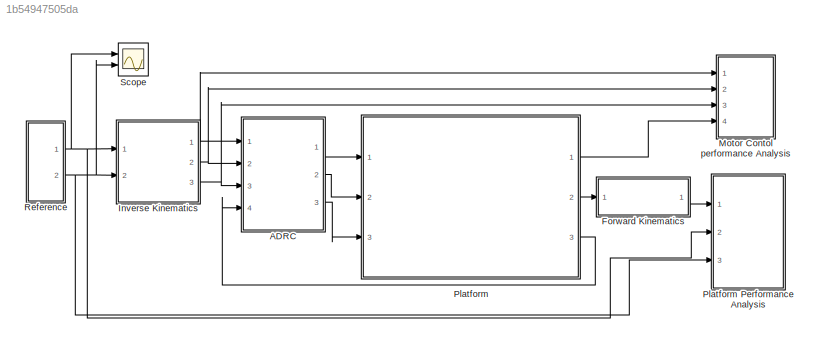
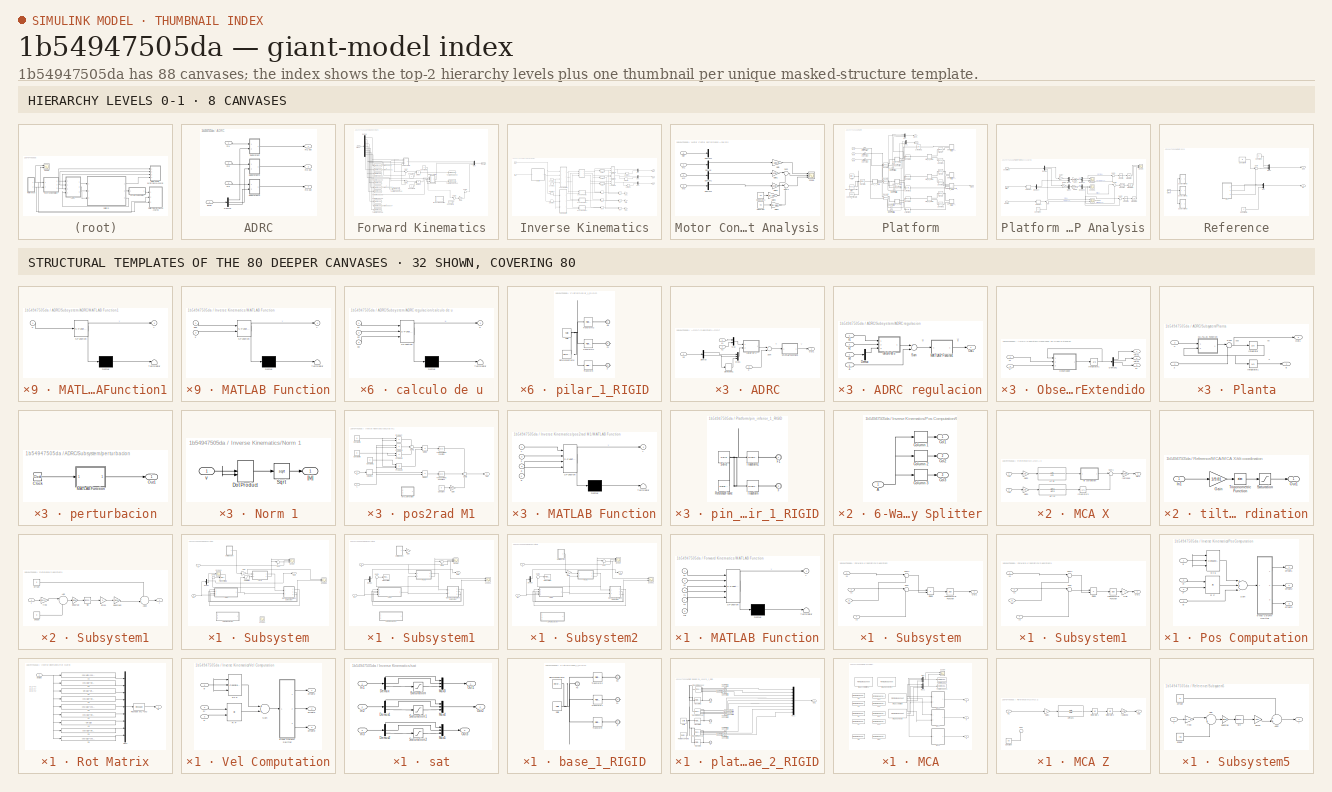
[diagram: thumbnail index - top-2 hierarchy levels (8 canvases) + 32 structural-template representatives of the remaining 80 canvases]
MODEL slx_1b54947505da
KIND model
CONFIG AbsTol = auto
CONFIG EnableMultiTasking = off
CONFIG FixedStep = 0.001
CONFIG MaxStep = auto
CONFIG MinStep = auto
CONFIG RelTol = 1e-4
CONFIG SampleTimeConstraint = Unconstrained
CONFIG Solver = FixedStepAuto
CONFIG SolverName = FixedStepAuto
CONFIG StartTime = 0.0
CONFIG StopTime = 30
WORKSPACE source: external: MATLAB File  (data not in archive)
BLOCK [SubSystem] ADRC
  Ports = [4, 3]
  RequestExecContextInheritance = off
BLOCK [Demux] ADRC/Demux
  DisplayOption = bar
  Outputs = 3
  Ports = [1, 3]
BLOCK [SubSystem] ADRC/Subsystem
  Ports = [2, 1]
  RequestExecContextInheritance = off
BLOCK [SubSystem] ADRC/Subsystem/ADRC
  Ports = [4, 1]
  RequestExecContextInheritance = off
BLOCK [SubSystem] ADRC/Subsystem/ADRC regulacion
  Commented = on
  Ports = [4, 1]
  RequestExecContextInheritance = off
BLOCK [Demux] ADRC/Subsystem/ADRC regulacion/Demux
  DisplayOption = bar
  Outputs = 2
  Ports = [1, 2]
BLOCK [SubSystem] ADRC/Subsystem/ADRC regulacion/MATLAB Function1
  ErrorFcn = Stateflow.Translate.translate
  PermitHierarchicalResolution = ExplicitOnly
  Ports = [1, 1]
  RequestExecContextInheritance = off
  SFBlockType = MATLAB Function
  TreatAsAtomicUnit = on
BLOCK [Demux] ADRC/Subsystem/ADRC regulacion/MATLAB Function1/ Demux 
  Outputs = 1
  Ports = [1, 1]
BLOCK [S-Function] ADRC/Subsystem/ADRC regulacion/MATLAB Function1/ SFunction 
  EnableBusSupport = on
  FunctionName = sf_sfun
  PortCounts = [1 2]
  Ports = [1, 2]
  SFcnIsStateOwnerBlock = off
  SFunctionDeploymentMode = off
  Tag = Stateflow S-Function platafomra_esfera 19
BLOCK [Terminator] ADRC/Subsystem/ADRC regulacion/MATLAB Function1/ Terminator 
BLOCK [Inport] ADRC/Subsystem/ADRC regulacion/MATLAB Function1/u
  IconDisplay = Port number
BLOCK [Outport] ADRC/Subsystem/ADRC regulacion/MATLAB Function1/y
  IconDisplay = Port number
BLOCK [Outport] ADRC/Subsystem/ADRC regulacion/Out1
  IconDisplay = Port number
BLOCK [Sum] ADRC/Subsystem/ADRC regulacion/Sum
  InputSameDT = off
  Inputs = +-
  OutDataTypeStr = Inherit: Inherit via internal rule
  Ports = [2, 1]
  SaturateOnIntegerOverflow = off
BLOCK [Inport] ADRC/Subsystem/ADRC regulacion/Z
  IconDisplay = Port number
  Port = 3
BLOCK [SubSystem] ADRC/Subsystem/ADRC regulacion/calculo de u
  ErrorFcn = Stateflow.Translate.translate
  PermitHierarchicalResolution = ExplicitOnly
  Ports = [3, 1]
  RequestExecContextInheritance = off
  SFBlockType = MATLAB Function
  TreatAsAtomicUnit = on
BLOCK [Demux] ADRC/Subsystem/ADRC regulacion/calculo de u/ Demux 
  Outputs = 1
  Ports = [1, 1]
BLOCK [S-Function] ADRC/Subsystem/ADRC regulacion/calculo de u/ SFunction 
  EnableBusSupport = on
  FunctionName = sf_sfun
  PortCounts = [3 2]
  Ports = [3, 2]
  SFcnIsStateOwnerBlock = off
  SFunctionDeploymentMode = off
  Tag = Stateflow S-Function platafomra_esfera 20
BLOCK [Terminator] ADRC/Subsystem/ADRC regulacion/calculo de u/ Terminator 
BLOCK [Outport] ADRC/Subsystem/ADRC regulacion/calculo de u/u
  IconDisplay = Port number
BLOCK [Inport] ADRC/Subsystem/ADRC regulacion/calculo de u/x1
  IconDisplay = Port number
BLOCK [Inport] ADRC/Subsystem/ADRC regulacion/calculo de u/x2
  IconDisplay = Port number
  Port = 2
BLOCK [Inport] ADRC/Subsystem/ADRC regulacion/calculo de u/xd
  IconDisplay = Port number
  Port = 3
BLOCK [Inport] ADRC/Subsystem/ADRC regulacion/x1
  IconDisplay = Port number
BLOCK [Inport] ADRC/Subsystem/ADRC regulacion/x2
  IconDisplay = Port number
  Port = 2
BLOCK [Inport] ADRC/Subsystem/ADRC regulacion/xd
  IconDisplay = Port number
  Port = 4
BLOCK [Demux] ADRC/Subsystem/ADRC/Demux
  DisplayOption = bar
  Outputs = 2
  Ports = [1, 2]
BLOCK [Derivative] ADRC/Subsystem/ADRC/Derivative1
BLOCK [SubSystem] ADRC/Subsystem/ADRC/MATLAB Function1
  ErrorFcn = Stateflow.Translate.translate
  PermitHierarchicalResolution = ExplicitOnly
  Ports = [1, 1]
  RequestExecContextInheritance = off
  SFBlockType = MATLAB Function
  TreatAsAtomicUnit = on
BLOCK [Demux] ADRC/Subsystem/ADRC/MATLAB Function1/ Demux 
  Outputs = 1
  Ports = [1, 1]
BLOCK [S-Function] ADRC/Subsystem/ADRC/MATLAB Function1/ SFunction 
  EnableBusSupport = on
  FunctionName = sf_sfun
  PortCounts = [1 2]
  Ports = [1, 2]
  SFcnIsStateOwnerBlock = off
  SFunctionDeploymentMode = off
  Tag = Stateflow S-Function platafomra_esfera 5
BLOCK [Terminator] ADRC/Subsystem/ADRC/MATLAB Function1/ Terminator 
BLOCK [Inport] ADRC/Subsystem/ADRC/MATLAB Function1/u
  IconDisplay = Port number
BLOCK [Outport] ADRC/Subsystem/ADRC/MATLAB Function1/y
  IconDisplay = Port number
BLOCK [Mux] ADRC/Subsystem/ADRC/Mux
  DisplayOption = bar
  Inputs = 2
  Ports = [2, 1]
BLOCK [Mux] ADRC/Subsystem/ADRC/Mux1
  DisplayOption = bar
  Inputs = 3
  Ports = [3, 1]
BLOCK [Outport] ADRC/Subsystem/ADRC/Out1
  IconDisplay = Port number
BLOCK [Sum] ADRC/Subsystem/ADRC/Sum
  InputSameDT = off
  Inputs = +-
  OutDataTypeStr = Inherit: Inherit via internal rule
  Ports = [2, 1]
  SaturateOnIntegerOverflow = off
BLOCK [Inport] ADRC/Subsystem/ADRC/Z
  IconDisplay = Port number
  Port = 3
BLOCK [SubSystem] ADRC/Subsystem/ADRC/calculo de u
  ErrorFcn = Stateflow.Translate.translate
  PermitHierarchicalResolution = ExplicitOnly
  Ports = [2, 1]
  RequestExecContextInheritance = off
  SFBlockType = MATLAB Function
  TreatAsAtomicUnit = on
BLOCK [Demux] ADRC/Subsystem/ADRC/calculo de u/ Demux 
  Outputs = 1
  Ports = [1, 1]
BLOCK [S-Function] ADRC/Subsystem/ADRC/calculo de u/ SFunction 
  EnableBusSupport = on
  FunctionName = sf_sfun
  PortCounts = [2 2]
  Ports = [2, 2]
  SFcnIsStateOwnerBlock = off
  SFunctionDeploymentMode = off
  Tag = Stateflow S-Function platafomra_esfera 4
BLOCK [Terminator] ADRC/Subsystem/ADRC/calculo de u/ Terminator 
BLOCK [Outport] ADRC/Subsystem/ADRC/calculo de u/u
  IconDisplay = Port number
BLOCK [Inport] ADRC/Subsystem/ADRC/calculo de u/x
  IconDisplay = Port number
BLOCK [Inport] ADRC/Subsystem/ADRC/calculo de u/xd
  IconDisplay = Port number
  Port = 2
BLOCK [Inport] ADRC/Subsystem/ADRC/x1
  IconDisplay = Port number
BLOCK [Inport] ADRC/Subsystem/ADRC/x2
  IconDisplay = Port number
  Port = 2
BLOCK [Inport] ADRC/Subsystem/ADRC/xd
  IconDisplay = Port number
  Port = 4
BLOCK [Demux] ADRC/Subsystem/Demux
  DisplayOption = bar
  Outputs = 2
  Ports = [1, 2]
BLOCK [Gain] ADRC/Subsystem/Gain
  Gain = 0
  OutDataTypeStr = Inherit: Inherit via internal rule
  ParamDataTypeStr = Inherit: Inherit via internal rule
  SaturateOnIntegerOverflow = off
BLOCK [Inport] ADRC/Subsystem/In1
  IconDisplay = Port number
BLOCK [SubSystem] ADRC/Subsystem/Observador de Orden Extendido
  Ports = [2, 3]
  RequestExecContextInheritance = off
BLOCK [Demux] ADRC/Subsystem/Observador de Orden Extendido/Demux1
  DisplayOption = bar
  Ports = [1, 4]
BLOCK [Integrator] ADRC/Subsystem/Observador de Orden Extendido/Integrator1
  InitialCondition = [1.661;0;0;0]
  Ports = [1, 1]
BLOCK [SubSystem] ADRC/Subsystem/Observador de Orden Extendido/Observador
  ErrorFcn = Stateflow.Translate.translate
  PermitHierarchicalResolution = ExplicitOnly
  Ports = [3, 1]
  RequestExecContextInheritance = off
  SFBlockType = MATLAB Function
  TreatAsAtomicUnit = on
BLOCK [Demux] ADRC/Subsystem/Observador de Orden Extendido/Observador/ Demux 
  Outputs = 1
  Ports = [1, 1]
BLOCK [S-Function] ADRC/Subsystem/Observador de Orden Extendido/Observador/ SFunction 
  EnableBusSupport = on
  FunctionName = sf_sfun
  PortCounts = [3 2]
  Ports = [3, 2]
  SFcnIsStateOwnerBlock = off
  SFunctionDeploymentMode = off
  Tag = Stateflow S-Function platafomra_esfera 6
BLOCK [Terminator] ADRC/Subsystem/Observador de Orden Extendido/Observador/ Terminator 
BLOCK [Outport] ADRC/Subsystem/Observador de Orden Extendido/Observador/dothatX
  IconDisplay = Port number
BLOCK [Inport] ADRC/Subsystem/Observador de Orden Extendido/Observador/hatX
  IconDisplay = Port number
BLOCK [Inport] ADRC/Subsystem/Observador de Orden Extendido/Observador/u
  IconDisplay = Port number
  Port = 3
BLOCK [Inport] ADRC/Subsystem/Observador de Orden Extendido/Observador/x
  IconDisplay = Port number
  Port = 2
BLOCK [Outport] ADRC/Subsystem/Observador de Orden Extendido/hatX1
  IconDisplay = Port number
BLOCK [Outport] ADRC/Subsystem/Observador de Orden Extendido/hatX2
  IconDisplay = Port number
  Port = 2
BLOCK [Inport] ADRC/Subsystem/Observador de Orden Extendido/v
  IconDisplay = Port number
  Port = 2
BLOCK [Inport] ADRC/Subsystem/Observador de Orden Extendido/x1
  IconDisplay = Port number
BLOCK [Outport] ADRC/Subsystem/Observador de Orden Extendido/z1
  IconDisplay = Port number
  Port = 3
BLOCK [Outport] ADRC/Subsystem/Out1
  IconDisplay = Port number
BLOCK [Reference] ADRC/Subsystem/PID Controller1  REF=simulink/Continuous/PID Controller
  Commented = on
  Ports = [1, 1]
  SourceBlock = simulink/Continuous/PID Controller
  SourceProductBaseCode = SL
  SourceProductName = Simulink
  SourceType = PID 1dof
BLOCK [SubSystem] ADRC/Subsystem/Planta
  Ports = [2, 2]
  RequestExecContextInheritance = off
BLOCK [Integrator] ADRC/Subsystem/Planta/Integrator
  Ports = [1, 1]
BLOCK [Integrator] ADRC/Subsystem/Planta/Integrator1
  InitialCondition = 1.661
  Ports = [1, 1]
BLOCK [SubSystem] ADRC/Subsystem/Planta/MATLAB Function
  ErrorFcn = Stateflow.Translate.translate
  PermitHierarchicalResolution = ExplicitOnly
  Ports = [2, 1]
  RequestExecContextInheritance = off
  SFBlockType = MATLAB Function
  TreatAsAtomicUnit = on
BLOCK [Demux] ADRC/Subsystem/Planta/MATLAB Function/ Demux 
  Outputs = 1
  Ports = [1, 1]
BLOCK [S-Function] ADRC/Subsystem/Planta/MATLAB Function/ SFunction 
  EnableBusSupport = on
  FunctionName = sf_sfun
  PortCounts = [2 2]
  Ports = [2, 2]
  SFcnIsStateOwnerBlock = off
  SFunctionDeploymentMode = off
  Tag = Stateflow S-Function platafomra_esfera 7
BLOCK [Terminator] ADRC/Subsystem/Planta/MATLAB Function/ Terminator 
BLOCK [Outport] ADRC/Subsystem/Planta/MATLAB Function/ddq
  IconDisplay = Port number
BLOCK [Inport] ADRC/Subsystem/Planta/MATLAB Function/dq
  IconDisplay = Port number
  Port = 2
BLOCK [Inport] ADRC/Subsystem/Planta/MATLAB Function/v
  IconDisplay = Port number
BLOCK [Outport] ADRC/Subsystem/Planta/Out1
  IconDisplay = Port number
  Port = 2
BLOCK [Sum] ADRC/Subsystem/Planta/Sum
  IconShape = round
  InputSameDT = off
  Inputs = |+-
  OutDataTypeStr = Inherit: Inherit via internal rule
  Ports = [2, 1]
  SaturateOnIntegerOverflow = off
BLOCK [Inport] ADRC/Subsystem/Planta/V
  IconDisplay = Port number
  Port = 2
BLOCK [Outport] ADRC/Subsystem/Planta/q
  IconDisplay = Port number
BLOCK [Inport] ADRC/Subsystem/Planta/z
  IconDisplay = Port number
BLOCK [Saturate] ADRC/Subsystem/Saturation
  Commented = through
  InputPortMap = u0
  LowerLimit = -24
  Ports = [1, 1]
  UpperLimit = 24
BLOCK [Scope] ADRC/Subsystem/Scope
  Floating = off
  NumInputPorts = 3
  Ports = [3]
  ScopeSpecificationString = Simulink.scopes.TimeScopeBlockCfg('CurrentConfiguration', extmgr.ConfigurationSet(extmgr.Configuration('Core','General UI',true),extmgr.Configuration('Core','Source UI',true),extmgr.Configuration('Sources','WiredSimulink',true,'DataLoggingVariableName','ScopeData5'),extmgr.Configuration('Visuals','Time Domain',true,'SerializedDisplays',{struct('MinYLimReal','-9988.55654','MaxYLimReal','10414.52475...<+2805ch>
BLOCK [Scope] ADRC/Subsystem/Scope1
  Floating = off
  NumInputPorts = 2
  Ports = [2]
  ScopeSpecificationString = Simulink.scopes.TimeScopeBlockCfg('CurrentConfiguration', extmgr.ConfigurationSet(extmgr.Configuration('Core','General UI',true),extmgr.Configuration('Core','Source UI',true),extmgr.Configuration('Sources','WiredSimulink',true,'DataLoggingVariableName','ScopeData1'),extmgr.Configuration('Visuals','Time Domain',true,'SerializedDisplays',{struct('MinYLimReal','-444.75651','MaxYLimReal','558.49938','...<+1483ch>
BLOCK [Scope] ADRC/Subsystem/Scope2
  Floating = off
  NumInputPorts = 1
  Ports = [1]
  ScopeSpecificationString = Simulink.scopes.TimeScopeBlockCfg('CurrentConfiguration', extmgr.ConfigurationSet(extmgr.Configuration('Core','General UI',true),extmgr.Configuration('Core','Source UI',true),extmgr.Configuration('Sources','WiredSimulink',true,'DataLoggingVariableName','ScopeData1'),extmgr.Configuration('Visuals','Time Domain',true,'SerializedDisplays',{struct('MinYLimReal','-1.00000','MaxYLimReal','1.00000','YLab...<+1398ch>
BLOCK [Scope] ADRC/Subsystem/Scope3
  Floating = off
  NumInputPorts = 1
  Ports = [1]
  ScopeSpecificationString = Simulink.scopes.TimeScopeBlockCfg('CurrentConfiguration', extmgr.ConfigurationSet(extmgr.Configuration('Core','General UI',true),extmgr.Configuration('Core','Source UI',true),extmgr.Configuration('Sources','WiredSimulink',true,'DataLoggingVariableName','ScopeData1'),extmgr.Configuration('Visuals','Time Domain',true,'SerializedDisplays',{struct('MinYLimReal','-0.36347','MaxYLimReal','0.28539','YLab...<+1366ch>
BLOCK [Sum] ADRC/Subsystem/Sum
  IconShape = round
  InputSameDT = off
  Inputs = |+-
  OutDataTypeStr = Inherit: Inherit via internal rule
  Ports = [2, 1]
  SaturateOnIntegerOverflow = off
BLOCK [Sum] ADRC/Subsystem/Sum1
  Commented = on
  IconShape = round
  InputSameDT = off
  Inputs = |+-
  OutDataTypeStr = Inherit: Inherit via internal rule
  Ports = [2, 1]
  SaturateOnIntegerOverflow = off
BLOCK [Inport] ADRC/Subsystem/Z
  IconDisplay = Port number
  Port = 2
BLOCK [SubSystem] ADRC/Subsystem/perturbacion
  Ports = [0, 1]
  RequestExecContextInheritance = off
BLOCK [Clock] ADRC/Subsystem/perturbacion/Clock
BLOCK [SubSystem] ADRC/Subsystem/perturbacion/MATLAB Function
  ErrorFcn = Stateflow.Translate.translate
  PermitHierarchicalResolution = ExplicitOnly
  Ports = [1, 1]
  RequestExecContextInheritance = off
  SFBlockType = MATLAB Function
  TreatAsAtomicUnit = on
BLOCK [Demux] ADRC/Subsystem/perturbacion/MATLAB Function/ Demux 
  Outputs = 1
  Ports = [1, 1]
BLOCK [S-Function] ADRC/Subsystem/perturbacion/MATLAB Function/ SFunction 
  EnableBusSupport = on
  FunctionName = sf_sfun
  PortCounts = [1 2]
  Ports = [1, 2]
  SFcnIsStateOwnerBlock = off
  SFunctionDeploymentMode = off
  Tag = Stateflow S-Function platafomra_esfera 23
BLOCK [Terminator] ADRC/Subsystem/perturbacion/MATLAB Function/ Terminator 
BLOCK [Inport] ADRC/Subsystem/perturbacion/MATLAB Function/t
  IconDisplay = Port number
BLOCK [Outport] ADRC/Subsystem/perturbacion/MATLAB Function/y
  IconDisplay = Port number
BLOCK [Outport] ADRC/Subsystem/perturbacion/Out1
  IconDisplay = Port number
BLOCK [SubSystem] ADRC/Subsystem1
  Ports = [2, 1]
  RequestExecContextInheritance = off
BLOCK [SubSystem] ADRC/Subsystem1/ADRC
  Ports = [4, 1]
  RequestExecContextInheritance = off
BLOCK [SubSystem] ADRC/Subsystem1/ADRC regulacion
  Commented = on
  Ports = [4, 1]
  RequestExecContextInheritance = off
BLOCK [Demux] ADRC/Subsystem1/ADRC regulacion/Demux
  DisplayOption = bar
  Outputs = 2
  Ports = [1, 2]
BLOCK [SubSystem] ADRC/Subsystem1/ADRC regulacion/MATLAB Function1
  ErrorFcn = Stateflow.Translate.translate
  PermitHierarchicalResolution = ExplicitOnly
  Ports = [1, 1]
  RequestExecContextInheritance = off
  SFBlockType = MATLAB Function
  TreatAsAtomicUnit = on
BLOCK [Demux] ADRC/Subsystem1/ADRC regulacion/MATLAB Function1/ Demux 
  Outputs = 1
  Ports = [1, 1]
BLOCK [S-Function] ADRC/Subsystem1/ADRC regulacion/MATLAB Function1/ SFunction 
  EnableBusSupport = on
  FunctionName = sf_sfun
  PortCounts = [1 2]
  Ports = [1, 2]
  SFcnIsStateOwnerBlock = off
  SFunctionDeploymentMode = off
  Tag = Stateflow S-Function platafomra_esfera 10
BLOCK [Terminator] ADRC/Subsystem1/ADRC regulacion/MATLAB Function1/ Terminator 
BLOCK [Inport] ADRC/Subsystem1/ADRC regulacion/MATLAB Function1/u
  IconDisplay = Port number
BLOCK [Outport] ADRC/Subsystem1/ADRC regulacion/MATLAB Function1/y
  IconDisplay = Port number
BLOCK [Outport] ADRC/Subsystem1/ADRC regulacion/Out1
  IconDisplay = Port number
BLOCK [Sum] ADRC/Subsystem1/ADRC regulacion/Sum
  InputSameDT = off
  Inputs = +-
  OutDataTypeStr = Inherit: Inherit via internal rule
  Ports = [2, 1]
  SaturateOnIntegerOverflow = off
BLOCK [Inport] ADRC/Subsystem1/ADRC regulacion/Z
  IconDisplay = Port number
  Port = 3
BLOCK [SubSystem] ADRC/Subsystem1/ADRC regulacion/calculo de u
  ErrorFcn = Stateflow.Translate.translate
  PermitHierarchicalResolution = ExplicitOnly
  Ports = [3, 1]
  RequestExecContextInheritance = off
  SFBlockType = MATLAB Function
  TreatAsAtomicUnit = on
BLOCK [Demux] ADRC/Subsystem1/ADRC regulacion/calculo de u/ Demux 
  Outputs = 1
  Ports = [1, 1]
BLOCK [S-Function] ADRC/Subsystem1/ADRC regulacion/calculo de u/ SFunction 
  EnableBusSupport = on
  FunctionName = sf_sfun
  PortCounts = [3 2]
  Ports = [3, 2]
  SFcnIsStateOwnerBlock = off
  SFunctionDeploymentMode = off
  Tag = Stateflow S-Function platafomra_esfera 11
BLOCK [Terminator] ADRC/Subsystem1/ADRC regulacion/calculo de u/ Terminator 
BLOCK [Outport] ADRC/Subsystem1/ADRC regulacion/calculo de u/u
  IconDisplay = Port number
BLOCK [Inport] ADRC/Subsystem1/ADRC regulacion/calculo de u/x1
  IconDisplay = Port number
BLOCK [Inport] ADRC/Subsystem1/ADRC regulacion/calculo de u/x2
  IconDisplay = Port number
  Port = 2
BLOCK [Inport] ADRC/Subsystem1/ADRC regulacion/calculo de u/xd
  IconDisplay = Port number
  Port = 3
BLOCK [Inport] ADRC/Subsystem1/ADRC regulacion/x1
  IconDisplay = Port number
BLOCK [Inport] ADRC/Subsystem1/ADRC regulacion/x2
  IconDisplay = Port number
  Port = 2
BLOCK [Inport] ADRC/Subsystem1/ADRC regulacion/xd
  IconDisplay = Port number
  Port = 4
BLOCK [Demux] ADRC/Subsystem1/ADRC/Demux
  DisplayOption = bar
  Outputs = 2
  Ports = [1, 2]
BLOCK [Derivative] ADRC/Subsystem1/ADRC/Derivative1
BLOCK [SubSystem] ADRC/Subsystem1/ADRC/MATLAB Function1
  ErrorFcn = Stateflow.Translate.translate
  PermitHierarchicalResolution = ExplicitOnly
  Ports = [1, 1]
  RequestExecContextInheritance = off
  SFBlockType = MATLAB Function
  TreatAsAtomicUnit = on
BLOCK [Demux] ADRC/Subsystem1/ADRC/MATLAB Function1/ Demux 
  Outputs = 1
  Ports = [1, 1]
BLOCK [S-Function] ADRC/Subsystem1/ADRC/MATLAB Function1/ SFunction 
  EnableBusSupport = on
  FunctionName = sf_sfun
  PortCounts = [1 2]
  Ports = [1, 2]
  SFcnIsStateOwnerBlock = off
  SFunctionDeploymentMode = off
  Tag = Stateflow S-Function platafomra_esfera 8
BLOCK [Terminator] ADRC/Subsystem1/ADRC/MATLAB Function1/ Terminator 
BLOCK [Inport] ADRC/Subsystem1/ADRC/MATLAB Function1/u
  IconDisplay = Port number
BLOCK [Outport] ADRC/Subsystem1/ADRC/MATLAB Function1/y
  IconDisplay = Port number
BLOCK [Mux] ADRC/Subsystem1/ADRC/Mux
  DisplayOption = bar
  Inputs = 2
  Ports = [2, 1]
BLOCK [Mux] ADRC/Subsystem1/ADRC/Mux1
  DisplayOption = bar
  Inputs = 3
  Ports = [3, 1]
BLOCK [Outport] ADRC/Subsystem1/ADRC/Out1
  IconDisplay = Port number
BLOCK [Sum] ADRC/Subsystem1/ADRC/Sum
  InputSameDT = off
  Inputs = +-
  OutDataTypeStr = Inherit: Inherit via internal rule
  Ports = [2, 1]
  SaturateOnIntegerOverflow = off
BLOCK [Inport] ADRC/Subsystem1/ADRC/Z
  IconDisplay = Port number
  Port = 3
BLOCK [SubSystem] ADRC/Subsystem1/ADRC/calculo de u
  ErrorFcn = Stateflow.Translate.translate
  PermitHierarchicalResolution = ExplicitOnly
  Ports = [2, 1]
  RequestExecContextInheritance = off
  SFBlockType = MATLAB Function
  TreatAsAtomicUnit = on
BLOCK [Demux] ADRC/Subsystem1/ADRC/calculo de u/ Demux 
  Outputs = 1
  Ports = [1, 1]
BLOCK [S-Function] ADRC/Subsystem1/ADRC/calculo de u/ SFunction 
  EnableBusSupport = on
  FunctionName = sf_sfun
  PortCounts = [2 2]
  Ports = [2, 2]
  SFcnIsStateOwnerBlock = off
  SFunctionDeploymentMode = off
  Tag = Stateflow S-Function platafomra_esfera 9
BLOCK [Terminator] ADRC/Subsystem1/ADRC/calculo de u/ Terminator 
BLOCK [Outport] ADRC/Subsystem1/ADRC/calculo de u/u
  IconDisplay = Port number
BLOCK [Inport] ADRC/Subsystem1/ADRC/calculo de u/x
  IconDisplay = Port number
BLOCK [Inport] ADRC/Subsystem1/ADRC/calculo de u/xd
  IconDisplay = Port number
  Port = 2
BLOCK [Inport] ADRC/Subsystem1/ADRC/x1
  IconDisplay = Port number
BLOCK [Inport] ADRC/Subsystem1/ADRC/x2
  IconDisplay = Port number
  Port = 2
BLOCK [Inport] ADRC/Subsystem1/ADRC/xd
  IconDisplay = Port number
  Port = 4
BLOCK [Demux] ADRC/Subsystem1/Demux
  DisplayOption = bar
  Outputs = 2
  Ports = [1, 2]
BLOCK [Gain] ADRC/Subsystem1/Gain
  Gain = 0
  OutDataTypeStr = Inherit: Inherit via internal rule
  ParamDataTypeStr = Inherit: Inherit via internal rule
  SaturateOnIntegerOverflow = off
BLOCK [Inport] ADRC/Subsystem1/In1
  IconDisplay = Port number
BLOCK [SubSystem] ADRC/Subsystem1/Observador de Orden Extendido
  Ports = [2, 3]
  RequestExecContextInheritance = off
BLOCK [Demux] ADRC/Subsystem1/Observador de Orden Extendido/Demux1
  DisplayOption = bar
  Ports = [1, 4]
BLOCK [Integrator] ADRC/Subsystem1/Observador de Orden Extendido/Integrator1
  InitialCondition = [-3.22;0;0;0]
  Ports = [1, 1]
BLOCK [SubSystem] ADRC/Subsystem1/Observador de Orden Extendido/Observador
  ErrorFcn = Stateflow.Translate.translate
  PermitHierarchicalResolution = ExplicitOnly
  Ports = [3, 1]
  RequestExecContextInheritance = off
  SFBlockType = MATLAB Function
  TreatAsAtomicUnit = on
BLOCK [Demux] ADRC/Subsystem1/Observador de Orden Extendido/Observador/ Demux 
  Outputs = 1
  Ports = [1, 1]
BLOCK [S-Function] ADRC/Subsystem1/Observador de Orden Extendido/Observador/ SFunction 
  EnableBusSupport = on
  FunctionName = sf_sfun
  PortCounts = [3 2]
  Ports = [3, 2]
  SFcnIsStateOwnerBlock = off
  SFunctionDeploymentMode = off
  Tag = Stateflow S-Function platafomra_esfera 12
BLOCK [Terminator] ADRC/Subsystem1/Observador de Orden Extendido/Observador/ Terminator 
BLOCK [Outport] ADRC/Subsystem1/Observador de Orden Extendido/Observador/dothatX
  IconDisplay = Port number
BLOCK [Inport] ADRC/Subsystem1/Observador de Orden Extendido/Observador/hatX
  IconDisplay = Port number
BLOCK [Inport] ADRC/Subsystem1/Observador de Orden Extendido/Observador/u
  IconDisplay = Port number
  Port = 3
BLOCK [Inport] ADRC/Subsystem1/Observador de Orden Extendido/Observador/x
  IconDisplay = Port number
  Port = 2
BLOCK [Outport] ADRC/Subsystem1/Observador de Orden Extendido/hatX1
  IconDisplay = Port number
BLOCK [Outport] ADRC/Subsystem1/Observador de Orden Extendido/hatX2
  IconDisplay = Port number
  Port = 2
BLOCK [Inport] ADRC/Subsystem1/Observador de Orden Extendido/v
  IconDisplay = Port number
  Port = 2
BLOCK [Inport] ADRC/Subsystem1/Observador de Orden Extendido/x1
  IconDisplay = Port number
BLOCK [Outport] ADRC/Subsystem1/Observador de Orden Extendido/z1
  IconDisplay = Port number
  Port = 3
BLOCK [Outport] ADRC/Subsystem1/Out1
  IconDisplay = Port number
BLOCK [Reference] ADRC/Subsystem1/PID Controller  REF=simulink/Continuous/PID Controller
  Commented = on
  Ports = [1, 1]
  SourceBlock = simulink/Continuous/PID Controller
  SourceProductBaseCode = SL
  SourceProductName = Simulink
  SourceType = PID 1dof
BLOCK [SubSystem] ADRC/Subsystem1/Planta
  Ports = [2, 2]
  RequestExecContextInheritance = off
BLOCK [Integrator] ADRC/Subsystem1/Planta/Integrator
  Ports = [1, 1]
BLOCK [Integrator] ADRC/Subsystem1/Planta/Integrator1
  InitialCondition = -3.22
  Ports = [1, 1]
BLOCK [SubSystem] ADRC/Subsystem1/Planta/MATLAB Function
  ErrorFcn = Stateflow.Translate.translate
  PermitHierarchicalResolution = ExplicitOnly
  Ports = [2, 1]
  RequestExecContextInheritance = off
  SFBlockType = MATLAB Function
  TreatAsAtomicUnit = on
BLOCK [Demux] ADRC/Subsystem1/Planta/MATLAB Function/ Demux 
  Outputs = 1
  Ports = [1, 1]
BLOCK [S-Function] ADRC/Subsystem1/Planta/MATLAB Function/ SFunction 
  EnableBusSupport = on
  FunctionName = sf_sfun
  PortCounts = [2 2]
  Ports = [2, 2]
  SFcnIsStateOwnerBlock = off
  SFunctionDeploymentMode = off
  Tag = Stateflow S-Function platafomra_esfera 13
BLOCK [Terminator] ADRC/Subsystem1/Planta/MATLAB Function/ Terminator 
BLOCK [Outport] ADRC/Subsystem1/Planta/MATLAB Function/ddq
  IconDisplay = Port number
BLOCK [Inport] ADRC/Subsystem1/Planta/MATLAB Function/dq
  IconDisplay = Port number
  Port = 2
BLOCK [Inport] ADRC/Subsystem1/Planta/MATLAB Function/v
  IconDisplay = Port number
BLOCK [Outport] ADRC/Subsystem1/Planta/Out1
  IconDisplay = Port number
  Port = 2
BLOCK [Sum] ADRC/Subsystem1/Planta/Sum
  IconShape = round
  InputSameDT = off
  Inputs = |+-
  OutDataTypeStr = Inherit: Inherit via internal rule
  Ports = [2, 1]
  SaturateOnIntegerOverflow = off
BLOCK [Inport] ADRC/Subsystem1/Planta/V
  IconDisplay = Port number
  Port = 2
BLOCK [Outport] ADRC/Subsystem1/Planta/q
  IconDisplay = Port number
BLOCK [Inport] ADRC/Subsystem1/Planta/z
  IconDisplay = Port number
BLOCK [Scope] ADRC/Subsystem1/Scope
  Floating = off
  NumInputPorts = 3
  Ports = [3]
  ScopeSpecificationString = Simulink.scopes.TimeScopeBlockCfg('CurrentConfiguration', extmgr.ConfigurationSet(extmgr.Configuration('Core','General UI',true),extmgr.Configuration('Core','Source UI',true),extmgr.Configuration('Sources','WiredSimulink',true,'DataLoggingVariableName','ScopeData5'),extmgr.Configuration('Visuals','Time Domain',true,'SerializedDisplays',{struct('MinYLimReal','-27.0751','MaxYLimReal','35.54397','YLa...<+2787ch>
BLOCK [Scope] ADRC/Subsystem1/Scope1
  Commented = on
  Floating = off
  NumInputPorts = 2
  Ports = [2]
  ScopeSpecificationString = Simulink.scopes.TimeScopeBlockCfg('CurrentConfiguration', extmgr.ConfigurationSet(extmgr.Configuration('Core','General UI',true),extmgr.Configuration('Core','Source UI',true),extmgr.Configuration('Sources','WiredSimulink',true,'DataLoggingVariableName','ScopeData1'),extmgr.Configuration('Visuals','Time Domain',true,'SerializedDisplays',{struct('MinYLimReal','-225.83875','MaxYLimReal','178.90199','...<+1482ch>
BLOCK [Sum] ADRC/Subsystem1/Sum
  IconShape = round
  InputSameDT = off
  Inputs = |+-
  OutDataTypeStr = Inherit: Inherit via internal rule
  Ports = [2, 1]
  SaturateOnIntegerOverflow = off
BLOCK [Sum] ADRC/Subsystem1/Sum1
  Commented = on
  IconShape = round
  InputSameDT = off
  Inputs = |+-
  OutDataTypeStr = Inherit: Inherit via internal rule
  Ports = [2, 1]
  SaturateOnIntegerOverflow = off
BLOCK [Inport] ADRC/Subsystem1/Z
  IconDisplay = Port number
  Port = 2
BLOCK [SubSystem] ADRC/Subsystem1/perturbacion
  Ports = [0, 1]
  RequestExecContextInheritance = off
BLOCK [Clock] ADRC/Subsystem1/perturbacion/Clock
BLOCK [SubSystem] ADRC/Subsystem1/perturbacion/MATLAB Function
  ErrorFcn = Stateflow.Translate.translate
  PermitHierarchicalResolution = ExplicitOnly
  Ports = [1, 1]
  RequestExecContextInheritance = off
  SFBlockType = MATLAB Function
  TreatAsAtomicUnit = on
BLOCK [Demux] ADRC/Subsystem1/perturbacion/MATLAB Function/ Demux 
  Outputs = 1
  Ports = [1, 1]
BLOCK [S-Function] ADRC/Subsystem1/perturbacion/MATLAB Function/ SFunction 
  EnableBusSupport = on
  FunctionName = sf_sfun
  PortCounts = [1 2]
  Ports = [1, 2]
  SFcnIsStateOwnerBlock = off
  SFunctionDeploymentMode = off
  Tag = Stateflow S-Function platafomra_esfera 22
BLOCK [Terminator] ADRC/Subsystem1/perturbacion/MATLAB Function/ Terminator 
BLOCK [Inport] ADRC/Subsystem1/perturbacion/MATLAB Function/t
  IconDisplay = Port number
BLOCK [Outport] ADRC/Subsystem1/perturbacion/MATLAB Function/y
  IconDisplay = Port number
BLOCK [Outport] ADRC/Subsystem1/perturbacion/Out1
  IconDisplay = Port number
BLOCK [SubSystem] ADRC/Subsystem2
  Ports = [2, 1]
  RequestExecContextInheritance = off
BLOCK [SubSystem] ADRC/Subsystem2/ADRC
  Ports = [4, 1]
  RequestExecContextInheritance = off
BLOCK [SubSystem] ADRC/Subsystem2/ADRC regulacion
  Commented = on
  Ports = [4, 1]
  RequestExecContextInheritance = off
BLOCK [Demux] ADRC/Subsystem2/ADRC regulacion/Demux
  DisplayOption = bar
  Outputs = 2
  Ports = [1, 2]
BLOCK [SubSystem] ADRC/Subsystem2/ADRC regulacion/MATLAB Function1
  ErrorFcn = Stateflow.Translate.translate
  PermitHierarchicalResolution = ExplicitOnly
  Ports = [1, 1]
  RequestExecContextInheritance = off
  SFBlockType = MATLAB Function
  TreatAsAtomicUnit = on
BLOCK [Demux] ADRC/Subsystem2/ADRC regulacion/MATLAB Function1/ Demux 
  Outputs = 1
  Ports = [1, 1]
BLOCK [S-Function] ADRC/Subsystem2/ADRC regulacion/MATLAB Function1/ SFunction 
  EnableBusSupport = on
  FunctionName = sf_sfun
  PortCounts = [1 2]
  Ports = [1, 2]
  SFcnIsStateOwnerBlock = off
  SFunctionDeploymentMode = off
  Tag = Stateflow S-Function platafomra_esfera 16
BLOCK [Terminator] ADRC/Subsystem2/ADRC regulacion/MATLAB Function1/ Terminator 
BLOCK [Inport] ADRC/Subsystem2/ADRC regulacion/MATLAB Function1/u
  IconDisplay = Port number
BLOCK [Outport] ADRC/Subsystem2/ADRC regulacion/MATLAB Function1/y
  IconDisplay = Port number
BLOCK [Outport] ADRC/Subsystem2/ADRC regulacion/Out1
  IconDisplay = Port number
BLOCK [Sum] ADRC/Subsystem2/ADRC regulacion/Sum
  InputSameDT = off
  Inputs = +-
  OutDataTypeStr = Inherit: Inherit via internal rule
  Ports = [2, 1]
  SaturateOnIntegerOverflow = off
BLOCK [Inport] ADRC/Subsystem2/ADRC regulacion/Z
  IconDisplay = Port number
  Port = 3
BLOCK [SubSystem] ADRC/Subsystem2/ADRC regulacion/calculo de u
  ErrorFcn = Stateflow.Translate.translate
  PermitHierarchicalResolution = ExplicitOnly
  Ports = [3, 1]
  RequestExecContextInheritance = off
  SFBlockType = MATLAB Function
  TreatAsAtomicUnit = on
BLOCK [Demux] ADRC/Subsystem2/ADRC regulacion/calculo de u/ Demux 
  Outputs = 1
  Ports = [1, 1]
BLOCK [S-Function] ADRC/Subsystem2/ADRC regulacion/calculo de u/ SFunction 
  EnableBusSupport = on
  FunctionName = sf_sfun
  PortCounts = [3 2]
  Ports = [3, 2]
  SFcnIsStateOwnerBlock = off
  SFunctionDeploymentMode = off
  Tag = Stateflow S-Function platafomra_esfera 17
BLOCK [Terminator] ADRC/Subsystem2/ADRC regulacion/calculo de u/ Terminator 
BLOCK [Outport] ADRC/Subsystem2/ADRC regulacion/calculo de u/u
  IconDisplay = Port number
BLOCK [Inport] ADRC/Subsystem2/ADRC regulacion/calculo de u/x1
  IconDisplay = Port number
BLOCK [Inport] ADRC/Subsystem2/ADRC regulacion/calculo de u/x2
  IconDisplay = Port number
  Port = 2
BLOCK [Inport] ADRC/Subsystem2/ADRC regulacion/calculo de u/xd
  IconDisplay = Port number
  Port = 3
BLOCK [Inport] ADRC/Subsystem2/ADRC regulacion/x1
  IconDisplay = Port number
BLOCK [Inport] ADRC/Subsystem2/ADRC regulacion/x2
  IconDisplay = Port number
  Port = 2
BLOCK [Inport] ADRC/Subsystem2/ADRC regulacion/xd
  IconDisplay = Port number
  Port = 4
BLOCK [Demux] ADRC/Subsystem2/ADRC/Demux
  DisplayOption = bar
  Outputs = 2
  Ports = [1, 2]
BLOCK [Derivative] ADRC/Subsystem2/ADRC/Derivative1
BLOCK [SubSystem] ADRC/Subsystem2/ADRC/MATLAB Function1
  ErrorFcn = Stateflow.Translate.translate
  PermitHierarchicalResolution = ExplicitOnly
  Ports = [1, 1]
  RequestExecContextInheritance = off
  SFBlockType = MATLAB Function
  TreatAsAtomicUnit = on
BLOCK [Demux] ADRC/Subsystem2/ADRC/MATLAB Function1/ Demux 
  Outputs = 1
  Ports = [1, 1]
BLOCK [S-Function] ADRC/Subsystem2/ADRC/MATLAB Function1/ SFunction 
  EnableBusSupport = on
  FunctionName = sf_sfun
  PortCounts = [1 2]
  Ports = [1, 2]
  SFcnIsStateOwnerBlock = off
  SFunctionDeploymentMode = off
  Tag = Stateflow S-Function platafomra_esfera 14
BLOCK [Terminator] ADRC/Subsystem2/ADRC/MATLAB Function1/ Terminator 
BLOCK [Inport] ADRC/Subsystem2/ADRC/MATLAB Function1/u
  IconDisplay = Port number
BLOCK [Outport] ADRC/Subsystem2/ADRC/MATLAB Function1/y
  IconDisplay = Port number
BLOCK [Mux] ADRC/Subsystem2/ADRC/Mux
  DisplayOption = bar
  Inputs = 2
  Ports = [2, 1]
BLOCK [Mux] ADRC/Subsystem2/ADRC/Mux1
  DisplayOption = bar
  Inputs = 3
  Ports = [3, 1]
BLOCK [Outport] ADRC/Subsystem2/ADRC/Out1
  IconDisplay = Port number
BLOCK [Sum] ADRC/Subsystem2/ADRC/Sum
  InputSameDT = off
  Inputs = +-
  OutDataTypeStr = Inherit: Inherit via internal rule
  Ports = [2, 1]
  SaturateOnIntegerOverflow = off
BLOCK [Inport] ADRC/Subsystem2/ADRC/Z
  IconDisplay = Port number
  Port = 3
BLOCK [SubSystem] ADRC/Subsystem2/ADRC/calculo de u
  ErrorFcn = Stateflow.Translate.translate
  PermitHierarchicalResolution = ExplicitOnly
  Ports = [2, 1]
  RequestExecContextInheritance = off
  SFBlockType = MATLAB Function
  TreatAsAtomicUnit = on
BLOCK [Demux] ADRC/Subsystem2/ADRC/calculo de u/ Demux 
  Outputs = 1
  Ports = [1, 1]
BLOCK [S-Function] ADRC/Subsystem2/ADRC/calculo de u/ SFunction 
  EnableBusSupport = on
  FunctionName = sf_sfun
  PortCounts = [2 2]
  Ports = [2, 2]
  SFcnIsStateOwnerBlock = off
  SFunctionDeploymentMode = off
  Tag = Stateflow S-Function platafomra_esfera 15
BLOCK [Terminator] ADRC/Subsystem2/ADRC/calculo de u/ Terminator 
BLOCK [Outport] ADRC/Subsystem2/ADRC/calculo de u/u
  IconDisplay = Port number
BLOCK [Inport] ADRC/Subsystem2/ADRC/calculo de u/x
  IconDisplay = Port number
BLOCK [Inport] ADRC/Subsystem2/ADRC/calculo de u/xd
  IconDisplay = Port number
  Port = 2
BLOCK [Inport] ADRC/Subsystem2/ADRC/x1
  IconDisplay = Port number
BLOCK [Inport] ADRC/Subsystem2/ADRC/x2
  IconDisplay = Port number
  Port = 2
BLOCK [Inport] ADRC/Subsystem2/ADRC/xd
  IconDisplay = Port number
  Port = 4
BLOCK [Demux] ADRC/Subsystem2/Demux
  DisplayOption = bar
  Outputs = 2
  Ports = [1, 2]
BLOCK [Gain] ADRC/Subsystem2/Gain
  Gain = 0
  OutDataTypeStr = Inherit: Inherit via internal rule
  ParamDataTypeStr = Inherit: Inherit via internal rule
  SaturateOnIntegerOverflow = off
BLOCK [Inport] ADRC/Subsystem2/In1
  IconDisplay = Port number
BLOCK [SubSystem] ADRC/Subsystem2/Observador de Orden Extendido
  Ports = [2, 3]
  RequestExecContextInheritance = off
BLOCK [Demux] ADRC/Subsystem2/Observador de Orden Extendido/Demux1
  DisplayOption = bar
  Ports = [1, 4]
BLOCK [Integrator] ADRC/Subsystem2/Observador de Orden Extendido/Integrator1
  InitialCondition = [0.05;0;0;0]
  Ports = [1, 1]
BLOCK [SubSystem] ADRC/Subsystem2/Observador de Orden Extendido/Observador
  ErrorFcn = Stateflow.Translate.translate
  PermitHierarchicalResolution = ExplicitOnly
  Ports = [3, 1]
  RequestExecContextInheritance = off
  SFBlockType = MATLAB Function
  TreatAsAtomicUnit = on
BLOCK [Demux] ADRC/Subsystem2/Observador de Orden Extendido/Observador/ Demux 
  Outputs = 1
  Ports = [1, 1]
BLOCK [S-Function] ADRC/Subsystem2/Observador de Orden Extendido/Observador/ SFunction 
  EnableBusSupport = on
  FunctionName = sf_sfun
  PortCounts = [3 2]
  Ports = [3, 2]
  SFcnIsStateOwnerBlock = off
  SFunctionDeploymentMode = off
  Tag = Stateflow S-Function platafomra_esfera 18
BLOCK [Terminator] ADRC/Subsystem2/Observador de Orden Extendido/Observador/ Terminator 
BLOCK [Outport] ADRC/Subsystem2/Observador de Orden Extendido/Observador/dothatX
  IconDisplay = Port number
BLOCK [Inport] ADRC/Subsystem2/Observador de Orden Extendido/Observador/hatX
  IconDisplay = Port number
BLOCK [Inport] ADRC/Subsystem2/Observador de Orden Extendido/Observador/u
  IconDisplay = Port number
  Port = 3
BLOCK [Inport] ADRC/Subsystem2/Observador de Orden Extendido/Observador/x
  IconDisplay = Port number
  Port = 2
BLOCK [Outport] ADRC/Subsystem2/Observador de Orden Extendido/hatX1
  IconDisplay = Port number
BLOCK [Outport] ADRC/Subsystem2/Observador de Orden Extendido/hatX2
  IconDisplay = Port number
  Port = 2
BLOCK [Inport] ADRC/Subsystem2/Observador de Orden Extendido/v
  IconDisplay = Port number
  Port = 2
BLOCK [Inport] ADRC/Subsystem2/Observador de Orden Extendido/x1
  IconDisplay = Port number
BLOCK [Outport] ADRC/Subsystem2/Observador de Orden Extendido/z1
  IconDisplay = Port number
  Port = 3
BLOCK [Outport] ADRC/Subsystem2/Out1
  IconDisplay = Port number
BLOCK [Reference] ADRC/Subsystem2/PID Controller  REF=simulink/Continuous/PID Controller
  Commented = on
  Ports = [1, 1]
  SourceBlock = simulink/Continuous/PID Controller
  SourceProductBaseCode = SL
  SourceProductName = Simulink
  SourceType = PID 1dof
BLOCK [SubSystem] ADRC/Subsystem2/Planta
  Ports = [2, 2]
  RequestExecContextInheritance = off
BLOCK [Integrator] ADRC/Subsystem2/Planta/Integrator
  Ports = [1, 1]
BLOCK [Integrator] ADRC/Subsystem2/Planta/Integrator1
  InitialCondition = 0.05
  Ports = [1, 1]
BLOCK [SubSystem] ADRC/Subsystem2/Planta/MATLAB Function
  ErrorFcn = Stateflow.Translate.translate
  PermitHierarchicalResolution = ExplicitOnly
  Ports = [2, 1]
  RequestExecContextInheritance = off
  SFBlockType = MATLAB Function
  TreatAsAtomicUnit = on
BLOCK [Demux] ADRC/Subsystem2/Planta/MATLAB Function/ Demux 
  Outputs = 1
  Ports = [1, 1]
BLOCK [S-Function] ADRC/Subsystem2/Planta/MATLAB Function/ SFunction 
  EnableBusSupport = on
  FunctionName = sf_sfun
  PortCounts = [2 2]
  Ports = [2, 2]
  SFcnIsStateOwnerBlock = off
  SFunctionDeploymentMode = off
  Tag = Stateflow S-Function platafomra_esfera 21
BLOCK [Terminator] ADRC/Subsystem2/Planta/MATLAB Function/ Terminator 
BLOCK [Outport] ADRC/Subsystem2/Planta/MATLAB Function/ddq
  IconDisplay = Port number
BLOCK [Inport] ADRC/Subsystem2/Planta/MATLAB Function/dq
  IconDisplay = Port number
  Port = 2
BLOCK [Inport] ADRC/Subsystem2/Planta/MATLAB Function/v
  IconDisplay = Port number
BLOCK [Outport] ADRC/Subsystem2/Planta/Out1
  IconDisplay = Port number
  Port = 2
BLOCK [Sum] ADRC/Subsystem2/Planta/Sum
  IconShape = round
  InputSameDT = off
  Inputs = |+-
  OutDataTypeStr = Inherit: Inherit via internal rule
  Ports = [2, 1]
  SaturateOnIntegerOverflow = off
BLOCK [Inport] ADRC/Subsystem2/Planta/V
  IconDisplay = Port number
  Port = 2
BLOCK [Outport] ADRC/Subsystem2/Planta/q
  IconDisplay = Port number
BLOCK [Inport] ADRC/Subsystem2/Planta/z
  IconDisplay = Port number
BLOCK [Scope] ADRC/Subsystem2/Scope
  Floating = off
  NumInputPorts = 3
  Ports = [3]
  ScopeSpecificationString = Simulink.scopes.TimeScopeBlockCfg('CurrentConfiguration', extmgr.ConfigurationSet(extmgr.Configuration('Core','General UI',true),extmgr.Configuration('Core','Source UI',true),extmgr.Configuration('Sources','WiredSimulink',true,'DataLoggingVariableName','ScopeData5'),extmgr.Configuration('Visuals','Time Domain',true,'SerializedDisplays',{struct('MinYLimReal','-9988.55654','MaxYLimReal','10414.52475...<+2809ch>
BLOCK [Scope] ADRC/Subsystem2/Scope1
  Commented = on
  Floating = off
  NumInputPorts = 2
  Ports = [2]
  ScopeSpecificationString = Simulink.scopes.TimeScopeBlockCfg('CurrentConfiguration', extmgr.ConfigurationSet(extmgr.Configuration('Core','General UI',true),extmgr.Configuration('Core','Source UI',true),extmgr.Configuration('Sources','WiredSimulink',true,'DataLoggingVariableName','ScopeData1'),extmgr.Configuration('Visuals','Time Domain',true,'SerializedDisplays',{struct('MinYLimReal','-225.83875','MaxYLimReal','178.90199','...<+1482ch>
BLOCK [Sum] ADRC/Subsystem2/Sum
  IconShape = round
  InputSameDT = off
  Inputs = |+-
  OutDataTypeStr = Inherit: Inherit via internal rule
  Ports = [2, 1]
  SaturateOnIntegerOverflow = off
BLOCK [Sum] ADRC/Subsystem2/Sum1
  Commented = on
  IconShape = round
  InputSameDT = off
  Inputs = |+-
  OutDataTypeStr = Inherit: Inherit via internal rule
  Ports = [2, 1]
  SaturateOnIntegerOverflow = off
BLOCK [Inport] ADRC/Subsystem2/Z
  IconDisplay = Port number
  Port = 2
BLOCK [SubSystem] ADRC/Subsystem2/perturbacion
  Ports = [0, 1]
  RequestExecContextInheritance = off
BLOCK [Clock] ADRC/Subsystem2/perturbacion/Clock
BLOCK [SubSystem] ADRC/Subsystem2/perturbacion/MATLAB Function
  ErrorFcn = Stateflow.Translate.translate
  PermitHierarchicalResolution = ExplicitOnly
  Ports = [1, 1]
  RequestExecContextInheritance = off
  SFBlockType = MATLAB Function
  TreatAsAtomicUnit = on
BLOCK [Demux] ADRC/Subsystem2/perturbacion/MATLAB Function/ Demux 
  Outputs = 1
  Ports = [1, 1]
BLOCK [S-Function] ADRC/Subsystem2/perturbacion/MATLAB Function/ SFunction 
  EnableBusSupport = on
  FunctionName = sf_sfun
  PortCounts = [1 2]
  Ports = [1, 2]
  SFcnIsStateOwnerBlock = off
  SFunctionDeploymentMode = off
  Tag = Stateflow S-Function platafomra_esfera 24
BLOCK [Terminator] ADRC/Subsystem2/perturbacion/MATLAB Function/ Terminator 
BLOCK [Inport] ADRC/Subsystem2/perturbacion/MATLAB Function/t
  IconDisplay = Port number
BLOCK [Outport] ADRC/Subsystem2/perturbacion/MATLAB Function/y
  IconDisplay = Port number
BLOCK [Outport] ADRC/Subsystem2/perturbacion/Out1
  IconDisplay = Port number
BLOCK [Inport] ADRC/accel
  IconDisplay = Port number
  Port = 4
BLOCK [Inport] ADRC/m1
  IconDisplay = Port number
BLOCK [Outport] ADRC/m1 out
  IconDisplay = Port number
BLOCK [Inport] ADRC/m2
  IconDisplay = Port number
  Port = 2
BLOCK [Outport] ADRC/m2 out
  IconDisplay = Port number
  Port = 2
BLOCK [Inport] ADRC/m3
  IconDisplay = Port number
  Port = 3
BLOCK [Outport] ADRC/m3 out
  IconDisplay = Port number
  Port = 3
BLOCK [SubSystem] Forward Kinematics
  Ports = [1, 1]
  RequestExecContextInheritance = off
BLOCK [Constant] Forward Kinematics/Constant
  Value = 2
BLOCK [Constant] Forward Kinematics/Constant1
  Value = 2
BLOCK [Constant] Forward Kinematics/Constant2
  Value = 0.0705
BLOCK [Constant] Forward Kinematics/Constant3
  Value = 0
BLOCK [Demux] Forward Kinematics/Demux
  DisplayOption = bar
  Outputs = 9
  Ports = [1, 9]
BLOCK [Product] Forward Kinematics/Divide
  InputSameDT = off
  Inputs = */
  OutDataTypeStr = Inherit: Inherit via internal rule
  Ports = [2, 1]
  RndMeth = Floor
  SaturateOnIntegerOverflow = off
BLOCK [Product] Forward Kinematics/Divide1
  InputSameDT = off
  Inputs = */
  OutDataTypeStr = Inherit: Inherit via internal rule
  Ports = [2, 1]
  RndMeth = Floor
  SaturateOnIntegerOverflow = off
BLOCK [Gain] Forward Kinematics/Gain
  Gain = 100
  OutDataTypeStr = Inherit: Inherit via internal rule
  ParamDataTypeStr = Inherit: Inherit via internal rule
  SaturateOnIntegerOverflow = off
BLOCK [SubSystem] Forward Kinematics/MATLAB Function
  Commented = on
  ErrorFcn = Stateflow.Translate.translate
  PermitHierarchicalResolution = ExplicitOnly
  Ports = [5, 1]
  RequestExecContextInheritance = off
  SFBlockType = MATLAB Function
  TreatAsAtomicUnit = on
BLOCK [Demux] Forward Kinematics/MATLAB Function/ Demux 
  Outputs = 1
  Ports = [1, 1]
BLOCK [S-Function] Forward Kinematics/MATLAB Function/ SFunction 
  EnableBusSupport = on
  FunctionName = sf_sfun
  PortCounts = [5 2]
  Ports = [5, 2]
  SFcnIsStateOwnerBlock = off
  SFunctionDeploymentMode = off
  Tag = Stateflow S-Function platafomra_esfera 31
BLOCK [Terminator] Forward Kinematics/MATLAB Function/ Terminator 
BLOCK [Inport] Forward Kinematics/MATLAB Function/ref
  IconDisplay = Port number
  Port = 5
BLOCK [Inport] Forward Kinematics/MATLAB Function/x1
  IconDisplay = Port number
BLOCK [Inport] Forward Kinematics/MATLAB Function/x2
  IconDisplay = Port number
  Port = 2
BLOCK [Outport] Forward Kinematics/MATLAB Function/y
  IconDisplay = Port number
BLOCK [Inport] Forward Kinematics/MATLAB Function/y1
  IconDisplay = Port number
  Port = 3
BLOCK [Inport] Forward Kinematics/MATLAB Function/y2
  IconDisplay = Port number
  Port = 4
BLOCK [Mux] Forward Kinematics/Mux
  DisplayOption = bar
  Inputs = 3
  Ports = [3, 1]
BLOCK [Inport] Forward Kinematics/Pi pos
  IconDisplay = Port number
BLOCK [SubSystem] Forward Kinematics/Subsystem
  Ports = [4, 1]
  RequestExecContextInheritance = off
BLOCK [Product] Forward Kinematics/Subsystem/Divide
  InputSameDT = off
  Inputs = */
  OutDataTypeStr = Inherit: Inherit via internal rule
  Ports = [2, 1]
  RndMeth = Floor
  SaturateOnIntegerOverflow = off
BLOCK [Outport] Forward Kinematics/Subsystem/Out1
  IconDisplay = Port number
BLOCK [Sum] Forward Kinematics/Subsystem/Sum
  IconShape = round
  InputSameDT = off
  Inputs = |+-
  OutDataTypeStr = Inherit: Inherit via internal rule
  Ports = [2, 1]
  SaturateOnIntegerOverflow = off
BLOCK [Sum] Forward Kinematics/Subsystem/Sum1
  IconShape = round
  InputSameDT = off
  Inputs = |+-
  OutDataTypeStr = Inherit: Inherit via internal rule
  Ports = [2, 1]
  SaturateOnIntegerOverflow = off
BLOCK [Trigonometry] Forward Kinematics/Subsystem/Trigonometric Function
  Operator = atan
  Ports = [1, 1]
BLOCK [Inport] Forward Kinematics/Subsystem/x1
  IconDisplay = Port number
BLOCK [Inport] Forward Kinematics/Subsystem/x2
  IconDisplay = Port number
  Port = 3
BLOCK [Inport] Forward Kinematics/Subsystem/y1
  IconDisplay = Port number
  Port = 2
BLOCK [Inport] Forward Kinematics/Subsystem/y2
  IconDisplay = Port number
  Port = 4
BLOCK [SubSystem] Forward Kinematics/Subsystem1
  Ports = [4, 1]
  RequestExecContextInheritance = off
BLOCK [Product] Forward Kinematics/Subsystem1/Divide
  InputSameDT = off
  Inputs = */
  OutDataTypeStr = Inherit: Inherit via internal rule
  Ports = [2, 1]
  RndMeth = Floor
  SaturateOnIntegerOverflow = off
BLOCK [Gain] Forward Kinematics/Subsystem1/Gain
  Gain = -1
  OutDataTypeStr = Inherit: Inherit via internal rule
  ParamDataTypeStr = Inherit: Inherit via internal rule
  SaturateOnIntegerOverflow = off
BLOCK [Outport] Forward Kinematics/Subsystem1/Out1
  IconDisplay = Port number
BLOCK [Sum] Forward Kinematics/Subsystem1/Sum
  IconShape = round
  InputSameDT = off
  Inputs = |+-
  OutDataTypeStr = Inherit: Inherit via internal rule
  Ports = [2, 1]
  SaturateOnIntegerOverflow = off
BLOCK [Sum] Forward Kinematics/Subsystem1/Sum1
  IconShape = round
  InputSameDT = off
  Inputs = |+-
  OutDataTypeStr = Inherit: Inherit via internal rule
  Ports = [2, 1]
  SaturateOnIntegerOverflow = off
BLOCK [Trigonometry] Forward Kinematics/Subsystem1/Trigonometric Function
  Operator = atan
  Ports = [1, 1]
BLOCK [Inport] Forward Kinematics/Subsystem1/x1
  IconDisplay = Port number
BLOCK [Inport] Forward Kinematics/Subsystem1/x2
  IconDisplay = Port number
  Port = 3
BLOCK [Inport] Forward Kinematics/Subsystem1/y1
  IconDisplay = Port number
  Port = 2
BLOCK [Inport] Forward Kinematics/Subsystem1/y2
  IconDisplay = Port number
  Port = 4
BLOCK [Sum] Forward Kinematics/Sum
  IconShape = round
  InputSameDT = off
  Inputs = |++
  OutDataTypeStr = Inherit: Inherit via internal rule
  Ports = [2, 1]
  SaturateOnIntegerOverflow = off
BLOCK [Sum] Forward Kinematics/Sum1
  IconShape = round
  InputSameDT = off
  Inputs = |++
  OutDataTypeStr = Inherit: Inherit via internal rule
  Ports = [2, 1]
  SaturateOnIntegerOverflow = off
BLOCK [Sum] Forward Kinematics/Sum2
  IconShape = round
  InputSameDT = off
  Inputs = |++
  OutDataTypeStr = Inherit: Inherit via internal rule
  Ports = [2, 1]
  SaturateOnIntegerOverflow = off
BLOCK [Sum] Forward Kinematics/Sum3
  IconShape = round
  InputSameDT = off
  Inputs = |-+
  OutDataTypeStr = Inherit: Inherit via internal rule
  Ports = [2, 1]
  SaturateOnIntegerOverflow = off
BLOCK [ToWorkspace] Forward Kinematics/To Workspace
  FixptAsFi = on
  MaxDataPoints = inf
  Ports = [1]
  SampleTime = -1
  Save2DSignal = 3-D array (concatenate along third dimension)
  VariableName = P1x
BLOCK [ToWorkspace] Forward Kinematics/To Workspace1
  FixptAsFi = on
  MaxDataPoints = inf
  Ports = [1]
  SampleTime = -1
  Save2DSignal = 3-D array (concatenate along third dimension)
  VariableName = P1y
BLOCK [ToWorkspace] Forward Kinematics/To Workspace10
  FixptAsFi = on
  MaxDataPoints = inf
  Ports = [1]
  SampleTime = -1
  Save2DSignal = 3-D array (concatenate along third dimension)
  VariableName = P3y1
BLOCK [ToWorkspace] Forward Kinematics/To Workspace11
  FixptAsFi = on
  MaxDataPoints = inf
  Ports = [1]
  SampleTime = -1
  Save2DSignal = 3-D array (concatenate along third dimension)
  VariableName = P3z1
BLOCK [ToWorkspace] Forward Kinematics/To Workspace2
  FixptAsFi = on
  MaxDataPoints = inf
  Ports = [1]
  SampleTime = -1
  Save2DSignal = 3-D array (concatenate along third dimension)
  VariableName = P1z
BLOCK [ToWorkspace] Forward Kinematics/To Workspace3
  FixptAsFi = on
  MaxDataPoints = inf
  Ports = [1]
  SampleTime = -1
  Save2DSignal = 3-D array (concatenate along third dimension)
  VariableName = P2x
BLOCK [ToWorkspace] Forward Kinematics/To Workspace4
  FixptAsFi = on
  MaxDataPoints = inf
  Ports = [1]
  SampleTime = -1
  Save2DSignal = 3-D array (concatenate along third dimension)
  VariableName = P2y
BLOCK [ToWorkspace] Forward Kinematics/To Workspace5
  FixptAsFi = on
  MaxDataPoints = inf
  Ports = [1]
  SampleTime = -1
  Save2DSignal = 3-D array (concatenate along third dimension)
  VariableName = P2z
BLOCK [ToWorkspace] Forward Kinematics/To Workspace6
  FixptAsFi = on
  MaxDataPoints = inf
  Ports = [1]
  SampleTime = -1
  Save2DSignal = 3-D array (concatenate along third dimension)
  VariableName = P3x
BLOCK [ToWorkspace] Forward Kinematics/To Workspace7
  FixptAsFi = on
  MaxDataPoints = inf
  Ports = [1]
  SampleTime = -1
  Save2DSignal = 3-D array (concatenate along third dimension)
  VariableName = P3y
BLOCK [ToWorkspace] Forward Kinematics/To Workspace8
  FixptAsFi = on
  MaxDataPoints = inf
  Ports = [1]
  SampleTime = -1
  Save2DSignal = 3-D array (concatenate along third dimension)
  VariableName = P3z
BLOCK [ToWorkspace] Forward Kinematics/To Workspace9
  FixptAsFi = on
  MaxDataPoints = inf
  Ports = [1]
  SampleTime = -1
  Save2DSignal = 3-D array (concatenate along third dimension)
  VariableName = P3x1
BLOCK [Outport] Forward Kinematics/pos//rot
  IconDisplay = Port number
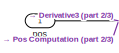
[diagram: Inverse Kinematics - part 1/3, top left region]
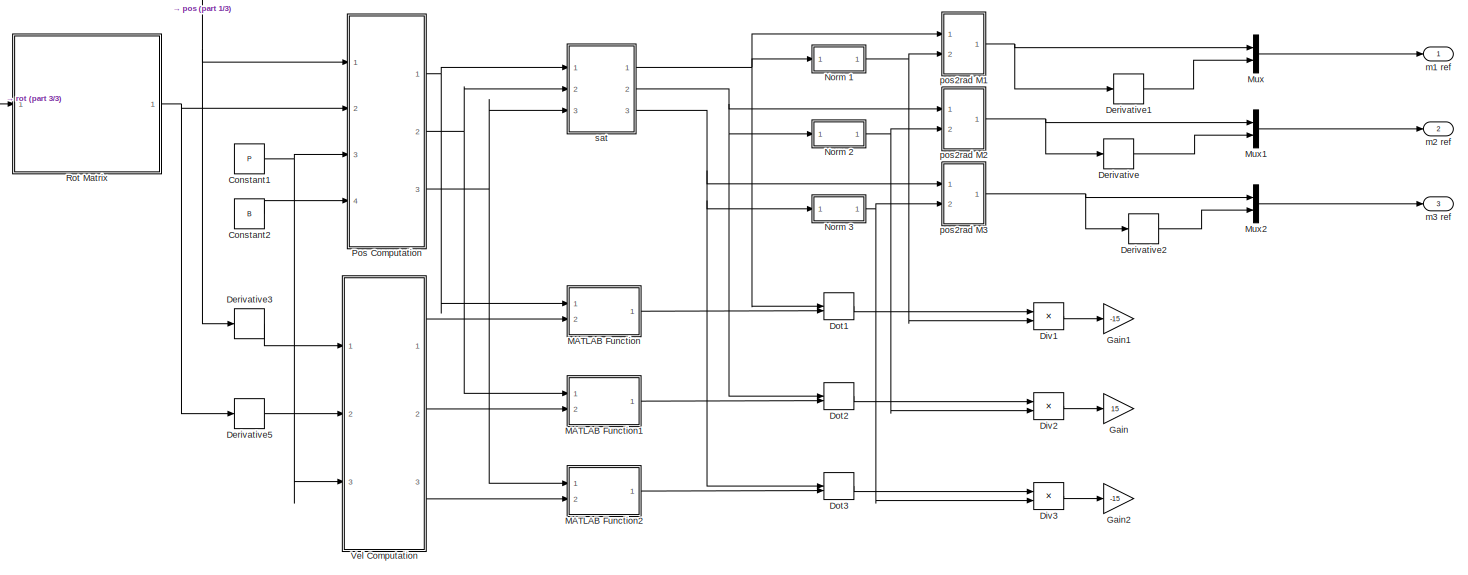
[diagram: Inverse Kinematics - part 2/3, most of the canvas]
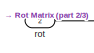
[diagram: Inverse Kinematics - part 3/3, top left region]
BLOCK [SubSystem] Inverse Kinematics
  Ports = [2, 3]
  RequestExecContextInheritance = off
BLOCK [Constant] Inverse Kinematics/Constant1
  Value = P
BLOCK [Constant] Inverse Kinematics/Constant2
  Value = B
BLOCK [Derivative] Inverse Kinematics/Derivative
BLOCK [Derivative] Inverse Kinematics/Derivative1
BLOCK [Derivative] Inverse Kinematics/Derivative2
BLOCK [Derivative] Inverse Kinematics/Derivative3
  Commented = on
BLOCK [Derivative] Inverse Kinematics/Derivative5
  Commented = on
BLOCK [Product] Inverse Kinematics/Div1
  Commented = on
  InputSameDT = off
  Inputs = */
  OutDataTypeStr = Inherit: Inherit via internal rule
  Ports = [2, 1]
  RndMeth = Floor
  SaturateOnIntegerOverflow = off
BLOCK [Product] Inverse Kinematics/Div2
  Commented = on
  InputSameDT = off
  Inputs = */
  OutDataTypeStr = Inherit: Inherit via internal rule
  Ports = [2, 1]
  RndMeth = Floor
  SaturateOnIntegerOverflow = off
BLOCK [Product] Inverse Kinematics/Div3
  Commented = on
  InputSameDT = off
  Inputs = */
  OutDataTypeStr = Inherit: Inherit via internal rule
  Ports = [2, 1]
  RndMeth = Floor
  SaturateOnIntegerOverflow = off
BLOCK [DotProduct] Inverse Kinematics/Dot1
  Commented = on
  InputSameDT = off
  OutDataTypeStr = Inherit: Inherit via internal rule
BLOCK [DotProduct] Inverse Kinematics/Dot2
  Commented = on
  InputSameDT = off
  OutDataTypeStr = Inherit: Inherit via internal rule
BLOCK [DotProduct] Inverse Kinematics/Dot3
  Commented = on
  InputSameDT = off
  OutDataTypeStr = Inherit: Inherit via internal rule
BLOCK [Gain] Inverse Kinematics/Gain
  Commented = on
  Gain = 15
  OutDataTypeStr = Inherit: Inherit via internal rule
  ParamDataTypeStr = Inherit: Inherit via internal rule
  SaturateOnIntegerOverflow = off
BLOCK [Gain] Inverse Kinematics/Gain1
  Commented = on
  Gain = -15
  OutDataTypeStr = Inherit: Inherit via internal rule
  ParamDataTypeStr = Inherit: Inherit via internal rule
  SaturateOnIntegerOverflow = off
BLOCK [Gain] Inverse Kinematics/Gain2
  Commented = on
  Gain = -15
  OutDataTypeStr = Inherit: Inherit via internal rule
  ParamDataTypeStr = Inherit: Inherit via internal rule
  SaturateOnIntegerOverflow = off
BLOCK [SubSystem] Inverse Kinematics/MATLAB Function
  Commented = on
  ErrorFcn = Stateflow.Translate.translate
  PermitHierarchicalResolution = ExplicitOnly
  Ports = [2, 1]
  RequestExecContextInheritance = off
  SFBlockType = MATLAB Function
  TreatAsAtomicUnit = on
BLOCK [Demux] Inverse Kinematics/MATLAB Function/ Demux 
  Outputs = 1
  Ports = [1, 1]
BLOCK [S-Function] Inverse Kinematics/MATLAB Function/ SFunction 
  EnableBusSupport = on
  FunctionName = sf_sfun
  PortCounts = [2 2]
  Ports = [2, 2]
  SFcnIsStateOwnerBlock = off
  SFunctionDeploymentMode = off
  Tag = Stateflow S-Function platafomra_esfera 25
BLOCK [Terminator] Inverse Kinematics/MATLAB Function/ Terminator 
BLOCK [Inport] Inverse Kinematics/MATLAB Function/pos
  IconDisplay = Port number
BLOCK [Inport] Inverse Kinematics/MATLAB Function/x
  IconDisplay = Port number
  Port = 2
BLOCK [Outport] Inverse Kinematics/MATLAB Function/y
  IconDisplay = Port number
BLOCK [SubSystem] Inverse Kinematics/MATLAB Function1
  Commented = on
  ErrorFcn = Stateflow.Translate.translate
  PermitHierarchicalResolution = ExplicitOnly
  Ports = [2, 1]
  RequestExecContextInheritance = off
  SFBlockType = MATLAB Function
  TreatAsAtomicUnit = on
BLOCK [Demux] Inverse Kinematics/MATLAB Function1/ Demux 
  Outputs = 1
  Ports = [1, 1]
BLOCK [S-Function] Inverse Kinematics/MATLAB Function1/ SFunction 
  EnableBusSupport = on
  FunctionName = sf_sfun
  PortCounts = [2 2]
  Ports = [2, 2]
  SFcnIsStateOwnerBlock = off
  SFunctionDeploymentMode = off
  Tag = Stateflow S-Function platafomra_esfera 26
BLOCK [Terminator] Inverse Kinematics/MATLAB Function1/ Terminator 
BLOCK [Inport] Inverse Kinematics/MATLAB Function1/pos
  IconDisplay = Port number
BLOCK [Inport] Inverse Kinematics/MATLAB Function1/x
  IconDisplay = Port number
  Port = 2
BLOCK [Outport] Inverse Kinematics/MATLAB Function1/y
  IconDisplay = Port number
BLOCK [SubSystem] Inverse Kinematics/MATLAB Function2
  Commented = on
  ErrorFcn = Stateflow.Translate.translate
  PermitHierarchicalResolution = ExplicitOnly
  Ports = [2, 1]
  RequestExecContextInheritance = off
  SFBlockType = MATLAB Function
  TreatAsAtomicUnit = on
BLOCK [Demux] Inverse Kinematics/MATLAB Function2/ Demux 
  Outputs = 1
  Ports = [1, 1]
BLOCK [S-Function] Inverse Kinematics/MATLAB Function2/ SFunction 
  EnableBusSupport = on
  FunctionName = sf_sfun
  PortCounts = [2 2]
  Ports = [2, 2]
  SFcnIsStateOwnerBlock = off
  SFunctionDeploymentMode = off
  Tag = Stateflow S-Function platafomra_esfera 27
BLOCK [Terminator] Inverse Kinematics/MATLAB Function2/ Terminator 
BLOCK [Inport] Inverse Kinematics/MATLAB Function2/pos
  IconDisplay = Port number
BLOCK [Inport] Inverse Kinematics/MATLAB Function2/x
  IconDisplay = Port number
  Port = 2
BLOCK [Outport] Inverse Kinematics/MATLAB Function2/y
  IconDisplay = Port number
BLOCK [Mux] Inverse Kinematics/Mux
  DisplayOption = bar
  Inputs = 2
  Ports = [2, 1]
BLOCK [Mux] Inverse Kinematics/Mux1
  DisplayOption = bar
  Inputs = 2
  Ports = [2, 1]
BLOCK [Mux] Inverse Kinematics/Mux2
  DisplayOption = bar
  Inputs = 2
  Ports = [2, 1]
BLOCK [SubSystem] Inverse Kinematics/Norm 1
  Ports = [1, 1]
  RequestExecContextInheritance = off
BLOCK [DotProduct] Inverse Kinematics/Norm 1/Dot Product
  InputSameDT = off
  OutDataTypeStr = Inherit: Inherit via internal rule
BLOCK [Sqrt] Inverse Kinematics/Norm 1/Sqrt
BLOCK [Inport] Inverse Kinematics/Norm 1/v
  IconDisplay = Port number
BLOCK [Outport] Inverse Kinematics/Norm 1/||v||
  IconDisplay = Port number
BLOCK [SubSystem] Inverse Kinematics/Norm 2
  Ports = [1, 1]
  RequestExecContextInheritance = off
BLOCK [DotProduct] Inverse Kinematics/Norm 2/Dot Product
  InputSameDT = off
  OutDataTypeStr = Inherit: Inherit via internal rule
BLOCK [Sqrt] Inverse Kinematics/Norm 2/Sqrt
BLOCK [Inport] Inverse Kinematics/Norm 2/v
  IconDisplay = Port number
BLOCK [Outport] Inverse Kinematics/Norm 2/||v||
  IconDisplay = Port number
BLOCK [SubSystem] Inverse Kinematics/Norm 3
  Ports = [1, 1]
  RequestExecContextInheritance = off
BLOCK [DotProduct] Inverse Kinematics/Norm 3/Dot Product
  InputSameDT = off
  OutDataTypeStr = Inherit: Inherit via internal rule
BLOCK [Sqrt] Inverse Kinematics/Norm 3/Sqrt
BLOCK [Inport] Inverse Kinematics/Norm 3/v
  IconDisplay = Port number
BLOCK [Outport] Inverse Kinematics/Norm 3/||v||
  IconDisplay = Port number
BLOCK [SubSystem] Inverse Kinematics/Pos Computation
  Ports = [4, 3]
  RequestExecContextInheritance = off
BLOCK [SubSystem] Inverse Kinematics/Pos Computation/6-Way Column Splitter
  Ports = [1, 3]
  RequestExecContextInheritance = off
BLOCK [Inport] Inverse Kinematics/Pos Computation/6-Way Column Splitter/A
  IconDisplay = Port number
BLOCK [Outport] Inverse Kinematics/Pos Computation/6-Way Column Splitter/Col1
  IconDisplay = Port number
BLOCK [Outport] Inverse Kinematics/Pos Computation/6-Way Column Splitter/Col2
  IconDisplay = Port number
  Port = 2
BLOCK [Outport] Inverse Kinematics/Pos Computation/6-Way Column Splitter/Col3
  IconDisplay = Port number
  Port = 3
BLOCK [Selector] Inverse Kinematics/Pos Computation/6-Way Column Splitter/Column 1
  IndexOptions = Select all,Index vector (dialog)
  Indices = -1,1
  InputPortWidth = 3
  NumberOfDimensions = 2
  OutputSizes = 1
  Ports = [1, 1]
BLOCK [Selector] Inverse Kinematics/Pos Computation/6-Way Column Splitter/Column 2
  IndexOptions = Select all,Index vector (dialog)
  Indices = -1,2
  InputPortWidth = 3
  NumberOfDimensions = 2
  OutputSizes = 1
  Ports = [1, 1]
BLOCK [Selector] Inverse Kinematics/Pos Computation/6-Way Column Splitter/Column 3
  IndexOptions = Select all,Index vector (dialog)
  Indices = -1,3
  InputPortWidth = 3
  NumberOfDimensions = 2
  OutputSizes = 1
  Ports = [1, 1]
BLOCK [Inport] Inverse Kinematics/Pos Computation/B
  IconDisplay = Port number
  Port = 4
BLOCK [Inport] Inverse Kinematics/Pos Computation/P
  IconDisplay = Port number
  Port = 3
BLOCK [Inport] Inverse Kinematics/Pos Computation/R
  IconDisplay = Port number
  Port = 2
BLOCK [Product] Inverse Kinematics/Pos Computation/R P
  InputSameDT = off
  Multiplication = Matrix(*)
  OutDataTypeStr = Inherit: Inherit via internal rule
  Ports = [2, 1]
  SaturateOnIntegerOverflow = off
BLOCK [Sum] Inverse Kinematics/Pos Computation/Sum
  InputSameDT = off
  Inputs = ++-
  OutDataTypeStr = Inherit: Inherit via internal rule
  Ports = [3, 1]
  SaturateOnIntegerOverflow = off
BLOCK [Inport] Inverse Kinematics/Pos Computation/d
  IconDisplay = Port number
BLOCK [Concatenate] Inverse Kinematics/Pos Computation/d x 6
  ConcatenateDimension = 2
  Mode = Multidimensional array
  NumInputs = 3
  Ports = [3, 1]
BLOCK [Outport] Inverse Kinematics/Pos Computation/offset1
  IconDisplay = Port number
BLOCK [Outport] Inverse Kinematics/Pos Computation/offset2
  IconDisplay = Port number
  Port = 2
BLOCK [Outport] Inverse Kinematics/Pos Computation/offset3
  IconDisplay = Port number
  Port = 3
BLOCK [SubSystem] Inverse Kinematics/Rot Matrix
  Ports = [1, 1]
  RequestExecContextInheritance = off
BLOCK [Fcn] Inverse Kinematics/Rot Matrix/11
  Expr = cos(u[2])*cos(u[3])
BLOCK [Fcn] Inverse Kinematics/Rot Matrix/12
  Expr = cos(u[2])*sin(u[3])
BLOCK [Fcn] Inverse Kinematics/Rot Matrix/13
  Expr = -sin(u[2])
BLOCK [Fcn] Inverse Kinematics/Rot Matrix/21
  Expr = cos(u[3])*sin(u[1])*sin(u[2])-cos(u[1])*sin(u[3])
BLOCK [Fcn] Inverse Kinematics/Rot Matrix/22
  Expr = cos(u[1])*cos(u[3]) + sin(u[1])*sin(u[2])*sin(u[3])
BLOCK [Fcn] Inverse Kinematics/Rot Matrix/23
  Expr = cos(u[2])*sin(u[1])
BLOCK [Fcn] Inverse Kinematics/Rot Matrix/31
  Expr = sin(u[1])*sin(u[3]) + cos(u[1])*cos(u[3])*sin(u[2])
BLOCK [Fcn] Inverse Kinematics/Rot Matrix/32
  Expr = cos(u[1])*sin(u[2])*sin(u[3])-cos(u[3])*sin(u[1])
BLOCK [Fcn] Inverse Kinematics/Rot Matrix/33
  Expr = cos(u[1])*cos(u[2])
BLOCK [Mux] Inverse Kinematics/Rot Matrix/Mux2
  DisplayOption = bar
  Inputs = 9
  Ports = [9, 1]
BLOCK [Outport] Inverse Kinematics/Rot Matrix/R
  IconDisplay = Port number
BLOCK [Reshape] Inverse Kinematics/Rot Matrix/Reshape 9x1->3x3
  OutputDimensionality = Customize
  OutputDimensions = [3,3]
  Ports = [1, 1]
BLOCK [Inport] Inverse Kinematics/Rot Matrix/angles
  IconDisplay = Port number
BLOCK [SubSystem] Inverse Kinematics/Vel Computation
  Commented = on
  Ports = [3, 3]
  RequestExecContextInheritance = off
BLOCK [SubSystem] Inverse Kinematics/Vel Computation/6-Way Column Splitter
  Ports = [1, 3]
  RequestExecContextInheritance = off
BLOCK [Inport] Inverse Kinematics/Vel Computation/6-Way Column Splitter/A
  IconDisplay = Port number
BLOCK [Outport] Inverse Kinematics/Vel Computation/6-Way Column Splitter/Col1
  IconDisplay = Port number
BLOCK [Outport] Inverse Kinematics/Vel Computation/6-Way Column Splitter/Col2
  IconDisplay = Port number
  Port = 2
BLOCK [Outport] Inverse Kinematics/Vel Computation/6-Way Column Splitter/Col3
  IconDisplay = Port number
  Port = 3
BLOCK [Selector] Inverse Kinematics/Vel Computation/6-Way Column Splitter/Column 1
  IndexOptions = Select all,Index vector (dialog)
  Indices = -1,1
  InputPortWidth = 3
  NumberOfDimensions = 2
  OutputSizes = 1
  Ports = [1, 1]
BLOCK [Selector] Inverse Kinematics/Vel Computation/6-Way Column Splitter/Column 2
  IndexOptions = Select all,Index vector (dialog)
  Indices = -1,2
  InputPortWidth = 3
  NumberOfDimensions = 2
  OutputSizes = 1
  Ports = [1, 1]
BLOCK [Selector] Inverse Kinematics/Vel Computation/6-Way Column Splitter/Column 3
  IndexOptions = Select all,Index vector (dialog)
  Indices = -1,3
  InputPortWidth = 3
  NumberOfDimensions = 2
  OutputSizes = 1
  Ports = [1, 1]
BLOCK [Inport] Inverse Kinematics/Vel Computation/P
  IconDisplay = Port number
  Port = 3
BLOCK [Product] Inverse Kinematics/Vel Computation/R P
  InputSameDT = off
  Multiplication = Matrix(*)
  OutDataTypeStr = Inherit: Inherit via internal rule
  Ports = [2, 1]
  SaturateOnIntegerOverflow = off
BLOCK [Inport] Inverse Kinematics/Vel Computation/R'
  IconDisplay = Port number
  Port = 2
BLOCK [Sum] Inverse Kinematics/Vel Computation/Sum
  InputSameDT = off
  OutDataTypeStr = Inherit: Inherit via internal rule
  Ports = [2, 1]
  SaturateOnIntegerOverflow = off
BLOCK [Inport] Inverse Kinematics/Vel Computation/d'
  IconDisplay = Port number
BLOCK [Concatenate] Inverse Kinematics/Vel Computation/d' x 6
  ConcatenateDimension = 2
  Mode = Multidimensional array
  NumInputs = 3
  Ports = [3, 1]
BLOCK [Outport] Inverse Kinematics/Vel Computation/offset1'
  IconDisplay = Port number
BLOCK [Outport] Inverse Kinematics/Vel Computation/offset2'
  IconDisplay = Port number
  Port = 2
BLOCK [Outport] Inverse Kinematics/Vel Computation/offset3'
  IconDisplay = Port number
  Port = 3
BLOCK [Outport] Inverse Kinematics/m1 ref
  IconDisplay = Port number
BLOCK [Outport] Inverse Kinematics/m2 ref
  IconDisplay = Port number
  Port = 2
BLOCK [Outport] Inverse Kinematics/m3 ref
  IconDisplay = Port number
  Port = 3
BLOCK [Inport] Inverse Kinematics/pos
  IconDisplay = Port number
BLOCK [SubSystem] Inverse Kinematics/pos2rad M1
  Ports = [2, 1]
  RequestExecContextInheritance = off
BLOCK [Selector] Inverse Kinematics/pos2rad M1/Column 1
  IndexOptions = Index vector (dialog)
  Indices = 3
  InputPortWidth = 3
  OutputSizes = 1
  Ports = [1, 1]
BLOCK [Constant] Inverse Kinematics/pos2rad M1/Constant
  Value = 0
BLOCK [Constant] Inverse Kinematics/pos2rad M1/Constant1
  Value = 2
BLOCK [Constant] Inverse Kinematics/pos2rad M1/Constant5
  Value = a
BLOCK [Constant] Inverse Kinematics/pos2rad M1/Constant6
  Value = b
BLOCK [Product] Inverse Kinematics/pos2rad M1/Divide
  InputSameDT = off
  Inputs = */
  OutDataTypeStr = Inherit: Inherit via internal rule
  Ports = [2, 1]
  RndMeth = Floor
  SaturateOnIntegerOverflow = off
BLOCK [Product] Inverse Kinematics/pos2rad M1/Divide1
  InputSameDT = off
  Inputs = */
  OutDataTypeStr = Inherit: Inherit via internal rule
  Ports = [2, 1]
  RndMeth = Floor
  SaturateOnIntegerOverflow = off
BLOCK [Gain] Inverse Kinematics/pos2rad M1/Gain
  Gain = pi/180
  OutDataTypeStr = Inherit: Inherit via internal rule
  ParamDataTypeStr = Inherit: Inherit via internal rule
  SaturateOnIntegerOverflow = off
BLOCK [Inport] Inverse Kinematics/pos2rad M1/L
  IconDisplay = Port number
  Port = 2
BLOCK [SubSystem] Inverse Kinematics/pos2rad M1/MATLAB Function
  Commented = on
  ErrorFcn = Stateflow.Translate.translate
  PermitHierarchicalResolution = ExplicitOnly
  Ports = [4, 1]
  RequestExecContextInheritance = off
  SFBlockType = MATLAB Function
  TreatAsAtomicUnit = on
BLOCK [Demux] Inverse Kinematics/pos2rad M1/MATLAB Function/ Demux 
  Outputs = 1
  Ports = [1, 1]
BLOCK [S-Function] Inverse Kinematics/pos2rad M1/MATLAB Function/ SFunction 
  EnableBusSupport = on
  FunctionName = sf_sfun
  PortCounts = [4 2]
  Ports = [4, 2]
  SFcnIsStateOwnerBlock = off
  SFunctionDeploymentMode = off
  Tag = Stateflow S-Function platafomra_esfera 2
BLOCK [Terminator] Inverse Kinematics/pos2rad M1/MATLAB Function/ Terminator 
BLOCK [Inport] Inverse Kinematics/pos2rad M1/MATLAB Function/L
  IconDisplay = Port number
BLOCK [Inport] Inverse Kinematics/pos2rad M1/MATLAB Function/a
  IconDisplay = Port number
  Port = 3
BLOCK [Inport] Inverse Kinematics/pos2rad M1/MATLAB Function/b
  IconDisplay = Port number
  Port = 4
BLOCK [Outport] Inverse Kinematics/pos2rad M1/MATLAB Function/y
  IconDisplay = Port number
BLOCK [Inport] Inverse Kinematics/pos2rad M1/MATLAB Function/z
  IconDisplay = Port number
  Port = 2
BLOCK [Outport] Inverse Kinematics/pos2rad M1/Out1
  IconDisplay = Port number
BLOCK [Product] Inverse Kinematics/pos2rad M1/Product
  InputSameDT = off
  OutDataTypeStr = Inherit: Inherit via internal rule
  Ports = [2, 1]
  RndMeth = Floor
  SaturateOnIntegerOverflow = off
BLOCK [Product] Inverse Kinematics/pos2rad M1/Product1
  InputSameDT = off
  OutDataTypeStr = Inherit: Inherit via internal rule
  Ports = [2, 1]
  RndMeth = Floor
  SaturateOnIntegerOverflow = off
BLOCK [Product] Inverse Kinematics/pos2rad M1/Product2
  InputSameDT = off
  OutDataTypeStr = Inherit: Inherit via internal rule
  Ports = [2, 1]
  RndMeth = Floor
  SaturateOnIntegerOverflow = off
BLOCK [Product] Inverse Kinematics/pos2rad M1/Product3
  InputSameDT = off
  Inputs = 3
  OutDataTypeStr = Inherit: Inherit via internal rule
  Ports = [3, 1]
  RndMeth = Floor
  SaturateOnIntegerOverflow = off
BLOCK [Sum] Inverse Kinematics/pos2rad M1/Sum1
  IconShape = round
  InputSameDT = off
  Inputs = ++-
  OutDataTypeStr = Inherit: Inherit via internal rule
  Ports = [3, 1]
  SaturateOnIntegerOverflow = off
BLOCK [Sum] Inverse Kinematics/pos2rad M1/Sum2
  IconShape = round
  InputSameDT = off
  Inputs = +++
  OutDataTypeStr = Inherit: Inherit via internal rule
  Ports = [3, 1]
  SaturateOnIntegerOverflow = off
BLOCK [Trigonometry] Inverse Kinematics/pos2rad M1/Trigonometric Function
  Operator = acos
  Ports = [1, 1]
BLOCK [Trigonometry] Inverse Kinematics/pos2rad M1/Trigonometric Function1
  Operator = acos
  Ports = [1, 1]
BLOCK [Inport] Inverse Kinematics/pos2rad M1/z
  IconDisplay = Port number
BLOCK [SubSystem] Inverse Kinematics/pos2rad M2
  Ports = [2, 1]
  RequestExecContextInheritance = off
BLOCK [Selector] Inverse Kinematics/pos2rad M2/Column 1
  IndexOptions = Index vector (dialog)
  Indices = 3
  InputPortWidth = 3
  OutputSizes = 1
  Ports = [1, 1]
BLOCK [Constant] Inverse Kinematics/pos2rad M2/Constant
  Value = 90
BLOCK [Constant] Inverse Kinematics/pos2rad M2/Constant1
  Value = 2
BLOCK [Constant] Inverse Kinematics/pos2rad M2/Constant5
  Value = a
BLOCK [Constant] Inverse Kinematics/pos2rad M2/Constant6
  Value = b
BLOCK [Product] Inverse Kinematics/pos2rad M2/Divide
  InputSameDT = off
  Inputs = */
  OutDataTypeStr = Inherit: Inherit via internal rule
  Ports = [2, 1]
  RndMeth = Floor
  SaturateOnIntegerOverflow = off
BLOCK [Product] Inverse Kinematics/pos2rad M2/Divide1
  InputSameDT = off
  Inputs = */
  OutDataTypeStr = Inherit: Inherit via internal rule
  Ports = [2, 1]
  RndMeth = Floor
  SaturateOnIntegerOverflow = off
BLOCK [Gain] Inverse Kinematics/pos2rad M2/Gain3
  Gain = pi/180
  OutDataTypeStr = Inherit: Inherit via internal rule
  ParamDataTypeStr = Inherit: Inherit via internal rule
  SaturateOnIntegerOverflow = off
BLOCK [Inport] Inverse Kinematics/pos2rad M2/L
  IconDisplay = Port number
  Port = 2
BLOCK [SubSystem] Inverse Kinematics/pos2rad M2/MATLAB Function
  Commented = on
  ErrorFcn = Stateflow.Translate.translate
  PermitHierarchicalResolution = ExplicitOnly
  Ports = [4, 1]
  RequestExecContextInheritance = off
  SFBlockType = MATLAB Function
  TreatAsAtomicUnit = on
BLOCK [Demux] Inverse Kinematics/pos2rad M2/MATLAB Function/ Demux 
  Outputs = 1
  Ports = [1, 1]
BLOCK [S-Function] Inverse Kinematics/pos2rad M2/MATLAB Function/ SFunction 
  EnableBusSupport = on
  FunctionName = sf_sfun
  PortCounts = [4 2]
  Ports = [4, 2]
  SFcnIsStateOwnerBlock = off
  SFunctionDeploymentMode = off
  Tag = Stateflow S-Function platafomra_esfera 1
BLOCK [Terminator] Inverse Kinematics/pos2rad M2/MATLAB Function/ Terminator 
BLOCK [Inport] Inverse Kinematics/pos2rad M2/MATLAB Function/L
  IconDisplay = Port number
BLOCK [Inport] Inverse Kinematics/pos2rad M2/MATLAB Function/a
  IconDisplay = Port number
  Port = 3
BLOCK [Inport] Inverse Kinematics/pos2rad M2/MATLAB Function/b
  IconDisplay = Port number
  Port = 4
BLOCK [Outport] Inverse Kinematics/pos2rad M2/MATLAB Function/y
  IconDisplay = Port number
BLOCK [Inport] Inverse Kinematics/pos2rad M2/MATLAB Function/z
  IconDisplay = Port number
  Port = 2
BLOCK [Outport] Inverse Kinematics/pos2rad M2/Out1
  IconDisplay = Port number
BLOCK [Product] Inverse Kinematics/pos2rad M2/Product
  InputSameDT = off
  OutDataTypeStr = Inherit: Inherit via internal rule
  Ports = [2, 1]
  RndMeth = Floor
  SaturateOnIntegerOverflow = off
BLOCK [Product] Inverse Kinematics/pos2rad M2/Product1
  InputSameDT = off
  OutDataTypeStr = Inherit: Inherit via internal rule
  Ports = [2, 1]
  RndMeth = Floor
  SaturateOnIntegerOverflow = off
BLOCK [Product] Inverse Kinematics/pos2rad M2/Product2
  InputSameDT = off
  OutDataTypeStr = Inherit: Inherit via internal rule
  Ports = [2, 1]
  RndMeth = Floor
  SaturateOnIntegerOverflow = off
BLOCK [Product] Inverse Kinematics/pos2rad M2/Product3
  InputSameDT = off
  Inputs = 3
  OutDataTypeStr = Inherit: Inherit via internal rule
  Ports = [3, 1]
  RndMeth = Floor
  SaturateOnIntegerOverflow = off
BLOCK [Sum] Inverse Kinematics/pos2rad M2/Sum1
  IconShape = round
  InputSameDT = off
  Inputs = ++-
  OutDataTypeStr = Inherit: Inherit via internal rule
  Ports = [3, 1]
  SaturateOnIntegerOverflow = off
BLOCK [Sum] Inverse Kinematics/pos2rad M2/Sum2
  IconShape = round
  InputSameDT = off
  Inputs = ---
  OutDataTypeStr = Inherit: Inherit via internal rule
  Ports = [3, 1]
  SaturateOnIntegerOverflow = off
BLOCK [Trigonometry] Inverse Kinematics/pos2rad M2/Trigonometric Function
  Operator = acos
  Ports = [1, 1]
BLOCK [Trigonometry] Inverse Kinematics/pos2rad M2/Trigonometric Function1
  Operator = acos
  Ports = [1, 1]
BLOCK [Inport] Inverse Kinematics/pos2rad M2/z
  IconDisplay = Port number
BLOCK [SubSystem] Inverse Kinematics/pos2rad M3
  Ports = [2, 1]
  RequestExecContextInheritance = off
BLOCK [Selector] Inverse Kinematics/pos2rad M3/Column 1
  IndexOptions = Index vector (dialog)
  Indices = 3
  InputPortWidth = 3
  OutputSizes = 1
  Ports = [1, 1]
BLOCK [Constant] Inverse Kinematics/pos2rad M3/Constant
  Value = 90
BLOCK [Constant] Inverse Kinematics/pos2rad M3/Constant1
  Value = 2
BLOCK [Constant] Inverse Kinematics/pos2rad M3/Constant5
  Value = a
BLOCK [Constant] Inverse Kinematics/pos2rad M3/Constant6
  Value = b
BLOCK [Product] Inverse Kinematics/pos2rad M3/Divide
  InputSameDT = off
  Inputs = */
  OutDataTypeStr = Inherit: Inherit via internal rule
  Ports = [2, 1]
  RndMeth = Floor
  SaturateOnIntegerOverflow = off
BLOCK [Product] Inverse Kinematics/pos2rad M3/Divide1
  InputSameDT = off
  Inputs = */
  OutDataTypeStr = Inherit: Inherit via internal rule
  Ports = [2, 1]
  RndMeth = Floor
  SaturateOnIntegerOverflow = off
BLOCK [Gain] Inverse Kinematics/pos2rad M3/Gain3
  Gain = pi/180
  OutDataTypeStr = Inherit: Inherit via internal rule
  ParamDataTypeStr = Inherit: Inherit via internal rule
  SaturateOnIntegerOverflow = off
BLOCK [Inport] Inverse Kinematics/pos2rad M3/L
  IconDisplay = Port number
  Port = 2
BLOCK [SubSystem] Inverse Kinematics/pos2rad M3/MATLAB Function
  Commented = on
  ErrorFcn = Stateflow.Translate.translate
  PermitHierarchicalResolution = ExplicitOnly
  Ports = [4, 1]
  RequestExecContextInheritance = off
  SFBlockType = MATLAB Function
  TreatAsAtomicUnit = on
BLOCK [Demux] Inverse Kinematics/pos2rad M3/MATLAB Function/ Demux 
  Outputs = 1
  Ports = [1, 1]
BLOCK [S-Function] Inverse Kinematics/pos2rad M3/MATLAB Function/ SFunction 
  EnableBusSupport = on
  FunctionName = sf_sfun
  PortCounts = [4 2]
  Ports = [4, 2]
  SFcnIsStateOwnerBlock = off
  SFunctionDeploymentMode = off
  Tag = Stateflow S-Function platafomra_esfera 3
BLOCK [Terminator] Inverse Kinematics/pos2rad M3/MATLAB Function/ Terminator 
BLOCK [Inport] Inverse Kinematics/pos2rad M3/MATLAB Function/L
  IconDisplay = Port number
BLOCK [Inport] Inverse Kinematics/pos2rad M3/MATLAB Function/a
  IconDisplay = Port number
  Port = 3
BLOCK [Inport] Inverse Kinematics/pos2rad M3/MATLAB Function/b
  IconDisplay = Port number
  Port = 4
BLOCK [Outport] Inverse Kinematics/pos2rad M3/MATLAB Function/y
  IconDisplay = Port number
BLOCK [Inport] Inverse Kinematics/pos2rad M3/MATLAB Function/z
  IconDisplay = Port number
  Port = 2
BLOCK [Outport] Inverse Kinematics/pos2rad M3/Out1
  IconDisplay = Port number
BLOCK [Product] Inverse Kinematics/pos2rad M3/Product
  InputSameDT = off
  OutDataTypeStr = Inherit: Inherit via internal rule
  Ports = [2, 1]
  RndMeth = Floor
  SaturateOnIntegerOverflow = off
BLOCK [Product] Inverse Kinematics/pos2rad M3/Product1
  InputSameDT = off
  OutDataTypeStr = Inherit: Inherit via internal rule
  Ports = [2, 1]
  RndMeth = Floor
  SaturateOnIntegerOverflow = off
BLOCK [Product] Inverse Kinematics/pos2rad M3/Product2
  InputSameDT = off
  OutDataTypeStr = Inherit: Inherit via internal rule
  Ports = [2, 1]
  RndMeth = Floor
  SaturateOnIntegerOverflow = off
BLOCK [Product] Inverse Kinematics/pos2rad M3/Product3
  InputSameDT = off
  Inputs = 3
  OutDataTypeStr = Inherit: Inherit via internal rule
  Ports = [3, 1]
  RndMeth = Floor
  SaturateOnIntegerOverflow = off
BLOCK [Sum] Inverse Kinematics/pos2rad M3/Sum1
  IconShape = round
  InputSameDT = off
  Inputs = ++-
  OutDataTypeStr = Inherit: Inherit via internal rule
  Ports = [3, 1]
  SaturateOnIntegerOverflow = off
BLOCK [Sum] Inverse Kinematics/pos2rad M3/Sum2
  IconShape = round
  InputSameDT = off
  Inputs = ++-
  OutDataTypeStr = Inherit: Inherit via internal rule
  Ports = [3, 1]
  SaturateOnIntegerOverflow = off
BLOCK [Trigonometry] Inverse Kinematics/pos2rad M3/Trigonometric Function
  Operator = acos
  Ports = [1, 1]
BLOCK [Trigonometry] Inverse Kinematics/pos2rad M3/Trigonometric Function1
  Operator = acos
  Ports = [1, 1]
BLOCK [Inport] Inverse Kinematics/pos2rad M3/z
  IconDisplay = Port number
BLOCK [Inport] Inverse Kinematics/rot
  IconDisplay = Port number
  Port = 2
BLOCK [SubSystem] Inverse Kinematics/sat
  Commented = through
  Ports = [3, 3]
  RequestExecContextInheritance = off
BLOCK [Demux] Inverse Kinematics/sat/Demux
  DisplayOption = bar
  Outputs = 3
  Ports = [1, 3]
BLOCK [Demux] Inverse Kinematics/sat/Demux1
  DisplayOption = bar
  Outputs = 3
  Ports = [1, 3]
BLOCK [Demux] Inverse Kinematics/sat/Demux2
  DisplayOption = bar
  Outputs = 3
  Ports = [1, 3]
BLOCK [Inport] Inverse Kinematics/sat/In1
  IconDisplay = Port number
BLOCK [Inport] Inverse Kinematics/sat/In2
  IconDisplay = Port number
  Port = 2
BLOCK [Inport] Inverse Kinematics/sat/In3
  IconDisplay = Port number
  Port = 3
BLOCK [Mux] Inverse Kinematics/sat/Mux3
  DisplayOption = bar
  Inputs = 3
  Ports = [3, 1]
BLOCK [Mux] Inverse Kinematics/sat/Mux4
  DisplayOption = bar
  Inputs = 3
  Ports = [3, 1]
BLOCK [Mux] Inverse Kinematics/sat/Mux5
  DisplayOption = bar
  Inputs = 3
  Ports = [3, 1]
BLOCK [Outport] Inverse Kinematics/sat/Out1
  IconDisplay = Port number
BLOCK [Outport] Inverse Kinematics/sat/Out2
  IconDisplay = Port number
  Port = 2
BLOCK [Outport] Inverse Kinematics/sat/Out3
  IconDisplay = Port number
  Port = 3
BLOCK [Saturate] Inverse Kinematics/sat/Saturation
  InputPortMap = u0
  LowerLimit = 0.271
  Ports = [1, 1]
  UpperLimit = 0.415
BLOCK [Saturate] Inverse Kinematics/sat/Saturation1
  InputPortMap = u0
  LowerLimit = 0.264
  Ports = [1, 1]
  UpperLimit = 0.410
BLOCK [Saturate] Inverse Kinematics/sat/Saturation2
  InputPortMap = u0
  LowerLimit = 0.264
  Ports = [1, 1]
  UpperLimit = 0.410
BLOCK [SubSystem] Motor Contol performance Analysis
  Ports = [4]
  RequestExecContextInheritance = off
BLOCK [Constant] Motor Contol performance Analysis/Constant
  Value = 90
BLOCK [Constant] Motor Contol performance Analysis/Constant1
  Value = 90
BLOCK [Demux] Motor Contol performance Analysis/Demux
  DisplayOption = bar
  Outputs = 2
  Ports = [1, 2]
BLOCK [Demux] Motor Contol performance Analysis/Demux1
  DisplayOption = bar
  Outputs = 2
  Ports = [1, 2]
BLOCK [Demux] Motor Contol performance Analysis/Demux2
  DisplayOption = bar
  Outputs = 2
  Ports = [1, 2]
BLOCK [Demux] Motor Contol performance Analysis/Demux4
  DisplayOption = bar
  Outputs = 3
  Ports = [1, 3]
BLOCK [Gain] Motor Contol performance Analysis/Gain
  Commented = through
  Gain = 180/pi
  OutDataTypeStr = Inherit: Inherit via internal rule
  ParamDataTypeStr = Inherit: Inherit via internal rule
  SaturateOnIntegerOverflow = off
BLOCK [Gain] Motor Contol performance Analysis/Gain1
  Commented = through
  Gain = 180/pi
  OutDataTypeStr = Inherit: Inherit via internal rule
  ParamDataTypeStr = Inherit: Inherit via internal rule
  SaturateOnIntegerOverflow = off
BLOCK [Gain] Motor Contol performance Analysis/Gain2
  Commented = through
  Gain = 180/pi
  OutDataTypeStr = Inherit: Inherit via internal rule
  ParamDataTypeStr = Inherit: Inherit via internal rule
  SaturateOnIntegerOverflow = off
BLOCK [Gain] Motor Contol performance Analysis/Gain3
  Gain = pi/180
  OutDataTypeStr = Inherit: Inherit via internal rule
  ParamDataTypeStr = Inherit: Inherit via internal rule
  SaturateOnIntegerOverflow = off
BLOCK [Gain] Motor Contol performance Analysis/Gain4
  Gain = pi/180
  OutDataTypeStr = Inherit: Inherit via internal rule
  ParamDataTypeStr = Inherit: Inherit via internal rule
  SaturateOnIntegerOverflow = off
BLOCK [Inport] Motor Contol performance Analysis/M1
  IconDisplay = Port number
BLOCK [Inport] Motor Contol performance Analysis/M2
  IconDisplay = Port number
  Port = 2
BLOCK [Inport] Motor Contol performance Analysis/M3
  IconDisplay = Port number
  Port = 3
BLOCK [Inport] Motor Contol performance Analysis/Ref
  IconDisplay = Port number
  Port = 4
BLOCK [Scope] Motor Contol performance Analysis/Scope
  Floating = off
  NumInputPorts = 3
  Ports = [3]
  ScopeSpecificationString = Simulink.scopes.TimeScopeBlockCfg('CurrentConfiguration', extmgr.ConfigurationSet(extmgr.Configuration('Core','General UI',true),extmgr.Configuration('Core','Source UI',true),extmgr.Configuration('Sources','WiredSimulink',true,'DataLoggingVariableName','ScopeData2'),extmgr.Configuration('Visuals','Time Domain',true,'SerializedDisplays',{struct('MinYLimReal','1.39447','MaxYLimReal','1.75218','YLabe...<+2931ch>
BLOCK [Sum] Motor Contol performance Analysis/Sum
  IconShape = round
  InputSameDT = off
  Inputs = |--
  OutDataTypeStr = Inherit: Inherit via internal rule
  Ports = [2, 1]
  SaturateOnIntegerOverflow = off
BLOCK [Sum] Motor Contol performance Analysis/Sum1
  IconShape = round
  InputSameDT = off
  Inputs = |++
  OutDataTypeStr = Inherit: Inherit via internal rule
  Ports = [2, 1]
  SaturateOnIntegerOverflow = off
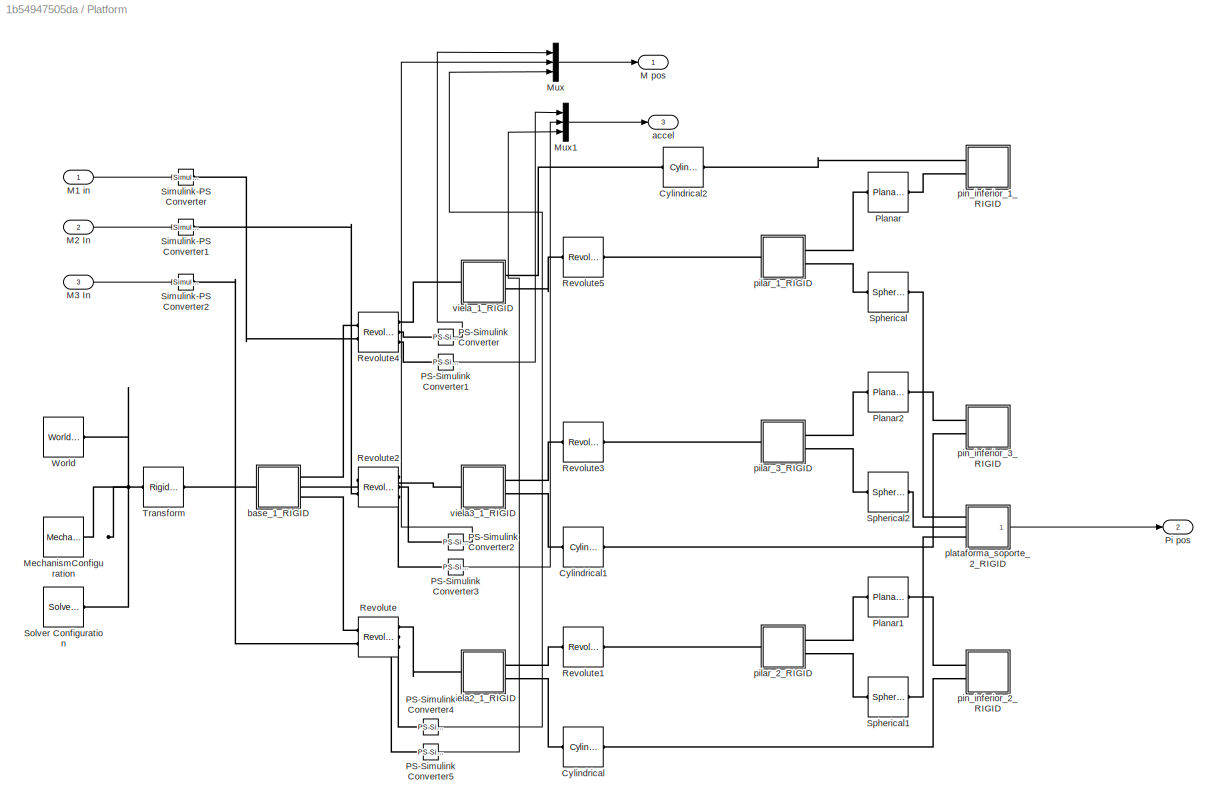
BLOCK [SubSystem] Platform
  Ports = [3, 3]
  RequestExecContextInheritance = off
BLOCK [SubSystem] Platform Performance Analysis
  Ports = [3]
  RequestExecContextInheritance = off
BLOCK [Selector] Platform Performance Analysis/Column 1
  IndexOptions = Index vector (dialog)
  Indices = 3
  InputPortWidth = 3
  OutputSizes = 1
  Ports = [1, 1]
BLOCK [Selector] Platform Performance Analysis/Column 2
  IndexOptions = Index vector (dialog)
  Indices = [1,2]
  InputPortWidth = 3
  OutputSizes = 1
  Ports = [1, 1]
BLOCK [Constant] Platform Performance Analysis/Constant
  Value = z
BLOCK [Demux] Platform Performance Analysis/Demux
  DisplayOption = bar
  Outputs = 3
  Ports = [1, 3]
BLOCK [Demux] Platform Performance Analysis/Demux2
  DisplayOption = bar
  Outputs = 2
  Ports = [1, 2]
BLOCK [Demux] Platform Performance Analysis/Demux3
  DisplayOption = bar
  Outputs = 2
  Ports = [1, 2]
BLOCK [Demux] Platform Performance Analysis/Demux4
  DisplayOption = bar
  Outputs = 2
  Ports = [1, 2]
BLOCK [Gain] Platform Performance Analysis/Gain3
  Gain = 180/pi
  OutDataTypeStr = Inherit: Inherit via internal rule
  ParamDataTypeStr = Inherit: Inherit via internal rule
  SaturateOnIntegerOverflow = off
BLOCK [Gain] Platform Performance Analysis/Gain7
  Gain = 0.7
  OutDataTypeStr = Inherit: Inherit via internal rule
  ParamDataTypeStr = Inherit: Inherit via internal rule
  SaturateOnIntegerOverflow = off
BLOCK [Gain] Platform Performance Analysis/Gain8
  Gain = 180/pi
  OutDataTypeStr = Inherit: Inherit via internal rule
  ParamDataTypeStr = Inherit: Inherit via internal rule
  SaturateOnIntegerOverflow = off
BLOCK [Gain] Platform Performance Analysis/Gain9
  Gain = 0.7
  OutDataTypeStr = Inherit: Inherit via internal rule
  ParamDataTypeStr = Inherit: Inherit via internal rule
  SaturateOnIntegerOverflow = off
BLOCK [Integrator] Platform Performance Analysis/Integrator
  Ports = [1, 1]
BLOCK [Integrator] Platform Performance Analysis/Integrator1
  Ports = [1, 1]
BLOCK [Integrator] Platform Performance Analysis/Integrator2
  Ports = [1, 1]
BLOCK [Mux] Platform Performance Analysis/Mux3
  DisplayOption = bar
  Inputs = 2
  Ports = [2, 1]
BLOCK [Mux] Platform Performance Analysis/Mux4
  DisplayOption = bar
  Inputs = 2
  Ports = [2, 1]
BLOCK [Scope] Platform Performance Analysis/Scope
  Floating = off
  NumInputPorts = 3
  Ports = [3]
  ScopeSpecificationString = Simulink.scopes.TimeScopeBlockCfg('CurrentConfiguration', extmgr.ConfigurationSet(extmgr.Configuration('Core','General UI',true),extmgr.Configuration('Core','Source UI',true),extmgr.Configuration('Sources','WiredSimulink',true,'DataLoggingVariableName','ScopeData1'),extmgr.Configuration('Visuals','Time Domain',true,'SerializedDisplays',{struct('MinYLimReal','-0.0000000000000000000001','MaxYLimReal...<+2801ch>
BLOCK [Scope] Platform Performance Analysis/Scope1
  Floating = off
  NumInputPorts = 2
  Ports = [2]
  ScopeSpecificationString = Simulink.scopes.TimeScopeBlockCfg('CurrentConfiguration', extmgr.ConfigurationSet(extmgr.Configuration('Core','General UI',true),extmgr.Configuration('Core','Source UI',true),extmgr.Configuration('Sources','WiredSimulink',true,'DataLoggingVariableName','ScopeData2'),extmgr.Configuration('Visuals','Time Domain',true,'SerializedDisplays',{struct('MinYLimReal','-0.0000000011','MaxYLimReal','0.0000000...<+1450ch>
BLOCK [Scope] Platform Performance Analysis/Scope5
  Floating = off
  NumInputPorts = 2
  Ports = [2]
  ScopeSpecificationString = Simulink.scopes.TimeScopeBlockCfg('CurrentConfiguration', extmgr.ConfigurationSet(extmgr.Configuration('Core','General UI',true),extmgr.Configuration('Core','Source UI',true),extmgr.Configuration('Sources','WiredSimulink',true,'DataLoggingVariableName','ScopeData3'),extmgr.Configuration('Visuals','Time Domain',true,'SerializedDisplays',{struct('MinYLimReal','-2.61541','MaxYLimReal','2.73525','YLab...<+1455ch>
BLOCK [Scope] Platform Performance Analysis/Scope6
  Floating = off
  NumInputPorts = 2
  Ports = [2]
  ScopeSpecificationString = Simulink.scopes.TimeScopeBlockCfg('CurrentConfiguration', extmgr.ConfigurationSet(extmgr.Configuration('Core','General UI',true),extmgr.Configuration('Core','Source UI',true),extmgr.Configuration('Sources','WiredSimulink',true,'DataLoggingVariableName','ScopeData4'),extmgr.Configuration('Visuals','Time Domain',true,'SerializedDisplays',{struct('MinYLimReal','-1.25813','MaxYLimReal','1.24831','YLab...<+1429ch>
BLOCK [Math] Platform Performance Analysis/Square
  Operator = square
  Ports = [1, 1]
BLOCK [Math] Platform Performance Analysis/Square1
  Operator = square
  Ports = [1, 1]
BLOCK [Math] Platform Performance Analysis/Square2
  Operator = square
  Ports = [1, 1]
BLOCK [Sum] Platform Performance Analysis/Sum
  IconShape = round
  InputSameDT = off
  Inputs = |+-
  OutDataTypeStr = Inherit: Inherit via internal rule
  Ports = [2, 1]
  SaturateOnIntegerOverflow = off
BLOCK [Sum] Platform Performance Analysis/Sum1
  IconShape = round
  InputSameDT = off
  Inputs = |+-
  OutDataTypeStr = Inherit: Inherit via internal rule
  Ports = [2, 1]
  SaturateOnIntegerOverflow = off
BLOCK [Sum] Platform Performance Analysis/Sum2
  IconShape = round
  InputSameDT = off
  Inputs = |+-
  OutDataTypeStr = Inherit: Inherit via internal rule
  Ports = [2, 1]
  SaturateOnIntegerOverflow = off
BLOCK [Sum] Platform Performance Analysis/Sum3
  IconShape = round
  InputSameDT = off
  Inputs = |+-
  OutDataTypeStr = Inherit: Inherit via internal rule
  Ports = [2, 1]
  SaturateOnIntegerOverflow = off
BLOCK [Inport] Platform Performance Analysis/pos ref
  IconDisplay = Port number
  Port = 2
BLOCK [Inport] Platform Performance Analysis/pos//rot real
  IconDisplay = Port number
BLOCK [Inport] Platform Performance Analysis/rot ref
  IconDisplay = Port number
  Port = 3
BLOCK [Reference] Platform/Cylindrical  REF=sm_lib/Joints/Cylindrical
Joint
  Ports = [0, 0, 0, 0, 0, 1, 1]
  SourceBlock = sm_lib/Joints/Cylindrical\nJoint
  SourceProductBaseCode = MS
  SourceProductName = Simscape Multibody
  SourceType = Cylindrical\nJoint
BLOCK [Reference] Platform/Cylindrical1  REF=sm_lib/Joints/Cylindrical
Joint
  Ports = [0, 0, 0, 0, 0, 1, 1]
  SourceBlock = sm_lib/Joints/Cylindrical\nJoint
  SourceProductBaseCode = MS
  SourceProductName = Simscape Multibody
  SourceType = Cylindrical\nJoint
BLOCK [Reference] Platform/Cylindrical2  REF=sm_lib/Joints/Cylindrical
Joint
  Ports = [0, 0, 0, 0, 0, 1, 1]
  SourceBlock = sm_lib/Joints/Cylindrical\nJoint
  SourceProductBaseCode = MS
  SourceProductName = Simscape Multibody
  SourceType = Cylindrical\nJoint
BLOCK [Outport] Platform/M pos
  IconDisplay = Port number
BLOCK [Inport] Platform/M1 in
  IconDisplay = Port number
BLOCK [Inport] Platform/M2 In
  IconDisplay = Port number
  Port = 2
BLOCK [Inport] Platform/M3 In
  IconDisplay = Port number
  Port = 3
BLOCK [Reference] Platform/MechanismConfiguration  REF=sm_lib/Utilities/Mechanism
Configuration
  Ports = [0, 0, 0, 0, 0, 0, 1]
  SourceBlock = sm_lib/Utilities/Mechanism\nConfiguration
  SourceProductBaseCode = MS
  SourceProductName = Simscape Multibody
  SourceType = Mechanism\nConfiguration
BLOCK [Mux] Platform/Mux
  DisplayOption = bar
  Inputs = 3
  Ports = [3, 1]
BLOCK [Mux] Platform/Mux1
  DisplayOption = bar
  Inputs = 3
  Ports = [3, 1]
BLOCK [Reference] Platform/PS-Simulink Converter  REF=nesl_utility/PS-Simulink
Converter
  Ports = [0, 1, 0, 0, 0, 1]
  SourceBlock = nesl_utility/PS-Simulink\nConverter
  SourceProductBaseCode = SS
  SourceProductName = Simscape
  SourceType = PS-Simulink\nConverter
BLOCK [Reference] Platform/PS-Simulink Converter1  REF=nesl_utility/PS-Simulink
Converter
  Ports = [0, 1, 0, 0, 0, 1]
  SourceBlock = nesl_utility/PS-Simulink\nConverter
  SourceProductBaseCode = SS
  SourceProductName = Simscape
  SourceType = PS-Simulink\nConverter
BLOCK [Reference] Platform/PS-Simulink Converter2  REF=nesl_utility/PS-Simulink
Converter
  Ports = [0, 1, 0, 0, 0, 1]
  SourceBlock = nesl_utility/PS-Simulink\nConverter
  SourceProductBaseCode = SS
  SourceProductName = Simscape
  SourceType = PS-Simulink\nConverter
BLOCK [Reference] Platform/PS-Simulink Converter3  REF=nesl_utility/PS-Simulink
Converter
  Ports = [0, 1, 0, 0, 0, 1]
  SourceBlock = nesl_utility/PS-Simulink\nConverter
  SourceProductBaseCode = SS
  SourceProductName = Simscape
  SourceType = PS-Simulink\nConverter
BLOCK [Reference] Platform/PS-Simulink Converter4  REF=nesl_utility/PS-Simulink
Converter
  Ports = [0, 1, 0, 0, 0, 1]
  SourceBlock = nesl_utility/PS-Simulink\nConverter
  SourceProductBaseCode = SS
  SourceProductName = Simscape
  SourceType = PS-Simulink\nConverter
BLOCK [Reference] Platform/PS-Simulink Converter5  REF=nesl_utility/PS-Simulink
Converter
  Ports = [0, 1, 0, 0, 0, 1]
  SourceBlock = nesl_utility/PS-Simulink\nConverter
  SourceProductBaseCode = SS
  SourceProductName = Simscape
  SourceType = PS-Simulink\nConverter
BLOCK [Outport] Platform/Pi pos
  IconDisplay = Port number
  Port = 2
BLOCK [Reference] Platform/Planar  REF=sm_lib/Joints/Planar Joint
  Ports = [0, 0, 0, 0, 0, 1, 1]
  SourceBlock = sm_lib/Joints/Planar Joint
  SourceProductBaseCode = MS
  SourceProductName = Simscape Multibody
  SourceType = Planar Joint
BLOCK [Reference] Platform/Planar1  REF=sm_lib/Joints/Planar Joint
  Ports = [0, 0, 0, 0, 0, 1, 1]
  SourceBlock = sm_lib/Joints/Planar Joint
  SourceProductBaseCode = MS
  SourceProductName = Simscape Multibody
  SourceType = Planar Joint
BLOCK [Reference] Platform/Planar2  REF=sm_lib/Joints/Planar Joint
  Ports = [0, 0, 0, 0, 0, 1, 1]
  SourceBlock = sm_lib/Joints/Planar Joint
  SourceProductBaseCode = MS
  SourceProductName = Simscape Multibody
  SourceType = Planar Joint
BLOCK [Reference] Platform/Revolute  REF=sm_lib/Joints/Revolute Joint
  Ports = [0, 0, 0, 0, 0, 2, 3]
  SourceBlock = sm_lib/Joints/Revolute Joint
  SourceProductBaseCode = MS
  SourceProductName = Simscape Multibody
  SourceType = Revolute Joint
BLOCK [Reference] Platform/Revolute1  REF=sm_lib/Joints/Revolute Joint
  Ports = [0, 0, 0, 0, 0, 1, 1]
  SourceBlock = sm_lib/Joints/Revolute Joint
  SourceProductBaseCode = MS
  SourceProductName = Simscape Multibody
  SourceType = Revolute Joint
BLOCK [Reference] Platform/Revolute2  REF=sm_lib/Joints/Revolute Joint
  Ports = [0, 0, 0, 0, 0, 2, 3]
  SourceBlock = sm_lib/Joints/Revolute Joint
  SourceProductBaseCode = MS
  SourceProductName = Simscape Multibody
  SourceType = Revolute Joint
BLOCK [Reference] Platform/Revolute3  REF=sm_lib/Joints/Revolute Joint
  Ports = [0, 0, 0, 0, 0, 1, 1]
  SourceBlock = sm_lib/Joints/Revolute Joint
  SourceProductBaseCode = MS
  SourceProductName = Simscape Multibody
  SourceType = Revolute Joint
BLOCK [Reference] Platform/Revolute4  REF=sm_lib/Joints/Revolute Joint
  Ports = [0, 0, 0, 0, 0, 2, 3]
  SourceBlock = sm_lib/Joints/Revolute Joint
  SourceProductBaseCode = MS
  SourceProductName = Simscape Multibody
  SourceType = Revolute Joint
BLOCK [Reference] Platform/Revolute5  REF=sm_lib/Joints/Revolute Joint
  Ports = [0, 0, 0, 0, 0, 1, 1]
  SourceBlock = sm_lib/Joints/Revolute Joint
  SourceProductBaseCode = MS
  SourceProductName = Simscape Multibody
  SourceType = Revolute Joint
BLOCK [Reference] Platform/Simulink-PS Converter  REF=nesl_utility/Simulink-PS
Converter
  Ports = [1, 0, 0, 0, 0, 0, 1]
  SourceBlock = nesl_utility/Simulink-PS\nConverter
  SourceProductBaseCode = SS
  SourceProductName = Simscape
  SourceType = Simulink-PS\nConverter
BLOCK [Reference] Platform/Simulink-PS Converter1  REF=nesl_utility/Simulink-PS
Converter
  Ports = [1, 0, 0, 0, 0, 0, 1]
  SourceBlock = nesl_utility/Simulink-PS\nConverter
  SourceProductBaseCode = SS
  SourceProductName = Simscape
  SourceType = Simulink-PS\nConverter
BLOCK [Reference] Platform/Simulink-PS Converter2  REF=nesl_utility/Simulink-PS
Converter
  Ports = [1, 0, 0, 0, 0, 0, 1]
  SourceBlock = nesl_utility/Simulink-PS\nConverter
  SourceProductBaseCode = SS
  SourceProductName = Simscape
  SourceType = Simulink-PS\nConverter
BLOCK [Reference] Platform/Solver Configuration  REF=nesl_utility/Solver
Configuration
  Ports = [0, 0, 0, 0, 0, 0, 1]
  SourceBlock = nesl_utility/Solver\nConfiguration
  SourceProductBaseCode = SS
  SourceProductName = Simscape
  SourceType = Solver\nConfiguration
BLOCK [Reference] Platform/Spherical  REF=sm_lib/Joints/Spherical
Joint
  Ports = [0, 0, 0, 0, 0, 1, 1]
  SourceBlock = sm_lib/Joints/Spherical\nJoint
  SourceProductBaseCode = MS
  SourceProductName = Simscape Multibody
  SourceType = Spherical\nJoint
BLOCK [Reference] Platform/Spherical1  REF=sm_lib/Joints/Spherical
Joint
  Ports = [0, 0, 0, 0, 0, 1, 1]
  SourceBlock = sm_lib/Joints/Spherical\nJoint
  SourceProductBaseCode = MS
  SourceProductName = Simscape Multibody
  SourceType = Spherical\nJoint
BLOCK [Reference] Platform/Spherical2  REF=sm_lib/Joints/Spherical
Joint
  Ports = [0, 0, 0, 0, 0, 1, 1]
  SourceBlock = sm_lib/Joints/Spherical\nJoint
  SourceProductBaseCode = MS
  SourceProductName = Simscape Multibody
  SourceType = Spherical\nJoint
BLOCK [Reference] Platform/Transform  REF=sm_lib/Frames and
Transforms/Rigid
Transform
  Ports = [0, 0, 0, 0, 0, 1, 1]
  SourceBlock = sm_lib/Frames and\nTransforms/Rigid\nTransform
  SourceProductBaseCode = MS
  SourceProductName = Simscape Multibody
  SourceType = Rigid\nTransform
BLOCK [Reference] Platform/World  REF=sm_lib/Frames and
Transforms/World Frame
  Ports = [0, 0, 0, 0, 0, 0, 1]
  SourceBlock = sm_lib/Frames and\nTransforms/World Frame
  SourceProductBaseCode = MS
  SourceProductName = Simscape Multibody
  SourceType = World Frame
BLOCK [Outport] Platform/accel
  IconDisplay = Port number
  Port = 3
BLOCK [SubSystem] Platform/base_1_RIGID
  Ports = [0, 0, 0, 0, 0, 1, 3]
  RequestExecContextInheritance = off
BLOCK [PMIOPort] Platform/base_1_RIGID/F
  Port = 4
  Side = Right
BLOCK [PMIOPort] Platform/base_1_RIGID/F1
  Port = 3
  Side = Right
BLOCK [PMIOPort] Platform/base_1_RIGID/F2
  Port = 2
  Side = Right
BLOCK [PMIOPort] Platform/base_1_RIGID/F3
  Side = Left
BLOCK [Reference] Platform/base_1_RIGID/ReferenceFrame  REF=sm_lib/Frames and
Transforms/Reference
Frame
  Ports = [0, 0, 0, 0, 0, 0, 1]
  SourceBlock = sm_lib/Frames and\nTransforms/Reference\nFrame
  SourceProductBaseCode = MS
  SourceProductName = Simscape Multibody
  SourceType = Reference\nFrame
BLOCK [Reference] Platform/base_1_RIGID/Solid  REF=sm_lib/Body Elements/Solid
  Ports = [0, 0, 0, 0, 0, 0, 1]
  SourceBlock = sm_lib/Body Elements/Solid
  SourceProductBaseCode = MS
  SourceProductName = Simscape Multibody
  SourceType = Solid
BLOCK [Reference] Platform/base_1_RIGID/Transform  REF=sm_lib/Frames and
Transforms/Rigid
Transform
  Ports = [0, 0, 0, 0, 0, 1, 1]
  SourceBlock = sm_lib/Frames and\nTransforms/Rigid\nTransform
  SourceProductBaseCode = MS
  SourceProductName = Simscape Multibody
  SourceType = Rigid\nTransform
BLOCK [Reference] Platform/base_1_RIGID/Transform1  REF=sm_lib/Frames and
Transforms/Rigid
Transform
  Ports = [0, 0, 0, 0, 0, 1, 1]
  SourceBlock = sm_lib/Frames and\nTransforms/Rigid\nTransform
  SourceProductBaseCode = MS
  SourceProductName = Simscape Multibody
  SourceType = Rigid\nTransform
BLOCK [Reference] Platform/base_1_RIGID/Transform2  REF=sm_lib/Frames and
Transforms/Rigid
Transform
  Ports = [0, 0, 0, 0, 0, 1, 1]
  SourceBlock = sm_lib/Frames and\nTransforms/Rigid\nTransform
  SourceProductBaseCode = MS
  SourceProductName = Simscape Multibody
  SourceType = Rigid\nTransform
BLOCK [SubSystem] Platform/pilar_1_RIGID
  Ports = [0, 0, 0, 0, 0, 1, 2]
  RequestExecContextInheritance = off
BLOCK [PMIOPort] Platform/pilar_1_RIGID/F
  Port = 3
  Side = Right
BLOCK [PMIOPort] Platform/pilar_1_RIGID/F1
  Port = 2
  Side = Right
BLOCK [PMIOPort] Platform/pilar_1_RIGID/F2
  Side = Left
BLOCK [Reference] Platform/pilar_1_RIGID/ReferenceFrame  REF=sm_lib/Frames and
Transforms/Reference
Frame
  Ports = [0, 0, 0, 0, 0, 0, 1]
  SourceBlock = sm_lib/Frames and\nTransforms/Reference\nFrame
  SourceProductBaseCode = MS
  SourceProductName = Simscape Multibody
  SourceType = Reference\nFrame
BLOCK [Reference] Platform/pilar_1_RIGID/Solid  REF=sm_lib/Body Elements/Solid
  Ports = [0, 0, 0, 0, 0, 0, 1]
  SourceBlock = sm_lib/Body Elements/Solid
  SourceProductBaseCode = MS
  SourceProductName = Simscape Multibody
  SourceType = Solid
BLOCK [Reference] Platform/pilar_1_RIGID/Transform  REF=sm_lib/Frames and
Transforms/Rigid
Transform
  Ports = [0, 0, 0, 0, 0, 1, 1]
  SourceBlock = sm_lib/Frames and\nTransforms/Rigid\nTransform
  SourceProductBaseCode = MS
  SourceProductName = Simscape Multibody
  SourceType = Rigid\nTransform
BLOCK [Reference] Platform/pilar_1_RIGID/Transform1  REF=sm_lib/Frames and
Transforms/Rigid
Transform
  Ports = [0, 0, 0, 0, 0, 1, 1]
  SourceBlock = sm_lib/Frames and\nTransforms/Rigid\nTransform
  SourceProductBaseCode = MS
  SourceProductName = Simscape Multibody
  SourceType = Rigid\nTransform
BLOCK [Reference] Platform/pilar_1_RIGID/Transform2  REF=sm_lib/Frames and
Transforms/Rigid
Transform
  Ports = [0, 0, 0, 0, 0, 1, 1]
  SourceBlock = sm_lib/Frames and\nTransforms/Rigid\nTransform
  SourceProductBaseCode = MS
  SourceProductName = Simscape Multibody
  SourceType = Rigid\nTransform
BLOCK [SubSystem] Platform/pilar_2_RIGID
  Ports = [0, 0, 0, 0, 0, 1, 2]
  RequestExecContextInheritance = off
BLOCK [PMIOPort] Platform/pilar_2_RIGID/F
  Side = Left
BLOCK [PMIOPort] Platform/pilar_2_RIGID/F1
  Port = 3
  Side = Right
BLOCK [PMIOPort] Platform/pilar_2_RIGID/F2
  Port = 2
  Side = Right
BLOCK [Reference] Platform/pilar_2_RIGID/ReferenceFrame  REF=sm_lib/Frames and
Transforms/Reference
Frame
  Ports = [0, 0, 0, 0, 0, 0, 1]
  SourceBlock = sm_lib/Frames and\nTransforms/Reference\nFrame
  SourceProductBaseCode = MS
  SourceProductName = Simscape Multibody
  SourceType = Reference\nFrame
BLOCK [Reference] Platform/pilar_2_RIGID/Solid  REF=sm_lib/Body Elements/Solid
  Ports = [0, 0, 0, 0, 0, 0, 1]
  SourceBlock = sm_lib/Body Elements/Solid
  SourceProductBaseCode = MS
  SourceProductName = Simscape Multibody
  SourceType = Solid
BLOCK [Reference] Platform/pilar_2_RIGID/Transform  REF=sm_lib/Frames and
Transforms/Rigid
Transform
  Ports = [0, 0, 0, 0, 0, 1, 1]
  SourceBlock = sm_lib/Frames and\nTransforms/Rigid\nTransform
  SourceProductBaseCode = MS
  SourceProductName = Simscape Multibody
  SourceType = Rigid\nTransform
BLOCK [Reference] Platform/pilar_2_RIGID/Transform1  REF=sm_lib/Frames and
Transforms/Rigid
Transform
  Ports = [0, 0, 0, 0, 0, 1, 1]
  SourceBlock = sm_lib/Frames and\nTransforms/Rigid\nTransform
  SourceProductBaseCode = MS
  SourceProductName = Simscape Multibody
  SourceType = Rigid\nTransform
BLOCK [Reference] Platform/pilar_2_RIGID/Transform2  REF=sm_lib/Frames and
Transforms/Rigid
Transform
  Ports = [0, 0, 0, 0, 0, 1, 1]
  SourceBlock = sm_lib/Frames and\nTransforms/Rigid\nTransform
  SourceProductBaseCode = MS
  SourceProductName = Simscape Multibody
  SourceType = Rigid\nTransform
BLOCK [SubSystem] Platform/pilar_3_RIGID
  Ports = [0, 0, 0, 0, 0, 1, 2]
  RequestExecContextInheritance = off
BLOCK [PMIOPort] Platform/pilar_3_RIGID/F
  Side = Left
BLOCK [PMIOPort] Platform/pilar_3_RIGID/F1
  Port = 3
  Side = Right
BLOCK [PMIOPort] Platform/pilar_3_RIGID/F2
  Port = 2
  Side = Right
BLOCK [Reference] Platform/pilar_3_RIGID/ReferenceFrame  REF=sm_lib/Frames and
Transforms/Reference
Frame
  Ports = [0, 0, 0, 0, 0, 0, 1]
  SourceBlock = sm_lib/Frames and\nTransforms/Reference\nFrame
  SourceProductBaseCode = MS
  SourceProductName = Simscape Multibody
  SourceType = Reference\nFrame
BLOCK [Reference] Platform/pilar_3_RIGID/Solid  REF=sm_lib/Body Elements/Solid
  Ports = [0, 0, 0, 0, 0, 0, 1]
  SourceBlock = sm_lib/Body Elements/Solid
  SourceProductBaseCode = MS
  SourceProductName = Simscape Multibody
  SourceType = Solid
BLOCK [Reference] Platform/pilar_3_RIGID/Transform  REF=sm_lib/Frames and
Transforms/Rigid
Transform
  Ports = [0, 0, 0, 0, 0, 1, 1]
  SourceBlock = sm_lib/Frames and\nTransforms/Rigid\nTransform
  SourceProductBaseCode = MS
  SourceProductName = Simscape Multibody
  SourceType = Rigid\nTransform
BLOCK [Reference] Platform/pilar_3_RIGID/Transform1  REF=sm_lib/Frames and
Transforms/Rigid
Transform
  Ports = [0, 0, 0, 0, 0, 1, 1]
  SourceBlock = sm_lib/Frames and\nTransforms/Rigid\nTransform
  SourceProductBaseCode = MS
  SourceProductName = Simscape Multibody
  SourceType = Rigid\nTransform
BLOCK [Reference] Platform/pilar_3_RIGID/Transform2  REF=sm_lib/Frames and
Transforms/Rigid
Transform
  Ports = [0, 0, 0, 0, 0, 1, 1]
  SourceBlock = sm_lib/Frames and\nTransforms/Rigid\nTransform
  SourceProductBaseCode = MS
  SourceProductName = Simscape Multibody
  SourceType = Rigid\nTransform
BLOCK [SubSystem] Platform/pin_inferior_1_RIGID
  Ports = [0, 0, 0, 0, 0, 2]
  RequestExecContextInheritance = off
BLOCK [PMIOPort] Platform/pin_inferior_1_RIGID/F
  Port = 2
  Side = Left
BLOCK [PMIOPort] Platform/pin_inferior_1_RIGID/F1
  Side = Left
BLOCK [Reference] Platform/pin_inferior_1_RIGID/ReferenceFrame  REF=sm_lib/Frames and
Transforms/Reference
Frame
  Ports = [0, 0, 0, 0, 0, 0, 1]
  SourceBlock = sm_lib/Frames and\nTransforms/Reference\nFrame
  SourceProductBaseCode = MS
  SourceProductName = Simscape Multibody
  SourceType = Reference\nFrame
BLOCK [Reference] Platform/pin_inferior_1_RIGID/Solid  REF=sm_lib/Body Elements/Solid
  Ports = [0, 0, 0, 0, 0, 0, 1]
  SourceBlock = sm_lib/Body Elements/Solid
  SourceProductBaseCode = MS
  SourceProductName = Simscape Multibody
  SourceType = Solid
BLOCK [Reference] Platform/pin_inferior_1_RIGID/Transform  REF=sm_lib/Frames and
Transforms/Rigid
Transform
  Ports = [0, 0, 0, 0, 0, 1, 1]
  SourceBlock = sm_lib/Frames and\nTransforms/Rigid\nTransform
  SourceProductBaseCode = MS
  SourceProductName = Simscape Multibody
  SourceType = Rigid\nTransform
BLOCK [Reference] Platform/pin_inferior_1_RIGID/Transform1  REF=sm_lib/Frames and
Transforms/Rigid
Transform
  Ports = [0, 0, 0, 0, 0, 1, 1]
  SourceBlock = sm_lib/Frames and\nTransforms/Rigid\nTransform
  SourceProductBaseCode = MS
  SourceProductName = Simscape Multibody
  SourceType = Rigid\nTransform
BLOCK [SubSystem] Platform/pin_inferior_2_RIGID
  Ports = [0, 0, 0, 0, 0, 2]
  RequestExecContextInheritance = off
BLOCK [PMIOPort] Platform/pin_inferior_2_RIGID/F
  Port = 2
  Side = Left
BLOCK [PMIOPort] Platform/pin_inferior_2_RIGID/F1
  Side = Left
BLOCK [Reference] Platform/pin_inferior_2_RIGID/ReferenceFrame  REF=sm_lib/Frames and
Transforms/Reference
Frame
  Ports = [0, 0, 0, 0, 0, 0, 1]
  SourceBlock = sm_lib/Frames and\nTransforms/Reference\nFrame
  SourceProductBaseCode = MS
  SourceProductName = Simscape Multibody
  SourceType = Reference\nFrame
BLOCK [Reference] Platform/pin_inferior_2_RIGID/Solid  REF=sm_lib/Body Elements/Solid
  Ports = [0, 0, 0, 0, 0, 0, 1]
  SourceBlock = sm_lib/Body Elements/Solid
  SourceProductBaseCode = MS
  SourceProductName = Simscape Multibody
  SourceType = Solid
BLOCK [Reference] Platform/pin_inferior_2_RIGID/Transform  REF=sm_lib/Frames and
Transforms/Rigid
Transform
  Ports = [0, 0, 0, 0, 0, 1, 1]
  SourceBlock = sm_lib/Frames and\nTransforms/Rigid\nTransform
  SourceProductBaseCode = MS
  SourceProductName = Simscape Multibody
  SourceType = Rigid\nTransform
BLOCK [Reference] Platform/pin_inferior_2_RIGID/Transform1  REF=sm_lib/Frames and
Transforms/Rigid
Transform
  Ports = [0, 0, 0, 0, 0, 1, 1]
  SourceBlock = sm_lib/Frames and\nTransforms/Rigid\nTransform
  SourceProductBaseCode = MS
  SourceProductName = Simscape Multibody
  SourceType = Rigid\nTransform
BLOCK [SubSystem] Platform/pin_inferior_3_RIGID
  Ports = [0, 0, 0, 0, 0, 2]
  RequestExecContextInheritance = off
BLOCK [PMIOPort] Platform/pin_inferior_3_RIGID/F
  Port = 2
  Side = Left
BLOCK [PMIOPort] Platform/pin_inferior_3_RIGID/F1
  Side = Left
BLOCK [Reference] Platform/pin_inferior_3_RIGID/ReferenceFrame  REF=sm_lib/Frames and
Transforms/Reference
Frame
  Ports = [0, 0, 0, 0, 0, 0, 1]
  SourceBlock = sm_lib/Frames and\nTransforms/Reference\nFrame
  SourceProductBaseCode = MS
  SourceProductName = Simscape Multibody
  SourceType = Reference\nFrame
BLOCK [Reference] Platform/pin_inferior_3_RIGID/Solid  REF=sm_lib/Body Elements/Solid
  Ports = [0, 0, 0, 0, 0, 0, 1]
  SourceBlock = sm_lib/Body Elements/Solid
  SourceProductBaseCode = MS
  SourceProductName = Simscape Multibody
  SourceType = Solid
BLOCK [Reference] Platform/pin_inferior_3_RIGID/Transform  REF=sm_lib/Frames and
Transforms/Rigid
Transform
  Ports = [0, 0, 0, 0, 0, 1, 1]
  SourceBlock = sm_lib/Frames and\nTransforms/Rigid\nTransform
  SourceProductBaseCode = MS
  SourceProductName = Simscape Multibody
  SourceType = Rigid\nTransform
BLOCK [Reference] Platform/pin_inferior_3_RIGID/Transform1  REF=sm_lib/Frames and
Transforms/Rigid
Transform
  Ports = [0, 0, 0, 0, 0, 1, 1]
  SourceBlock = sm_lib/Frames and\nTransforms/Rigid\nTransform
  SourceProductBaseCode = MS
  SourceProductName = Simscape Multibody
  SourceType = Rigid\nTransform
BLOCK [SubSystem] Platform/plataforma_soporte_2_RIGID
  Ports = [0, 1, 0, 0, 0, 3]
  RequestExecContextInheritance = off
BLOCK [PMIOPort] Platform/plataforma_soporte_2_RIGID/F
  Side = Left
BLOCK [PMIOPort] Platform/plataforma_soporte_2_RIGID/F1
  Port = 3
  Side = Left
BLOCK [PMIOPort] Platform/plataforma_soporte_2_RIGID/F2
  Port = 2
  Side = Left
BLOCK [Mux] Platform/plataforma_soporte_2_RIGID/Mux1
  DisplayOption = bar
  Inputs = 9
  Ports = [9, 1]
BLOCK [Outport] Platform/plataforma_soporte_2_RIGID/Out1
  IconDisplay = Port number
BLOCK [Reference] Platform/plataforma_soporte_2_RIGID/PS-Simulink Converter1  REF=nesl_utility/PS-Simulink
Converter
  Ports = [0, 1, 0, 0, 0, 1]
  SourceBlock = nesl_utility/PS-Simulink\nConverter
  SourceProductBaseCode = SS
  SourceProductName = Simscape
  SourceType = PS-Simulink\nConverter
BLOCK [Reference] Platform/plataforma_soporte_2_RIGID/PS-Simulink Converter2  REF=nesl_utility/PS-Simulink
Converter
  Ports = [0, 1, 0, 0, 0, 1]
  SourceBlock = nesl_utility/PS-Simulink\nConverter
  SourceProductBaseCode = SS
  SourceProductName = Simscape
  SourceType = PS-Simulink\nConverter
BLOCK [Reference] Platform/plataforma_soporte_2_RIGID/PS-Simulink Converter3  REF=nesl_utility/PS-Simulink
Converter
  Ports = [0, 1, 0, 0, 0, 1]
  SourceBlock = nesl_utility/PS-Simulink\nConverter
  SourceProductBaseCode = SS
  SourceProductName = Simscape
  SourceType = PS-Simulink\nConverter
BLOCK [Reference] Platform/plataforma_soporte_2_RIGID/PS-Simulink Converter4  REF=nesl_utility/PS-Simulink
Converter
  Ports = [0, 1, 0, 0, 0, 1]
  SourceBlock = nesl_utility/PS-Simulink\nConverter
  SourceProductBaseCode = SS
  SourceProductName = Simscape
  SourceType = PS-Simulink\nConverter
BLOCK [Reference] Platform/plataforma_soporte_2_RIGID/PS-Simulink Converter5  REF=nesl_utility/PS-Simulink
Converter
  Ports = [0, 1, 0, 0, 0, 1]
  SourceBlock = nesl_utility/PS-Simulink\nConverter
  SourceProductBaseCode = SS
  SourceProductName = Simscape
  SourceType = PS-Simulink\nConverter
BLOCK [Reference] Platform/plataforma_soporte_2_RIGID/PS-Simulink Converter6  REF=nesl_utility/PS-Simulink
Converter
  Ports = [0, 1, 0, 0, 0, 1]
  SourceBlock = nesl_utility/PS-Simulink\nConverter
  SourceProductBaseCode = SS
  SourceProductName = Simscape
  SourceType = PS-Simulink\nConverter
BLOCK [Reference] Platform/plataforma_soporte_2_RIGID/PS-Simulink Converter7  REF=nesl_utility/PS-Simulink
Converter
  Ports = [0, 1, 0, 0, 0, 1]
  SourceBlock = nesl_utility/PS-Simulink\nConverter
  SourceProductBaseCode = SS
  SourceProductName = Simscape
  SourceType = PS-Simulink\nConverter
BLOCK [Reference] Platform/plataforma_soporte_2_RIGID/PS-Simulink Converter8  REF=nesl_utility/PS-Simulink
Converter
  Ports = [0, 1, 0, 0, 0, 1]
  SourceBlock = nesl_utility/PS-Simulink\nConverter
  SourceProductBaseCode = SS
  SourceProductName = Simscape
  SourceType = PS-Simulink\nConverter
BLOCK [Reference] Platform/plataforma_soporte_2_RIGID/PS-Simulink Converter9  REF=nesl_utility/PS-Simulink
Converter
  Ports = [0, 1, 0, 0, 0, 1]
  SourceBlock = nesl_utility/PS-Simulink\nConverter
  SourceProductBaseCode = SS
  SourceProductName = Simscape
  SourceType = PS-Simulink\nConverter
BLOCK [Reference] Platform/plataforma_soporte_2_RIGID/ReferenceFrame  REF=sm_lib/Frames and
Transforms/Reference
Frame
  Ports = [0, 0, 0, 0, 0, 0, 1]
  SourceBlock = sm_lib/Frames and\nTransforms/Reference\nFrame
  SourceProductBaseCode = MS
  SourceProductName = Simscape Multibody
  SourceType = Reference\nFrame
BLOCK [Reference] Platform/plataforma_soporte_2_RIGID/Solid  REF=sm_lib/Body Elements/Solid
  Ports = [0, 0, 0, 0, 0, 0, 1]
  SourceBlock = sm_lib/Body Elements/Solid
  SourceProductBaseCode = MS
  SourceProductName = Simscape Multibody
  SourceType = Solid
BLOCK [Reference] Platform/plataforma_soporte_2_RIGID/Transform  REF=sm_lib/Frames and
Transforms/Rigid
Transform
  Ports = [0, 0, 0, 0, 0, 1, 1]
  SourceBlock = sm_lib/Frames and\nTransforms/Rigid\nTransform
  SourceProductBaseCode = MS
  SourceProductName = Simscape Multibody
  SourceType = Rigid\nTransform
BLOCK [Reference] Platform/plataforma_soporte_2_RIGID/Transform Sensor  REF=sm_lib/Frames and
Transforms/Transform
Sensor
  Ports = [0, 0, 0, 0, 0, 1, 4]
  SourceBlock = sm_lib/Frames and\nTransforms/Transform\nSensor
  SourceProductBaseCode = MS
  SourceProductName = Simscape Multibody
  SourceType = Transform\nSensor
BLOCK [Reference] Platform/plataforma_soporte_2_RIGID/Transform Sensor1  REF=sm_lib/Frames and
Transforms/Transform
Sensor
  Ports = [0, 0, 0, 0, 0, 1, 4]
  SourceBlock = sm_lib/Frames and\nTransforms/Transform\nSensor
  SourceProductBaseCode = MS
  SourceProductName = Simscape Multibody
  SourceType = Transform\nSensor
BLOCK [Reference] Platform/plataforma_soporte_2_RIGID/Transform Sensor2  REF=sm_lib/Frames and
Transforms/Transform
Sensor
  Ports = [0, 0, 0, 0, 0, 1, 4]
  SourceBlock = sm_lib/Frames and\nTransforms/Transform\nSensor
  SourceProductBaseCode = MS
  SourceProductName = Simscape Multibody
  SourceType = Transform\nSensor
BLOCK [Reference] Platform/plataforma_soporte_2_RIGID/Transform1  REF=sm_lib/Frames and
Transforms/Rigid
Transform
  Ports = [0, 0, 0, 0, 0, 1, 1]
  SourceBlock = sm_lib/Frames and\nTransforms/Rigid\nTransform
  SourceProductBaseCode = MS
  SourceProductName = Simscape Multibody
  SourceType = Rigid\nTransform
BLOCK [Reference] Platform/plataforma_soporte_2_RIGID/Transform2  REF=sm_lib/Frames and
Transforms/Rigid
Transform
  Ports = [0, 0, 0, 0, 0, 1, 1]
  SourceBlock = sm_lib/Frames and\nTransforms/Rigid\nTransform
  SourceProductBaseCode = MS
  SourceProductName = Simscape Multibody
  SourceType = Rigid\nTransform
BLOCK [SubSystem] Platform/viela2_1_RIGID
  Ports = [0, 0, 0, 0, 0, 1, 2]
  RequestExecContextInheritance = off
BLOCK [PMIOPort] Platform/viela2_1_RIGID/F
  Port = 3
  Side = Right
BLOCK [PMIOPort] Platform/viela2_1_RIGID/F1
  Side = Left
BLOCK [PMIOPort] Platform/viela2_1_RIGID/F2
  Port = 2
  Side = Right
BLOCK [Reference] Platform/viela2_1_RIGID/ReferenceFrame  REF=sm_lib/Frames and
Transforms/Reference
Frame
  Ports = [0, 0, 0, 0, 0, 0, 1]
  SourceBlock = sm_lib/Frames and\nTransforms/Reference\nFrame
  SourceProductBaseCode = MS
  SourceProductName = Simscape Multibody
  SourceType = Reference\nFrame
BLOCK [Reference] Platform/viela2_1_RIGID/Solid  REF=sm_lib/Body Elements/Solid
  Ports = [0, 0, 0, 0, 0, 0, 1]
  SourceBlock = sm_lib/Body Elements/Solid
  SourceProductBaseCode = MS
  SourceProductName = Simscape Multibody
  SourceType = Solid
BLOCK [Reference] Platform/viela2_1_RIGID/Transform  REF=sm_lib/Frames and
Transforms/Rigid
Transform
  Ports = [0, 0, 0, 0, 0, 1, 1]
  SourceBlock = sm_lib/Frames and\nTransforms/Rigid\nTransform
  SourceProductBaseCode = MS
  SourceProductName = Simscape Multibody
  SourceType = Rigid\nTransform
BLOCK [Reference] Platform/viela2_1_RIGID/Transform1  REF=sm_lib/Frames and
Transforms/Rigid
Transform
  Ports = [0, 0, 0, 0, 0, 1, 1]
  SourceBlock = sm_lib/Frames and\nTransforms/Rigid\nTransform
  SourceProductBaseCode = MS
  SourceProductName = Simscape Multibody
  SourceType = Rigid\nTransform
BLOCK [Reference] Platform/viela2_1_RIGID/Transform2  REF=sm_lib/Frames and
Transforms/Rigid
Transform
  Ports = [0, 0, 0, 0, 0, 1, 1]
  SourceBlock = sm_lib/Frames and\nTransforms/Rigid\nTransform
  SourceProductBaseCode = MS
  SourceProductName = Simscape Multibody
  SourceType = Rigid\nTransform
BLOCK [SubSystem] Platform/viela3_1_RIGID
  Ports = [0, 0, 0, 0, 0, 1, 2]
  RequestExecContextInheritance = off
BLOCK [PMIOPort] Platform/viela3_1_RIGID/F
  Port = 3
  Side = Right
BLOCK [PMIOPort] Platform/viela3_1_RIGID/F1
  Side = Left
BLOCK [PMIOPort] Platform/viela3_1_RIGID/F2
  Port = 2
  Side = Right
BLOCK [Reference] Platform/viela3_1_RIGID/ReferenceFrame  REF=sm_lib/Frames and
Transforms/Reference
Frame
  Ports = [0, 0, 0, 0, 0, 0, 1]
  SourceBlock = sm_lib/Frames and\nTransforms/Reference\nFrame
  SourceProductBaseCode = MS
  SourceProductName = Simscape Multibody
  SourceType = Reference\nFrame
BLOCK [Reference] Platform/viela3_1_RIGID/Solid  REF=sm_lib/Body Elements/Solid
  Ports = [0, 0, 0, 0, 0, 0, 1]
  SourceBlock = sm_lib/Body Elements/Solid
  SourceProductBaseCode = MS
  SourceProductName = Simscape Multibody
  SourceType = Solid
BLOCK [Reference] Platform/viela3_1_RIGID/Transform  REF=sm_lib/Frames and
Transforms/Rigid
Transform
  Ports = [0, 0, 0, 0, 0, 1, 1]
  SourceBlock = sm_lib/Frames and\nTransforms/Rigid\nTransform
  SourceProductBaseCode = MS
  SourceProductName = Simscape Multibody
  SourceType = Rigid\nTransform
BLOCK [Reference] Platform/viela3_1_RIGID/Transform1  REF=sm_lib/Frames and
Transforms/Rigid
Transform
  Ports = [0, 0, 0, 0, 0, 1, 1]
  SourceBlock = sm_lib/Frames and\nTransforms/Rigid\nTransform
  SourceProductBaseCode = MS
  SourceProductName = Simscape Multibody
  SourceType = Rigid\nTransform
BLOCK [Reference] Platform/viela3_1_RIGID/Transform2  REF=sm_lib/Frames and
Transforms/Rigid
Transform
  Ports = [0, 0, 0, 0, 0, 1, 1]
  SourceBlock = sm_lib/Frames and\nTransforms/Rigid\nTransform
  SourceProductBaseCode = MS
  SourceProductName = Simscape Multibody
  SourceType = Rigid\nTransform
BLOCK [SubSystem] Platform/viela_1_RIGID
  Ports = [0, 0, 0, 0, 0, 1, 2]
  RequestExecContextInheritance = off
BLOCK [PMIOPort] Platform/viela_1_RIGID/F
  Port = 2
  Side = Right
BLOCK [PMIOPort] Platform/viela_1_RIGID/F1
  Side = Left
BLOCK [PMIOPort] Platform/viela_1_RIGID/F2
  Port = 3
  Side = Right
BLOCK [Reference] Platform/viela_1_RIGID/ReferenceFrame  REF=sm_lib/Frames and
Transforms/Reference
Frame
  Ports = [0, 0, 0, 0, 0, 0, 1]
  SourceBlock = sm_lib/Frames and\nTransforms/Reference\nFrame
  SourceProductBaseCode = MS
  SourceProductName = Simscape Multibody
  SourceType = Reference\nFrame
BLOCK [Reference] Platform/viela_1_RIGID/Solid  REF=sm_lib/Body Elements/Solid
  Ports = [0, 0, 0, 0, 0, 0, 1]
  SourceBlock = sm_lib/Body Elements/Solid
  SourceProductBaseCode = MS
  SourceProductName = Simscape Multibody
  SourceType = Solid
BLOCK [Reference] Platform/viela_1_RIGID/Transform  REF=sm_lib/Frames and
Transforms/Rigid
Transform
  Ports = [0, 0, 0, 0, 0, 1, 1]
  SourceBlock = sm_lib/Frames and\nTransforms/Rigid\nTransform
  SourceProductBaseCode = MS
  SourceProductName = Simscape Multibody
  SourceType = Rigid\nTransform
BLOCK [Reference] Platform/viela_1_RIGID/Transform1  REF=sm_lib/Frames and
Transforms/Rigid
Transform
  Ports = [0, 0, 0, 0, 0, 1, 1]
  SourceBlock = sm_lib/Frames and\nTransforms/Rigid\nTransform
  SourceProductBaseCode = MS
  SourceProductName = Simscape Multibody
  SourceType = Rigid\nTransform
BLOCK [Reference] Platform/viela_1_RIGID/Transform2  REF=sm_lib/Frames and
Transforms/Rigid
Transform
  Ports = [0, 0, 0, 0, 0, 1, 1]
  SourceBlock = sm_lib/Frames and\nTransforms/Rigid\nTransform
  SourceProductBaseCode = MS
  SourceProductName = Simscape Multibody
  SourceType = Rigid\nTransform
BLOCK [SubSystem] Reference
  Ports = [0, 2]
  RequestExecContextInheritance = off
BLOCK [Clock] Reference/Clock
  Commented = on
BLOCK [Constant] Reference/Constant
  Value = 0
BLOCK [Constant] Reference/Constant3
  Value = 0
BLOCK [Constant] Reference/Constant4
  Value = z
BLOCK [SubSystem] Reference/MCA
  Ports = [0, 3]
  RequestExecContextInheritance = off
BLOCK [FromSpreadsheet] Reference/MCA/IMUacceleration
  FileName = arrranqueparo2.xlsx
  Ports = [0, 3]
  Range = D2:F1014
  SampleTime = 0.03
  SheetName = Hoja1
  TreatFirstColumnAs = Data
BLOCK [FromSpreadsheet] Reference/MCA/IMUacceleration1
  Commented = on
  FileName = vuelta90deg.xlsx
  Ports = [0, 3]
  Range = D2:F1089
  SampleTime = 0.03
  SheetName = Hoja1
  TreatFirstColumnAs = Data
BLOCK [FromSpreadsheet] Reference/MCA/IMUangVelocity
  FileName = arrranqueparo2.xlsx
  Ports = [0, 3]
  Range = G2:I1014
  SampleTime = 0.03
  SheetName = Hoja1
  TreatFirstColumnAs = Data
BLOCK [FromSpreadsheet] Reference/MCA/IMUangVelocity1
  Commented = on
  FileName = vuelta90deg.xlsx
  Ports = [0, 3]
  Range = G2:I1089
  SampleTime = 0.03
  SheetName = Hoja1
  TreatFirstColumnAs = Data
BLOCK [SubSystem] Reference/MCA/MCA X
  Ports = [2, 1]
  RequestExecContextInheritance = off
BLOCK [Gain] Reference/MCA/MCA X/Gain2
  Gain = 0.5
  OutDataTypeStr = Inherit: Inherit via internal rule
  ParamDataTypeStr = Inherit: Inherit via internal rule
  SaturateOnIntegerOverflow = off
BLOCK [Gain] Reference/MCA/MCA X/Gain3
  Gain = 0.5
  OutDataTypeStr = Inherit: Inherit via internal rule
  ParamDataTypeStr = Inherit: Inherit via internal rule
  SaturateOnIntegerOverflow = off
BLOCK [TransferFcn] Reference/MCA/MCA X/HP rot
  Denominator = HPrd
  Numerator = HPrn
BLOCK [Inport] Reference/MCA/MCA X/In1
  IconDisplay = Port number
BLOCK [Inport] Reference/MCA/MCA X/In2
  IconDisplay = Port number
  Port = 2
BLOCK [Integrator] Reference/MCA/MCA X/Integrator3
  Ports = [1, 1]
BLOCK [TransferFcn] Reference/MCA/MCA X/LP tilt
  Denominator = LPd
  Numerator = LPn
BLOCK [Outport] Reference/MCA/MCA X/Out2
  IconDisplay = Port number
BLOCK [Sum] Reference/MCA/MCA X/Sum1
  IconShape = round
  InputSameDT = off
  Inputs = |++
  OutDataTypeStr = Inherit: Inherit via internal rule
  Ports = [2, 1]
  SaturateOnIntegerOverflow = off
BLOCK [Gain] Reference/MCA/MCA X/radtodeg
  Commented = through
  Gain = 180/pi
  OutDataTypeStr = Inherit: Inherit via internal rule
  ParamDataTypeStr = Inherit: Inherit via internal rule
  SaturateOnIntegerOverflow = off
BLOCK [SubSystem] Reference/MCA/MCA X/tilt coordination
  Ports = [1, 1]
  RequestExecContextInheritance = off
BLOCK [Gain] Reference/MCA/MCA X/tilt coordination/Gain
  Gain = 1/9.81
  OutDataTypeStr = Inherit: Inherit via internal rule
  ParamDataTypeStr = Inherit: Inherit via internal rule
  SaturateOnIntegerOverflow = off
BLOCK [Inport] Reference/MCA/MCA X/tilt coordination/In1
  IconDisplay = Port number
BLOCK [Outport] Reference/MCA/MCA X/tilt coordination/Out1
  IconDisplay = Port number
BLOCK [Saturate] Reference/MCA/MCA X/tilt coordination/Saturation
  InputPortMap = u0
  LinearizeAsGain = off
  LowerLimit = -rate_lim*(pi/180)
  Ports = [1, 1]
  UpperLimit = rate_lim*(pi/180)
BLOCK [Trigonometry] Reference/MCA/MCA X/tilt coordination/Trigonometric Function
  Operator = atan
  Ports = [1, 1]
BLOCK [SubSystem] Reference/MCA/MCA Y
  Ports = [2, 1]
  RequestExecContextInheritance = off
BLOCK [Gain] Reference/MCA/MCA Y/Gain2
  Gain = 0.5
  OutDataTypeStr = Inherit: Inherit via internal rule
  ParamDataTypeStr = Inherit: Inherit via internal rule
  SaturateOnIntegerOverflow = off
BLOCK [Gain] Reference/MCA/MCA Y/Gain3
  Gain = 0.5
  OutDataTypeStr = Inherit: Inherit via internal rule
  ParamDataTypeStr = Inherit: Inherit via internal rule
  SaturateOnIntegerOverflow = off
BLOCK [TransferFcn] Reference/MCA/MCA Y/HP rot
  Denominator = HPrd
  Numerator = HPrn
BLOCK [Inport] Reference/MCA/MCA Y/In1
  IconDisplay = Port number
BLOCK [Inport] Reference/MCA/MCA Y/In2
  IconDisplay = Port number
  Port = 2
BLOCK [Integrator] Reference/MCA/MCA Y/Integrator3
  Ports = [1, 1]
BLOCK [TransferFcn] Reference/MCA/MCA Y/LP tilt
  Denominator = LPd
  Numerator = LPn
BLOCK [Outport] Reference/MCA/MCA Y/Out2
  IconDisplay = Port number
BLOCK [Sum] Reference/MCA/MCA Y/Sum1
  IconShape = round
  InputSameDT = off
  Inputs = |++
  OutDataTypeStr = Inherit: Inherit via internal rule
  Ports = [2, 1]
  SaturateOnIntegerOverflow = off
BLOCK [Gain] Reference/MCA/MCA Y/radtodeg
  Commented = through
  Gain = 180/pi
  OutDataTypeStr = Inherit: Inherit via internal rule
  ParamDataTypeStr = Inherit: Inherit via internal rule
  SaturateOnIntegerOverflow = off
BLOCK [SubSystem] Reference/MCA/MCA Y/tilt coordination
  Ports = [1, 1]
  RequestExecContextInheritance = off
BLOCK [Gain] Reference/MCA/MCA Y/tilt coordination/Gain
  Gain = 1/9.81
  OutDataTypeStr = Inherit: Inherit via internal rule
  ParamDataTypeStr = Inherit: Inherit via internal rule
  SaturateOnIntegerOverflow = off
BLOCK [Inport] Reference/MCA/MCA Y/tilt coordination/In1
  IconDisplay = Port number
BLOCK [Outport] Reference/MCA/MCA Y/tilt coordination/Out1
  IconDisplay = Port number
BLOCK [Saturate] Reference/MCA/MCA Y/tilt coordination/Saturation
  InputPortMap = u0
  LinearizeAsGain = off
  LowerLimit = -rate_lim*(pi/180)
  Ports = [1, 1]
  UpperLimit = rate_lim*(pi/180)
BLOCK [Trigonometry] Reference/MCA/MCA Y/tilt coordination/Trigonometric Function
  Operator = atan
  Ports = [1, 1]
BLOCK [SubSystem] Reference/MCA/MCA Z
  Ports = [1, 1]
  RequestExecContextInheritance = off
BLOCK [Constant] Reference/MCA/MCA Z/Constant
  Commented = on
  Value = 9.8
BLOCK [Gain] Reference/MCA/MCA Z/Gain1
  OutDataTypeStr = Inherit: Inherit via internal rule
  ParamDataTypeStr = Inherit: Inherit via internal rule
  SaturateOnIntegerOverflow = off
BLOCK [TransferFcn] Reference/MCA/MCA Z/HP trans
  Denominator = HPtd
  Numerator = HPtn
BLOCK [Inport] Reference/MCA/MCA Z/In1
  IconDisplay = Port number
BLOCK [Integrator] Reference/MCA/MCA Z/Integrator1
  Ports = [1, 1]
BLOCK [Integrator] Reference/MCA/MCA Z/Integrator2
  Ports = [1, 1]
BLOCK [Outport] Reference/MCA/MCA Z/Out1
  IconDisplay = Port number
BLOCK [Sum] Reference/MCA/MCA Z/Sum
  Commented = on
  IconShape = round
  InputSameDT = off
  Inputs = |+-
  OutDataTypeStr = Inherit: Inherit via internal rule
  Ports = [2, 1]
  SaturateOnIntegerOverflow = off
BLOCK [Gain] Reference/MCA/MCA Z/radtodeg
  Commented = through
  Gain = 180/pi
  OutDataTypeStr = Inherit: Inherit via internal rule
  ParamDataTypeStr = Inherit: Inherit via internal rule
  SaturateOnIntegerOverflow = off
BLOCK [Mux] Reference/MCA/Mux
  DisplayOption = bar
  Inputs = 3
  Ports = [3, 1]
BLOCK [Mux] Reference/MCA/Mux1
  DisplayOption = bar
  Inputs = 3
  Ports = [3, 1]
BLOCK [Scope] Reference/MCA/Scope
  Floating = off
  NumInputPorts = 2
  Ports = [2]
  ScopeSpecificationString = Simulink.scopes.TimeScopeBlockCfg('CurrentConfiguration', extmgr.ConfigurationSet(extmgr.Configuration('Core','General UI',true),extmgr.Configuration('Core','Source UI',true),extmgr.Configuration('Sources','WiredSimulink',true,'DataLoggingVariableName','ScopeData2'),extmgr.Configuration('Visuals','Time Domain',true,'SerializedDisplays',{struct('MinYLimReal','-5.1669','MaxYLimReal','6.30946','YLabe...<+1498ch>
BLOCK [ToWorkspace] Reference/MCA/To Workspace
  FixptAsFi = on
  MaxDataPoints = inf
  Ports = [1]
  SampleTime = -1
  Save2DSignal = 3-D array (concatenate along third dimension)
  SaveFormat = Timeseries
  VariableName = IMUa
BLOCK [ToWorkspace] Reference/MCA/To Workspace1
  FixptAsFi = on
  MaxDataPoints = inf
  Ports = [1]
  SampleTime = -1
  Save2DSignal = 3-D array (concatenate along third dimension)
  SaveFormat = Timeseries
  VariableName = IMUv
BLOCK [FromSpreadsheet] Reference/MCA/ax
  Commented = on
  FileName = imu.xlsx
  Ports = [0, 1]
  Range = A1:A950
  SampleTime = 0.016
  SheetName = Hoja1
  TreatFirstColumnAs = Data
BLOCK [FromSpreadsheet] Reference/MCA/ax1
  Commented = on
  FileName = arrranqueparo2.xlsx
  Ports = [0, 1]
  Range = D2:D1014
  SampleTime = 0.03
  SheetName = Hoja1
  TreatFirstColumnAs = Data
BLOCK [FromSpreadsheet] Reference/MCA/ay
  Commented = on
  FileName = imu.xlsx
  Ports = [0, 1]
  Range = B1:B950
  SampleTime = 0.016
  SheetName = Hoja1
  TreatFirstColumnAs = Data
BLOCK [FromSpreadsheet] Reference/MCA/ay1
  Commented = on
  FileName = arrranqueparo.xlsx
  Ports = [0, 1]
  Range = B1:B1028
  SampleTime = 0.016
  SheetName = Hoja1
  TreatFirstColumnAs = Data
BLOCK [FromSpreadsheet] Reference/MCA/az
  Commented = on
  FileName = imu.xlsx
  Ports = [0, 1]
  Range = C1:C950
  SampleTime = 0.016
  SheetName = Hoja1
  TreatFirstColumnAs = Data
BLOCK [FromSpreadsheet] Reference/MCA/az1
  Commented = on
  FileName = arrranqueparo.xlsx
  Ports = [0, 1]
  Range = C1:C1028
  SampleTime = 0.016
  SheetName = Hoja1
  TreatFirstColumnAs = Data
BLOCK [Outport] Reference/MCA/rx
  IconDisplay = Port number
BLOCK [Outport] Reference/MCA/ry
  IconDisplay = Port number
  Port = 2
BLOCK [FromSpreadsheet] Reference/MCA/vx
  Commented = on
  FileName = imu.xlsx
  Ports = [0, 1]
  Range = D1:D950
  SampleTime = 0.016
  SheetName = Hoja1
  TreatFirstColumnAs = Data
BLOCK [FromSpreadsheet] Reference/MCA/vx1
  Commented = on
  FileName = arrranqueparo.xlsx
  Ports = [0, 1]
  Range = D1:D1028
  SampleTime = 0.016
  SheetName = Hoja1
  TreatFirstColumnAs = Data
BLOCK [FromSpreadsheet] Reference/MCA/vy
  Commented = on
  FileName = imu.xlsx
  Ports = [0, 1]
  Range = E1:E950
  SampleTime = 0.016
  SheetName = Hoja1
  TreatFirstColumnAs = Data
BLOCK [FromSpreadsheet] Reference/MCA/vy1
  Commented = on
  FileName = arrranqueparo.xlsx
  Ports = [0, 1]
  Range = E1:E1028
  SampleTime = 0.016
  SheetName = Hoja1
  TreatFirstColumnAs = Data
BLOCK [Outport] Reference/MCA/z
  IconDisplay = Port number
  Port = 3
BLOCK [Mux] Reference/Mux
  DisplayOption = bar
  Inputs = 3
  Ports = [3, 1]
BLOCK [Mux] Reference/Mux1
  DisplayOption = bar
  Inputs = 3
  Ports = [3, 1]
BLOCK [SubSystem] Reference/Subsystem1
  Commented = on
  Ports = [1, 1]
  RequestExecContextInheritance = off
BLOCK [Sum] Reference/Subsystem1/Add
  IconShape = round
  InputSameDT = off
  Inputs = |++
  OutDataTypeStr = Inherit: Inherit via internal rule
  Ports = [2, 1]
  SaturateOnIntegerOverflow = off
BLOCK [Sum] Reference/Subsystem1/Add2
  IconShape = round
  InputSameDT = off
  Inputs = ++|
  OutDataTypeStr = Inherit: Inherit via internal rule
  Ports = [2, 1]
  SaturateOnIntegerOverflow = off
BLOCK [Trigonometry] Reference/Subsystem1/Sin
  Ports = [1, 1]
BLOCK [Gain] Reference/Subsystem1/amp1
  Gain = 5
  OutDataTypeStr = Inherit: Inherit via internal rule
  ParamDataTypeStr = Inherit: Inherit via internal rule
  SaturateOnIntegerOverflow = off
BLOCK [Gain] Reference/Subsystem1/deg2rad
  Gain = pi/180
  OutDataTypeStr = Inherit: Inherit via internal rule
  ParamDataTypeStr = Inherit: Inherit via internal rule
  SaturateOnIntegerOverflow = off
BLOCK [Gain] Reference/Subsystem1/deg2rad2
  Gain = (pi/180)
  OutDataTypeStr = Inherit: Inherit via internal rule
  ParamDataTypeStr = Inherit: Inherit via internal rule
  SaturateOnIntegerOverflow = off
BLOCK [Outport] Reference/Subsystem1/f
  IconDisplay = Port number
BLOCK [Gain] Reference/Subsystem1/freq
  Gain = 360 * 3 / 10
  OutDataTypeStr = Inherit: Inherit via internal rule
  ParamDataTypeStr = Inherit: Inherit via internal rule
  SaturateOnIntegerOverflow = off
BLOCK [Constant] Reference/Subsystem1/offset
  Value = 0
  VectorParams1D = off
BLOCK [Constant] Reference/Subsystem1/phase
  Value = 0
  VectorParams1D = off
BLOCK [Inport] Reference/Subsystem1/t
  IconDisplay = Port number
BLOCK [SubSystem] Reference/Subsystem3
  Commented = on
  Ports = [1, 1]
  RequestExecContextInheritance = off
BLOCK [Sum] Reference/Subsystem3/Add
  IconShape = round
  InputSameDT = off
  Inputs = |++
  OutDataTypeStr = Inherit: Inherit via internal rule
  Ports = [2, 1]
  SaturateOnIntegerOverflow = off
BLOCK [Sum] Reference/Subsystem3/Add2
  IconShape = round
  InputSameDT = off
  Inputs = ++|
  OutDataTypeStr = Inherit: Inherit via internal rule
  Ports = [2, 1]
  SaturateOnIntegerOverflow = off
BLOCK [Trigonometry] Reference/Subsystem3/Sin
  Ports = [1, 1]
BLOCK [Gain] Reference/Subsystem3/amp1
  Gain = 5
  OutDataTypeStr = Inherit: Inherit via internal rule
  ParamDataTypeStr = Inherit: Inherit via internal rule
  SaturateOnIntegerOverflow = off
BLOCK [Gain] Reference/Subsystem3/deg2rad
  Gain = pi/180
  OutDataTypeStr = Inherit: Inherit via internal rule
  ParamDataTypeStr = Inherit: Inherit via internal rule
  SaturateOnIntegerOverflow = off
BLOCK [Gain] Reference/Subsystem3/deg2rad2
  Gain = (pi/180)
  OutDataTypeStr = Inherit: Inherit via internal rule
  ParamDataTypeStr = Inherit: Inherit via internal rule
  SaturateOnIntegerOverflow = off
BLOCK [Outport] Reference/Subsystem3/f
  IconDisplay = Port number
BLOCK [Gain] Reference/Subsystem3/freq
  Gain = 360 * 3 / 10
  OutDataTypeStr = Inherit: Inherit via internal rule
  ParamDataTypeStr = Inherit: Inherit via internal rule
  SaturateOnIntegerOverflow = off
BLOCK [Constant] Reference/Subsystem3/offset
  Value = 0
  VectorParams1D = off
BLOCK [Constant] Reference/Subsystem3/phase
  Value = -90
  VectorParams1D = off
BLOCK [Inport] Reference/Subsystem3/t
  IconDisplay = Port number
BLOCK [SubSystem] Reference/Subsystem5
  Commented = on
  Ports = [1, 1]
  RequestExecContextInheritance = off
BLOCK [Sum] Reference/Subsystem5/Add
  IconShape = round
  InputSameDT = off
  Inputs = |++
  OutDataTypeStr = Inherit: Inherit via internal rule
  Ports = [2, 1]
  SaturateOnIntegerOverflow = off
BLOCK [Sum] Reference/Subsystem5/Add2
  IconShape = round
  InputSameDT = off
  Inputs = ++|
  OutDataTypeStr = Inherit: Inherit via internal rule
  Ports = [2, 1]
  SaturateOnIntegerOverflow = off
BLOCK [Trigonometry] Reference/Subsystem5/Sin
  Ports = [1, 1]
BLOCK [Gain] Reference/Subsystem5/amp1
  Gain = 0.02
  OutDataTypeStr = Inherit: Inherit via internal rule
  ParamDataTypeStr = Inherit: Inherit via internal rule
  SaturateOnIntegerOverflow = off
BLOCK [Gain] Reference/Subsystem5/deg2rad
  Gain = pi/180
  OutDataTypeStr = Inherit: Inherit via internal rule
  ParamDataTypeStr = Inherit: Inherit via internal rule
  SaturateOnIntegerOverflow = off
BLOCK [Outport] Reference/Subsystem5/f
  IconDisplay = Port number
BLOCK [Gain] Reference/Subsystem5/freq
  Gain = 360 * 5/10
  OutDataTypeStr = Inherit: Inherit via internal rule
  ParamDataTypeStr = Inherit: Inherit via internal rule
  SaturateOnIntegerOverflow = off
BLOCK [Constant] Reference/Subsystem5/offset
  Value = 0
  VectorParams1D = off
BLOCK [Constant] Reference/Subsystem5/phase
  Value = -90
  VectorParams1D = off
BLOCK [Inport] Reference/Subsystem5/t
  IconDisplay = Port number
BLOCK [Sum] Reference/Sum
  IconShape = round
  InputSameDT = off
  Inputs = |++
  OutDataTypeStr = Inherit: Inherit via internal rule
  Ports = [2, 1]
  SaturateOnIntegerOverflow = off
BLOCK [Outport] Reference/pos
  IconDisplay = Port number
BLOCK [Outport] Reference/rot
  IconDisplay = Port number
  Port = 2
BLOCK [Scope] Scope
  Floating = off
  NumInputPorts = 2
  Ports = [2]
  ScopeSpecificationString = Simulink.scopes.TimeScopeBlockCfg('CurrentConfiguration', extmgr.ConfigurationSet(extmgr.Configuration('Core','General UI',true),extmgr.Configuration('Core','Source UI',true),extmgr.Configuration('Sources','WiredSimulink',true,'DataLoggingVariableName','ScopeData1'),extmgr.Configuration('Visuals','Time Domain',true,'SerializedDisplays',{struct('MinYLimReal','-0.05206','MaxYLimReal','0.10545','YLab...<+1404ch>
ANNOTATION ADRC/Subsystem/ADRC: V
ANNOTATION ADRC/Subsystem/ADRC: u
ANNOTATION ADRC/Subsystem/ADRC regulacion: V
ANNOTATION ADRC/Subsystem/ADRC regulacion: u
ANNOTATION ADRC/Subsystem/Planta: ddq
ANNOTATION ADRC/Subsystem/Planta: dq
ANNOTATION ADRC/Subsystem/Planta: q
ANNOTATION ADRC/Subsystem1/ADRC: V
ANNOTATION ADRC/Subsystem1/ADRC: u
ANNOTATION ADRC/Subsystem1/ADRC regulacion: V
ANNOTATION ADRC/Subsystem1/ADRC regulacion: u
ANNOTATION ADRC/Subsystem1/Planta: ddq
ANNOTATION ADRC/Subsystem1/Planta: dq
ANNOTATION ADRC/Subsystem1/Planta: q
ANNOTATION ADRC/Subsystem2/ADRC: V
ANNOTATION ADRC/Subsystem2/ADRC: u
ANNOTATION ADRC/Subsystem2/ADRC regulacion: V
ANNOTATION ADRC/Subsystem2/ADRC regulacion: u
ANNOTATION ADRC/Subsystem2/Planta: ddq
ANNOTATION ADRC/Subsystem2/Planta: dq
ANNOTATION ADRC/Subsystem2/Planta: q
ANNOTATION Forward Kinematics: 1
ANNOTATION Forward Kinematics: 2
ANNOTATION Forward Kinematics: 3
ANNOTATION Inverse Kinematics/Rot Matrix: u[1]=rx u[2]=ry u[3]=rz
LINE ADRC/Demux:1 -> ADRC/Subsystem:2
LINE ADRC/Demux:2 -> ADRC/Subsystem1:2
LINE ADRC/Demux:3 -> ADRC/Subsystem2:2
LINE ADRC/Subsystem/ADRC regulacion/Demux:1 -> ADRC/Subsystem/ADRC regulacion/calculo de u:3
LINE ADRC/Subsystem/ADRC regulacion/MATLAB Function1:1 -> ADRC/Subsystem/ADRC regulacion/Out1:1
LINE ADRC/Subsystem/ADRC regulacion/Sum:1 -> ADRC/Subsystem/ADRC regulacion/MATLAB Function1:1
LINE ADRC/Subsystem/ADRC regulacion/Z:1 -> ADRC/Subsystem/ADRC regulacion/Sum:2
LINE ADRC/Subsystem/ADRC regulacion/calculo de u:1 -> ADRC/Subsystem/ADRC regulacion/Sum:1
LINE ADRC/Subsystem/ADRC regulacion/x1:1 -> ADRC/Subsystem/ADRC regulacion/calculo de u:1
LINE ADRC/Subsystem/ADRC regulacion/x2:1 -> ADRC/Subsystem/ADRC regulacion/calculo de u:2
LINE ADRC/Subsystem/ADRC regulacion/xd:1 -> ADRC/Subsystem/ADRC regulacion/Demux:1
LINE ADRC/Subsystem/ADRC/Demux:1 -> ADRC/Subsystem/ADRC/Mux1:1
NET ADRC/Subsystem/ADRC/Demux:2 -> ADRC/Subsystem/ADRC/Derivative1:1, ADRC/Subsystem/ADRC/Mux1:2
LINE ADRC/Subsystem/ADRC/Derivative1:1 -> ADRC/Subsystem/ADRC/Mux1:3
LINE ADRC/Subsystem/ADRC/MATLAB Function1:1 -> ADRC/Subsystem/ADRC/Out1:1
LINE ADRC/Subsystem/ADRC/Mux1:1 -> ADRC/Subsystem/ADRC/calculo de u:2
LINE ADRC/Subsystem/ADRC/Mux:1 -> ADRC/Subsystem/ADRC/calculo de u:1
LINE ADRC/Subsystem/ADRC/Sum:1 -> ADRC/Subsystem/ADRC/MATLAB Function1:1
LINE ADRC/Subsystem/ADRC/Z:1 -> ADRC/Subsystem/ADRC/Sum:2
LINE ADRC/Subsystem/ADRC/calculo de u:1 -> ADRC/Subsystem/ADRC/Sum:1
LINE ADRC/Subsystem/ADRC/x1:1 -> ADRC/Subsystem/ADRC/Mux:1
LINE ADRC/Subsystem/ADRC/x2:1 -> ADRC/Subsystem/ADRC/Mux:2
LINE ADRC/Subsystem/ADRC/xd:1 -> ADRC/Subsystem/ADRC/Demux:1
NET ADRC/Subsystem/ADRC:1 -> ADRC/Subsystem/Observador de Orden Extendido:2, ADRC/Subsystem/Saturation:1
LINE ADRC/Subsystem/Demux:1 -> ADRC/Subsystem/Out1:1
LINE ADRC/Subsystem/Demux:2 -> ADRC/Subsystem/Scope3:1
NET ADRC/Subsystem/Gain:1 -> ADRC/Subsystem/Planta:1, ADRC/Subsystem/Scope1:1
NET ADRC/Subsystem/In1:1 -> ADRC/Subsystem/ADRC:4, ADRC/Subsystem/Demux:1
LINE ADRC/Subsystem/Observador de Orden Extendido/Demux1:1 -> ADRC/Subsystem/Observador de Orden Extendido/hatX1:1
LINE ADRC/Subsystem/Observador de Orden Extendido/Demux1:2 -> ADRC/Subsystem/Observador de Orden Extendido/hatX2:1
LINE ADRC/Subsystem/Observador de Orden Extendido/Demux1:3 -> ADRC/Subsystem/Observador de Orden Extendido/z1:1
NET ADRC/Subsystem/Observador de Orden Extendido/Integrator1:1 -> ADRC/Subsystem/Observador de Orden Extendido/Demux1:1, ADRC/Subsystem/Observador de Orden Extendido/Observador:1
LINE ADRC/Subsystem/Observador de Orden Extendido/Observador:1 -> ADRC/Subsystem/Observador de Orden Extendido/Integrator1:1
LINE ADRC/Subsystem/Observador de Orden Extendido/v:1 -> ADRC/Subsystem/Observador de Orden Extendido/Observador:3
LINE ADRC/Subsystem/Observador de Orden Extendido/x1:1 -> ADRC/Subsystem/Observador de Orden Extendido/Observador:2
LINE ADRC/Subsystem/Observador de Orden Extendido:1 -> ADRC/Subsystem/ADRC:1
LINE ADRC/Subsystem/Observador de Orden Extendido:2 -> ADRC/Subsystem/ADRC:2
NET ADRC/Subsystem/Observador de Orden Extendido:3 -> ADRC/Subsystem/ADRC:3, ADRC/Subsystem/Scope1:2
LINE ADRC/Subsystem/Planta/Integrator1:1 -> ADRC/Subsystem/Planta/q:1
NET ADRC/Subsystem/Planta/Integrator:1 -> ADRC/Subsystem/Planta/Integrator1:1, ADRC/Subsystem/Planta/MATLAB Function:2
LINE ADRC/Subsystem/Planta/MATLAB Function:1 -> ADRC/Subsystem/Planta/Sum:1
NET ADRC/Subsystem/Planta/Sum:1 -> ADRC/Subsystem/Planta/Integrator:1, ADRC/Subsystem/Planta/Out1:1
LINE ADRC/Subsystem/Planta/V:1 -> ADRC/Subsystem/Planta/MATLAB Function:1
LINE ADRC/Subsystem/Planta/z:1 -> ADRC/Subsystem/Planta/Sum:2
NET ADRC/Subsystem/Planta:1 -> ADRC/Subsystem/Observador de Orden Extendido:1, ADRC/Subsystem/Sum1:2
NET ADRC/Subsystem/Planta:2 -> ADRC/Subsystem/Scope:1, ADRC/Subsystem/Sum:1
LINE ADRC/Subsystem/Saturation:1 -> ADRC/Subsystem/Planta:2
LINE ADRC/Subsystem/Sum1:1 -> ADRC/Subsystem/PID Controller1:1
LINE ADRC/Subsystem/Sum:1 -> ADRC/Subsystem/Scope:3
NET ADRC/Subsystem/Z:1 -> ADRC/Subsystem/Scope:2, ADRC/Subsystem/Sum:2
LINE ADRC/Subsystem/perturbacion/Clock:1 -> ADRC/Subsystem/perturbacion/MATLAB Function:1
LINE ADRC/Subsystem/perturbacion/MATLAB Function:1 -> ADRC/Subsystem/perturbacion/Out1:1
LINE ADRC/Subsystem/perturbacion:1 -> ADRC/Subsystem/Gain:1
LINE ADRC/Subsystem1/ADRC regulacion/Demux:1 -> ADRC/Subsystem1/ADRC regulacion/calculo de u:3
LINE ADRC/Subsystem1/ADRC regulacion/MATLAB Function1:1 -> ADRC/Subsystem1/ADRC regulacion/Out1:1
LINE ADRC/Subsystem1/ADRC regulacion/Sum:1 -> ADRC/Subsystem1/ADRC regulacion/MATLAB Function1:1
LINE ADRC/Subsystem1/ADRC regulacion/Z:1 -> ADRC/Subsystem1/ADRC regulacion/Sum:2
LINE ADRC/Subsystem1/ADRC regulacion/calculo de u:1 -> ADRC/Subsystem1/ADRC regulacion/Sum:1
LINE ADRC/Subsystem1/ADRC regulacion/x1:1 -> ADRC/Subsystem1/ADRC regulacion/calculo de u:1
LINE ADRC/Subsystem1/ADRC regulacion/x2:1 -> ADRC/Subsystem1/ADRC regulacion/calculo de u:2
LINE ADRC/Subsystem1/ADRC regulacion/xd:1 -> ADRC/Subsystem1/ADRC regulacion/Demux:1
LINE ADRC/Subsystem1/ADRC/Demux:1 -> ADRC/Subsystem1/ADRC/Mux1:1
NET ADRC/Subsystem1/ADRC/Demux:2 -> ADRC/Subsystem1/ADRC/Derivative1:1, ADRC/Subsystem1/ADRC/Mux1:2
LINE ADRC/Subsystem1/ADRC/Derivative1:1 -> ADRC/Subsystem1/ADRC/Mux1:3
LINE ADRC/Subsystem1/ADRC/MATLAB Function1:1 -> ADRC/Subsystem1/ADRC/Out1:1
LINE ADRC/Subsystem1/ADRC/Mux1:1 -> ADRC/Subsystem1/ADRC/calculo de u:2
LINE ADRC/Subsystem1/ADRC/Mux:1 -> ADRC/Subsystem1/ADRC/calculo de u:1
LINE ADRC/Subsystem1/ADRC/Sum:1 -> ADRC/Subsystem1/ADRC/MATLAB Function1:1
LINE ADRC/Subsystem1/ADRC/Z:1 -> ADRC/Subsystem1/ADRC/Sum:2
LINE ADRC/Subsystem1/ADRC/calculo de u:1 -> ADRC/Subsystem1/ADRC/Sum:1
LINE ADRC/Subsystem1/ADRC/x1:1 -> ADRC/Subsystem1/ADRC/Mux:1
LINE ADRC/Subsystem1/ADRC/x2:1 -> ADRC/Subsystem1/ADRC/Mux:2
LINE ADRC/Subsystem1/ADRC/xd:1 -> ADRC/Subsystem1/ADRC/Demux:1
NET ADRC/Subsystem1/ADRC:1 -> ADRC/Subsystem1/Observador de Orden Extendido:2, ADRC/Subsystem1/Planta:2
LINE ADRC/Subsystem1/Demux:1 -> ADRC/Subsystem1/Out1:1
NET ADRC/Subsystem1/In1:1 -> ADRC/Subsystem1/ADRC:4, ADRC/Subsystem1/Demux:1
LINE ADRC/Subsystem1/Observador de Orden Extendido/Demux1:1 -> ADRC/Subsystem1/Observador de Orden Extendido/hatX1:1
LINE ADRC/Subsystem1/Observador de Orden Extendido/Demux1:2 -> ADRC/Subsystem1/Observador de Orden Extendido/hatX2:1
LINE ADRC/Subsystem1/Observador de Orden Extendido/Demux1:3 -> ADRC/Subsystem1/Observador de Orden Extendido/z1:1
NET ADRC/Subsystem1/Observador de Orden Extendido/Integrator1:1 -> ADRC/Subsystem1/Observador de Orden Extendido/Demux1:1, ADRC/Subsystem1/Observador de Orden Extendido/Observador:1
LINE ADRC/Subsystem1/Observador de Orden Extendido/Observador:1 -> ADRC/Subsystem1/Observador de Orden Extendido/Integrator1:1
LINE ADRC/Subsystem1/Observador de Orden Extendido/v:1 -> ADRC/Subsystem1/Observador de Orden Extendido/Observador:3
LINE ADRC/Subsystem1/Observador de Orden Extendido/x1:1 -> ADRC/Subsystem1/Observador de Orden Extendido/Observador:2
LINE ADRC/Subsystem1/Observador de Orden Extendido:1 -> ADRC/Subsystem1/ADRC:1
LINE ADRC/Subsystem1/Observador de Orden Extendido:2 -> ADRC/Subsystem1/ADRC:2
NET ADRC/Subsystem1/Observador de Orden Extendido:3 -> ADRC/Subsystem1/ADRC:3, ADRC/Subsystem1/Scope1:2
LINE ADRC/Subsystem1/Planta/Integrator1:1 -> ADRC/Subsystem1/Planta/q:1
NET ADRC/Subsystem1/Planta/Integrator:1 -> ADRC/Subsystem1/Planta/Integrator1:1, ADRC/Subsystem1/Planta/MATLAB Function:2
LINE ADRC/Subsystem1/Planta/MATLAB Function:1 -> ADRC/Subsystem1/Planta/Sum:1
NET ADRC/Subsystem1/Planta/Sum:1 -> ADRC/Subsystem1/Planta/Integrator:1, ADRC/Subsystem1/Planta/Out1:1
LINE ADRC/Subsystem1/Planta/V:1 -> ADRC/Subsystem1/Planta/MATLAB Function:1
LINE ADRC/Subsystem1/Planta/z:1 -> ADRC/Subsystem1/Planta/Sum:2
NET ADRC/Subsystem1/Planta:1 -> ADRC/Subsystem1/Observador de Orden Extendido:1, ADRC/Subsystem1/Sum1:2
NET ADRC/Subsystem1/Planta:2 -> ADRC/Subsystem1/Scope:1, ADRC/Subsystem1/Sum:1
LINE ADRC/Subsystem1/Sum1:1 -> ADRC/Subsystem1/PID Controller:1
NET ADRC/Subsystem1/Sum:1 -> ADRC/Subsystem1/Scope1:1, ADRC/Subsystem1/Scope:3
NET ADRC/Subsystem1/Z:1 -> ADRC/Subsystem1/Planta:1, ADRC/Subsystem1/Scope:2, ADRC/Subsystem1/Sum:2
LINE ADRC/Subsystem1/perturbacion/Clock:1 -> ADRC/Subsystem1/perturbacion/MATLAB Function:1
LINE ADRC/Subsystem1/perturbacion/MATLAB Function:1 -> ADRC/Subsystem1/perturbacion/Out1:1
LINE ADRC/Subsystem1/perturbacion:1 -> ADRC/Subsystem1/Gain:1
LINE ADRC/Subsystem1:1 -> ADRC/m2 out:1
LINE ADRC/Subsystem2/ADRC regulacion/Demux:1 -> ADRC/Subsystem2/ADRC regulacion/calculo de u:3
LINE ADRC/Subsystem2/ADRC regulacion/MATLAB Function1:1 -> ADRC/Subsystem2/ADRC regulacion/Out1:1
LINE ADRC/Subsystem2/ADRC regulacion/Sum:1 -> ADRC/Subsystem2/ADRC regulacion/MATLAB Function1:1
LINE ADRC/Subsystem2/ADRC regulacion/Z:1 -> ADRC/Subsystem2/ADRC regulacion/Sum:2
LINE ADRC/Subsystem2/ADRC regulacion/calculo de u:1 -> ADRC/Subsystem2/ADRC regulacion/Sum:1
LINE ADRC/Subsystem2/ADRC regulacion/x1:1 -> ADRC/Subsystem2/ADRC regulacion/calculo de u:1
LINE ADRC/Subsystem2/ADRC regulacion/x2:1 -> ADRC/Subsystem2/ADRC regulacion/calculo de u:2
LINE ADRC/Subsystem2/ADRC regulacion/xd:1 -> ADRC/Subsystem2/ADRC regulacion/Demux:1
LINE ADRC/Subsystem2/ADRC/Demux:1 -> ADRC/Subsystem2/ADRC/Mux1:1
NET ADRC/Subsystem2/ADRC/Demux:2 -> ADRC/Subsystem2/ADRC/Derivative1:1, ADRC/Subsystem2/ADRC/Mux1:2
LINE ADRC/Subsystem2/ADRC/Derivative1:1 -> ADRC/Subsystem2/ADRC/Mux1:3
LINE ADRC/Subsystem2/ADRC/MATLAB Function1:1 -> ADRC/Subsystem2/ADRC/Out1:1
LINE ADRC/Subsystem2/ADRC/Mux1:1 -> ADRC/Subsystem2/ADRC/calculo de u:2
LINE ADRC/Subsystem2/ADRC/Mux:1 -> ADRC/Subsystem2/ADRC/calculo de u:1
LINE ADRC/Subsystem2/ADRC/Sum:1 -> ADRC/Subsystem2/ADRC/MATLAB Function1:1
LINE ADRC/Subsystem2/ADRC/Z:1 -> ADRC/Subsystem2/ADRC/Sum:2
LINE ADRC/Subsystem2/ADRC/calculo de u:1 -> ADRC/Subsystem2/ADRC/Sum:1
LINE ADRC/Subsystem2/ADRC/x1:1 -> ADRC/Subsystem2/ADRC/Mux:1
LINE ADRC/Subsystem2/ADRC/x2:1 -> ADRC/Subsystem2/ADRC/Mux:2
LINE ADRC/Subsystem2/ADRC/xd:1 -> ADRC/Subsystem2/ADRC/Demux:1
NET ADRC/Subsystem2/ADRC:1 -> ADRC/Subsystem2/Observador de Orden Extendido:2, ADRC/Subsystem2/Planta:2
LINE ADRC/Subsystem2/Demux:1 -> ADRC/Subsystem2/Out1:1
LINE ADRC/Subsystem2/Gain:1 -> ADRC/Subsystem2/Planta:1
NET ADRC/Subsystem2/In1:1 -> ADRC/Subsystem2/ADRC:4, ADRC/Subsystem2/Demux:1
LINE ADRC/Subsystem2/Observador de Orden Extendido/Demux1:1 -> ADRC/Subsystem2/Observador de Orden Extendido/hatX1:1
LINE ADRC/Subsystem2/Observador de Orden Extendido/Demux1:2 -> ADRC/Subsystem2/Observador de Orden Extendido/hatX2:1
LINE ADRC/Subsystem2/Observador de Orden Extendido/Demux1:3 -> ADRC/Subsystem2/Observador de Orden Extendido/z1:1
NET ADRC/Subsystem2/Observador de Orden Extendido/Integrator1:1 -> ADRC/Subsystem2/Observador de Orden Extendido/Demux1:1, ADRC/Subsystem2/Observador de Orden Extendido/Observador:1
LINE ADRC/Subsystem2/Observador de Orden Extendido/Observador:1 -> ADRC/Subsystem2/Observador de Orden Extendido/Integrator1:1
LINE ADRC/Subsystem2/Observador de Orden Extendido/v:1 -> ADRC/Subsystem2/Observador de Orden Extendido/Observador:3
LINE ADRC/Subsystem2/Observador de Orden Extendido/x1:1 -> ADRC/Subsystem2/Observador de Orden Extendido/Observador:2
LINE ADRC/Subsystem2/Observador de Orden Extendido:1 -> ADRC/Subsystem2/ADRC:1
LINE ADRC/Subsystem2/Observador de Orden Extendido:2 -> ADRC/Subsystem2/ADRC:2
NET ADRC/Subsystem2/Observador de Orden Extendido:3 -> ADRC/Subsystem2/ADRC:3, ADRC/Subsystem2/Scope1:2
LINE ADRC/Subsystem2/Planta/Integrator1:1 -> ADRC/Subsystem2/Planta/q:1
NET ADRC/Subsystem2/Planta/Integrator:1 -> ADRC/Subsystem2/Planta/Integrator1:1, ADRC/Subsystem2/Planta/MATLAB Function:2
LINE ADRC/Subsystem2/Planta/MATLAB Function:1 -> ADRC/Subsystem2/Planta/Sum:1
NET ADRC/Subsystem2/Planta/Sum:1 -> ADRC/Subsystem2/Planta/Integrator:1, ADRC/Subsystem2/Planta/Out1:1
LINE ADRC/Subsystem2/Planta/V:1 -> ADRC/Subsystem2/Planta/MATLAB Function:1
LINE ADRC/Subsystem2/Planta/z:1 -> ADRC/Subsystem2/Planta/Sum:2
NET ADRC/Subsystem2/Planta:1 -> ADRC/Subsystem2/Observador de Orden Extendido:1, ADRC/Subsystem2/Sum1:2
NET ADRC/Subsystem2/Planta:2 -> ADRC/Subsystem2/Scope:1, ADRC/Subsystem2/Sum:1
LINE ADRC/Subsystem2/Sum1:1 -> ADRC/Subsystem2/PID Controller:1
NET ADRC/Subsystem2/Sum:1 -> ADRC/Subsystem2/Scope1:1, ADRC/Subsystem2/Scope:3
NET ADRC/Subsystem2/Z:1 -> ADRC/Subsystem2/Scope:2, ADRC/Subsystem2/Sum:2
LINE ADRC/Subsystem2/perturbacion/Clock:1 -> ADRC/Subsystem2/perturbacion/MATLAB Function:1
LINE ADRC/Subsystem2/perturbacion/MATLAB Function:1 -> ADRC/Subsystem2/perturbacion/Out1:1
LINE ADRC/Subsystem2/perturbacion:1 -> ADRC/Subsystem2/Gain:1
LINE ADRC/Subsystem2:1 -> ADRC/m3 out:1
LINE ADRC/Subsystem:1 -> ADRC/m1 out:1
LINE ADRC/accel:1 -> ADRC/Demux:1
LINE ADRC/m1:1 -> ADRC/Subsystem:1
LINE ADRC/m2:1 -> ADRC/Subsystem1:1
LINE ADRC/m3:1 -> ADRC/Subsystem2:1
LINE ADRC:1 -> Platform:1
LINE ADRC:2 -> Platform:2
LINE ADRC:3 -> Platform:3
LINE Forward Kinematics/Constant1:1 -> Forward Kinematics/Divide1:2
LINE Forward Kinematics/Constant2:1 -> Forward Kinematics/Sum2:2
LINE Forward Kinematics/Constant3:1 -> Forward Kinematics/Subsystem1:1
LINE Forward Kinematics/Constant:1 -> Forward Kinematics/Divide:2
NET Forward Kinematics/Demux:1 -> Forward Kinematics/Subsystem:1, Forward Kinematics/Sum:1, Forward Kinematics/To Workspace:1
NET Forward Kinematics/Demux:2 -> Forward Kinematics/Subsystem:2, Forward Kinematics/Sum1:1, Forward Kinematics/To Workspace10:1, Forward Kinematics/To Workspace2:1
LINE Forward Kinematics/Demux:3 -> Forward Kinematics/To Workspace1:1
NET Forward Kinematics/Demux:4 -> Forward Kinematics/Subsystem:3, Forward Kinematics/Sum:2, Forward Kinematics/To Workspace3:1
NET Forward Kinematics/Demux:5 -> Forward Kinematics/Subsystem:4, Forward Kinematics/Sum1:2, Forward Kinematics/To Workspace5:1
LINE Forward Kinematics/Demux:6 -> Forward Kinematics/To Workspace4:1
LINE Forward Kinematics/Demux:7 -> Forward Kinematics/To Workspace6:1
NET Forward Kinematics/Demux:8 -> Forward Kinematics/Subsystem1:4, Forward Kinematics/Sum2:1, Forward Kinematics/To Workspace8:1
NET Forward Kinematics/Demux:9 -> Forward Kinematics/Subsystem1:3, Forward Kinematics/To Workspace7:1
NET Forward Kinematics/Divide1:1 -> Forward Kinematics/Subsystem1:2, Forward Kinematics/To Workspace11:1
LINE Forward Kinematics/Divide:1 -> Forward Kinematics/To Workspace9:1
LINE Forward Kinematics/Gain:1 -> Forward Kinematics/Sum3:2
LINE Forward Kinematics/Mux:1 -> Forward Kinematics/pos//rot:1
LINE Forward Kinematics/Pi pos:1 -> Forward Kinematics/Demux:1
LINE Forward Kinematics/Subsystem/Divide:1 -> Forward Kinematics/Subsystem/Trigonometric Function:1
LINE Forward Kinematics/Subsystem/Sum1:1 -> Forward Kinematics/Subsystem/Divide:2
LINE Forward Kinematics/Subsystem/Sum:1 -> Forward Kinematics/Subsystem/Divide:1
LINE Forward Kinematics/Subsystem/Trigonometric Function:1 -> Forward Kinematics/Subsystem/Out1:1
LINE Forward Kinematics/Subsystem/x1:1 -> Forward Kinematics/Subsystem/Sum1:1
LINE Forward Kinematics/Subsystem/x2:1 -> Forward Kinematics/Subsystem/Sum1:2
LINE Forward Kinematics/Subsystem/y1:1 -> Forward Kinematics/Subsystem/Sum:1
LINE Forward Kinematics/Subsystem/y2:1 -> Forward Kinematics/Subsystem/Sum:2
LINE Forward Kinematics/Subsystem1/Divide:1 -> Forward Kinematics/Subsystem1/Trigonometric Function:1
LINE Forward Kinematics/Subsystem1/Gain:1 -> Forward Kinematics/Subsystem1/Out1:1
LINE Forward Kinematics/Subsystem1/Sum1:1 -> Forward Kinematics/Subsystem1/Divide:2
LINE Forward Kinematics/Subsystem1/Sum:1 -> Forward Kinematics/Subsystem1/Divide:1
LINE Forward Kinematics/Subsystem1/Trigonometric Function:1 -> Forward Kinematics/Subsystem1/Gain:1
LINE Forward Kinematics/Subsystem1/x1:1 -> Forward Kinematics/Subsystem1/Sum1:1
LINE Forward Kinematics/Subsystem1/x2:1 -> Forward Kinematics/Subsystem1/Sum1:2
LINE Forward Kinematics/Subsystem1/y1:1 -> Forward Kinematics/Subsystem1/Sum:1
LINE Forward Kinematics/Subsystem1/y2:1 -> Forward Kinematics/Subsystem1/Sum:2
LINE Forward Kinematics/Subsystem1:1 -> Forward Kinematics/Mux:2
LINE Forward Kinematics/Subsystem:1 -> Forward Kinematics/Mux:1
LINE Forward Kinematics/Sum1:1 -> Forward Kinematics/Divide1:1
LINE Forward Kinematics/Sum2:1 -> Forward Kinematics/Gain:1
LINE Forward Kinematics/Sum3:1 -> Forward Kinematics/Mux:3
LINE Forward Kinematics/Sum:1 -> Forward Kinematics/Divide:1
LINE Forward Kinematics:1 -> Platform Performance Analysis:1
NET Inverse Kinematics/Constant1:1 -> Inverse Kinematics/Pos Computation:3, Inverse Kinematics/Vel Computation:3
LINE Inverse Kinematics/Constant2:1 -> Inverse Kinematics/Pos Computation:4
LINE Inverse Kinematics/Derivative1:1 -> Inverse Kinematics/Mux:2
LINE Inverse Kinematics/Derivative2:1 -> Inverse Kinematics/Mux2:2
LINE Inverse Kinematics/Derivative3:1 -> Inverse Kinematics/Vel Computation:1
LINE Inverse Kinematics/Derivative5:1 -> Inverse Kinematics/Vel Computation:2
LINE Inverse Kinematics/Derivative:1 -> Inverse Kinematics/Mux1:2
LINE Inverse Kinematics/Div1:1 -> Inverse Kinematics/Gain1:1
LINE Inverse Kinematics/Div2:1 -> Inverse Kinematics/Gain:1
LINE Inverse Kinematics/Div3:1 -> Inverse Kinematics/Gain2:1
LINE Inverse Kinematics/Dot1:1 -> Inverse Kinematics/Div1:1
LINE Inverse Kinematics/Dot2:1 -> Inverse Kinematics/Div2:1
LINE Inverse Kinematics/Dot3:1 -> Inverse Kinematics/Div3:1
LINE Inverse Kinematics/MATLAB Function1:1 -> Inverse Kinematics/Dot2:2
LINE Inverse Kinematics/MATLAB Function2:1 -> Inverse Kinematics/Dot3:2
LINE Inverse Kinematics/MATLAB Function:1 -> Inverse Kinematics/Dot1:2
LINE Inverse Kinematics/Mux1:1 -> Inverse Kinematics/m2 ref:1
LINE Inverse Kinematics/Mux2:1 -> Inverse Kinematics/m3 ref:1
LINE Inverse Kinematics/Mux:1 -> Inverse Kinematics/m1 ref:1
LINE Inverse Kinematics/Norm 1/Dot Product:1 -> Inverse Kinematics/Norm 1/Sqrt:1
LINE Inverse Kinematics/Norm 1/Sqrt:1 -> Inverse Kinematics/Norm 1/||v||:1
NET Inverse Kinematics/Norm 1/v:1 -> Inverse Kinematics/Norm 1/Dot Product:1, Inverse Kinematics/Norm 1/Dot Product:2
NET Inverse Kinematics/Norm 1:1 -> Inverse Kinematics/Div1:2, Inverse Kinematics/pos2rad M1:2
LINE Inverse Kinematics/Norm 2/Dot Product:1 -> Inverse Kinematics/Norm 2/Sqrt:1
LINE Inverse Kinematics/Norm 2/Sqrt:1 -> Inverse Kinematics/Norm 2/||v||:1
NET Inverse Kinematics/Norm 2/v:1 -> Inverse Kinematics/Norm 2/Dot Product:1, Inverse Kinematics/Norm 2/Dot Product:2
NET Inverse Kinematics/Norm 2:1 -> Inverse Kinematics/Div2:2, Inverse Kinematics/pos2rad M2:2
LINE Inverse Kinematics/Norm 3/Dot Product:1 -> Inverse Kinematics/Norm 3/Sqrt:1
LINE Inverse Kinematics/Norm 3/Sqrt:1 -> Inverse Kinematics/Norm 3/||v||:1
NET Inverse Kinematics/Norm 3/v:1 -> Inverse Kinematics/Norm 3/Dot Product:1, Inverse Kinematics/Norm 3/Dot Product:2
NET Inverse Kinematics/Norm 3:1 -> Inverse Kinematics/Div3:2, Inverse Kinematics/pos2rad M3:2
NET Inverse Kinematics/Pos Computation/6-Way Column Splitter/A:1 -> Inverse Kinematics/Pos Computation/6-Way Column Splitter/Column 1:1, Inverse Kinematics/Pos Computation/6-Way Column Splitter/Column 2:1, Inverse Kinematics/Pos Computation/6-Way Column Splitter/Column 3:1
LINE Inverse Kinematics/Pos Computation/6-Way Column Splitter/Column 1:1 -> Inverse Kinematics/Pos Computation/6-Way Column Splitter/Col1:1
LINE Inverse Kinematics/Pos Computation/6-Way Column Splitter/Column 2:1 -> Inverse Kinematics/Pos Computation/6-Way Column Splitter/Col2:1
LINE Inverse Kinematics/Pos Computation/6-Way Column Splitter/Column 3:1 -> Inverse Kinematics/Pos Computation/6-Way Column Splitter/Col3:1
LINE Inverse Kinematics/Pos Computation/6-Way Column Splitter:1 -> Inverse Kinematics/Pos Computation/offset1:1
LINE Inverse Kinematics/Pos Computation/6-Way Column Splitter:2 -> Inverse Kinematics/Pos Computation/offset2:1
LINE Inverse Kinematics/Pos Computation/6-Way Column Splitter:3 -> Inverse Kinematics/Pos Computation/offset3:1
LINE Inverse Kinematics/Pos Computation/B:1 -> Inverse Kinematics/Pos Computation/Sum:3
LINE Inverse Kinematics/Pos Computation/P:1 -> Inverse Kinematics/Pos Computation/R P:2
LINE Inverse Kinematics/Pos Computation/R P:1 -> Inverse Kinematics/Pos Computation/Sum:2
LINE Inverse Kinematics/Pos Computation/R:1 -> Inverse Kinematics/Pos Computation/R P:1
LINE Inverse Kinematics/Pos Computation/Sum:1 -> Inverse Kinematics/Pos Computation/6-Way Column Splitter:1
LINE Inverse Kinematics/Pos Computation/d x 6:1 -> Inverse Kinematics/Pos Computation/Sum:1
NET Inverse Kinematics/Pos Computation/d:1 -> Inverse Kinematics/Pos Computation/d x 6:1, Inverse Kinematics/Pos Computation/d x 6:2, Inverse Kinematics/Pos Computation/d x 6:3
NET Inverse Kinematics/Pos Computation:1 -> Inverse Kinematics/MATLAB Function:1, Inverse Kinematics/sat:1
NET Inverse Kinematics/Pos Computation:2 -> Inverse Kinematics/MATLAB Function1:1, Inverse Kinematics/sat:2
NET Inverse Kinematics/Pos Computation:3 -> Inverse Kinematics/MATLAB Function2:1, Inverse Kinematics/sat:3
LINE Inverse Kinematics/Rot Matrix/11:1 -> Inverse Kinematics/Rot Matrix/Mux2:1
LINE Inverse Kinematics/Rot Matrix/12:1 -> Inverse Kinematics/Rot Matrix/Mux2:4
LINE Inverse Kinematics/Rot Matrix/13:1 -> Inverse Kinematics/Rot Matrix/Mux2:7
LINE Inverse Kinematics/Rot Matrix/21:1 -> Inverse Kinematics/Rot Matrix/Mux2:2
LINE Inverse Kinematics/Rot Matrix/22:1 -> Inverse Kinematics/Rot Matrix/Mux2:5
LINE Inverse Kinematics/Rot Matrix/23:1 -> Inverse Kinematics/Rot Matrix/Mux2:8
LINE Inverse Kinematics/Rot Matrix/31:1 -> Inverse Kinematics/Rot Matrix/Mux2:3
LINE Inverse Kinematics/Rot Matrix/32:1 -> Inverse Kinematics/Rot Matrix/Mux2:6
LINE Inverse Kinematics/Rot Matrix/33:1 -> Inverse Kinematics/Rot Matrix/Mux2:9
LINE Inverse Kinematics/Rot Matrix/Mux2:1 -> Inverse Kinematics/Rot Matrix/Reshape 9x1->3x3:1
LINE Inverse Kinematics/Rot Matrix/Reshape 9x1->3x3:1 -> Inverse Kinematics/Rot Matrix/R:1
NET Inverse Kinematics/Rot Matrix/angles:1 -> Inverse Kinematics/Rot Matrix/11:1, Inverse Kinematics/Rot Matrix/12:1, Inverse Kinematics/Rot Matrix/13:1, Inverse Kinematics/Rot Matrix/21:1, Inverse Kinematics/Rot Matrix/22:1, Inverse Kinematics/Rot Matrix/23:1, Inverse Kinematics/Rot Matrix/31:1, Inverse Kinematics/Rot Matrix/32:1, Inverse Kinematics/Rot Matrix/33:1
NET Inverse Kinematics/Rot Matrix:1 -> Inverse Kinematics/Derivative5:1, Inverse Kinematics/Pos Computation:2
NET Inverse Kinematics/Vel Computation/6-Way Column Splitter/A:1 -> Inverse Kinematics/Vel Computation/6-Way Column Splitter/Column 1:1, Inverse Kinematics/Vel Computation/6-Way Column Splitter/Column 2:1, Inverse Kinematics/Vel Computation/6-Way Column Splitter/Column 3:1
LINE Inverse Kinematics/Vel Computation/6-Way Column Splitter/Column 1:1 -> Inverse Kinematics/Vel Computation/6-Way Column Splitter/Col1:1
LINE Inverse Kinematics/Vel Computation/6-Way Column Splitter/Column 2:1 -> Inverse Kinematics/Vel Computation/6-Way Column Splitter/Col2:1
LINE Inverse Kinematics/Vel Computation/6-Way Column Splitter/Column 3:1 -> Inverse Kinematics/Vel Computation/6-Way Column Splitter/Col3:1
LINE Inverse Kinematics/Vel Computation/6-Way Column Splitter:1 -> Inverse Kinematics/Vel Computation/offset1':1
LINE Inverse Kinematics/Vel Computation/6-Way Column Splitter:2 -> Inverse Kinematics/Vel Computation/offset2':1
LINE Inverse Kinematics/Vel Computation/6-Way Column Splitter:3 -> Inverse Kinematics/Vel Computation/offset3':1
LINE Inverse Kinematics/Vel Computation/P:1 -> Inverse Kinematics/Vel Computation/R P:2
LINE Inverse Kinematics/Vel Computation/R P:1 -> Inverse Kinematics/Vel Computation/Sum:2
LINE Inverse Kinematics/Vel Computation/R':1 -> Inverse Kinematics/Vel Computation/R P:1
LINE Inverse Kinematics/Vel Computation/Sum:1 -> Inverse Kinematics/Vel Computation/6-Way Column Splitter:1
LINE Inverse Kinematics/Vel Computation/d' x 6:1 -> Inverse Kinematics/Vel Computation/Sum:1
NET Inverse Kinematics/Vel Computation/d':1 -> Inverse Kinematics/Vel Computation/d' x 6:1, Inverse Kinematics/Vel Computation/d' x 6:2, Inverse Kinematics/Vel Computation/d' x 6:3
LINE Inverse Kinematics/Vel Computation:1 -> Inverse Kinematics/MATLAB Function:2
LINE Inverse Kinematics/Vel Computation:2 -> Inverse Kinematics/MATLAB Function1:2
LINE Inverse Kinematics/Vel Computation:3 -> Inverse Kinematics/MATLAB Function2:2
LINE Inverse Kinematics/pos2rad M1/Column 1:1 -> Inverse Kinematics/pos2rad M1/Divide1:1
LINE Inverse Kinematics/pos2rad M1/Constant1:1 -> Inverse Kinematics/pos2rad M1/Product3:1
NET Inverse Kinematics/pos2rad M1/Constant5:1 -> Inverse Kinematics/pos2rad M1/Product3:2, Inverse Kinematics/pos2rad M1/Product:1, Inverse Kinematics/pos2rad M1/Product:2
NET Inverse Kinematics/pos2rad M1/Constant6:1 -> Inverse Kinematics/pos2rad M1/Product2:1, Inverse Kinematics/pos2rad M1/Product2:2
LINE Inverse Kinematics/pos2rad M1/Constant:1 -> Inverse Kinematics/pos2rad M1/Gain:1
LINE Inverse Kinematics/pos2rad M1/Divide1:1 -> Inverse Kinematics/pos2rad M1/Trigonometric Function1:1
LINE Inverse Kinematics/pos2rad M1/Divide:1 -> Inverse Kinematics/pos2rad M1/Trigonometric Function:1
LINE Inverse Kinematics/pos2rad M1/Gain:1 -> Inverse Kinematics/pos2rad M1/Sum2:3
NET Inverse Kinematics/pos2rad M1/L:1 -> Inverse Kinematics/pos2rad M1/Divide1:2, Inverse Kinematics/pos2rad M1/Product1:1, Inverse Kinematics/pos2rad M1/Product1:2, Inverse Kinematics/pos2rad M1/Product3:3
LINE Inverse Kinematics/pos2rad M1/Product1:1 -> Inverse Kinematics/pos2rad M1/Sum1:2
LINE Inverse Kinematics/pos2rad M1/Product2:1 -> Inverse Kinematics/pos2rad M1/Sum1:3
LINE Inverse Kinematics/pos2rad M1/Product3:1 -> Inverse Kinematics/pos2rad M1/Divide:2
LINE Inverse Kinematics/pos2rad M1/Product:1 -> Inverse Kinematics/pos2rad M1/Sum1:1
LINE Inverse Kinematics/pos2rad M1/Sum1:1 -> Inverse Kinematics/pos2rad M1/Divide:1
LINE Inverse Kinematics/pos2rad M1/Sum2:1 -> Inverse Kinematics/pos2rad M1/Out1:1
LINE Inverse Kinematics/pos2rad M1/Trigonometric Function1:1 -> Inverse Kinematics/pos2rad M1/Sum2:2
LINE Inverse Kinematics/pos2rad M1/Trigonometric Function:1 -> Inverse Kinematics/pos2rad M1/Sum2:1
LINE Inverse Kinematics/pos2rad M1/z:1 -> Inverse Kinematics/pos2rad M1/Column 1:1
NET Inverse Kinematics/pos2rad M1:1 -> Inverse Kinematics/Derivative1:1, Inverse Kinematics/Mux:1
LINE Inverse Kinematics/pos2rad M2/Column 1:1 -> Inverse Kinematics/pos2rad M2/Divide1:1
LINE Inverse Kinematics/pos2rad M2/Constant1:1 -> Inverse Kinematics/pos2rad M2/Product3:1
NET Inverse Kinematics/pos2rad M2/Constant5:1 -> Inverse Kinematics/pos2rad M2/Product3:2, Inverse Kinematics/pos2rad M2/Product:1, Inverse Kinematics/pos2rad M2/Product:2
NET Inverse Kinematics/pos2rad M2/Constant6:1 -> Inverse Kinematics/pos2rad M2/Product2:1, Inverse Kinematics/pos2rad M2/Product2:2
LINE Inverse Kinematics/pos2rad M2/Constant:1 -> Inverse Kinematics/pos2rad M2/Gain3:1
LINE Inverse Kinematics/pos2rad M2/Divide1:1 -> Inverse Kinematics/pos2rad M2/Trigonometric Function1:1
LINE Inverse Kinematics/pos2rad M2/Divide:1 -> Inverse Kinematics/pos2rad M2/Trigonometric Function:1
LINE Inverse Kinematics/pos2rad M2/Gain3:1 -> Inverse Kinematics/pos2rad M2/Sum2:3
NET Inverse Kinematics/pos2rad M2/L:1 -> Inverse Kinematics/pos2rad M2/Divide1:2, Inverse Kinematics/pos2rad M2/Product1:1, Inverse Kinematics/pos2rad M2/Product1:2, Inverse Kinematics/pos2rad M2/Product3:3
LINE Inverse Kinematics/pos2rad M2/Product1:1 -> Inverse Kinematics/pos2rad M2/Sum1:2
LINE Inverse Kinematics/pos2rad M2/Product2:1 -> Inverse Kinematics/pos2rad M2/Sum1:3
LINE Inverse Kinematics/pos2rad M2/Product3:1 -> Inverse Kinematics/pos2rad M2/Divide:2
LINE Inverse Kinematics/pos2rad M2/Product:1 -> Inverse Kinematics/pos2rad M2/Sum1:1
LINE Inverse Kinematics/pos2rad M2/Sum1:1 -> Inverse Kinematics/pos2rad M2/Divide:1
LINE Inverse Kinematics/pos2rad M2/Sum2:1 -> Inverse Kinematics/pos2rad M2/Out1:1
LINE Inverse Kinematics/pos2rad M2/Trigonometric Function1:1 -> Inverse Kinematics/pos2rad M2/Sum2:2
LINE Inverse Kinematics/pos2rad M2/Trigonometric Function:1 -> Inverse Kinematics/pos2rad M2/Sum2:1
LINE Inverse Kinematics/pos2rad M2/z:1 -> Inverse Kinematics/pos2rad M2/Column 1:1
NET Inverse Kinematics/pos2rad M2:1 -> Inverse Kinematics/Derivative:1, Inverse Kinematics/Mux1:1
LINE Inverse Kinematics/pos2rad M3/Column 1:1 -> Inverse Kinematics/pos2rad M3/Divide1:1
LINE Inverse Kinematics/pos2rad M3/Constant1:1 -> Inverse Kinematics/pos2rad M3/Product3:1
NET Inverse Kinematics/pos2rad M3/Constant5:1 -> Inverse Kinematics/pos2rad M3/Product3:2, Inverse Kinematics/pos2rad M3/Product:1, Inverse Kinematics/pos2rad M3/Product:2
NET Inverse Kinematics/pos2rad M3/Constant6:1 -> Inverse Kinematics/pos2rad M3/Product2:1, Inverse Kinematics/pos2rad M3/Product2:2
LINE Inverse Kinematics/pos2rad M3/Constant:1 -> Inverse Kinematics/pos2rad M3/Gain3:1
LINE Inverse Kinematics/pos2rad M3/Divide1:1 -> Inverse Kinematics/pos2rad M3/Trigonometric Function1:1
LINE Inverse Kinematics/pos2rad M3/Divide:1 -> Inverse Kinematics/pos2rad M3/Trigonometric Function:1
LINE Inverse Kinematics/pos2rad M3/Gain3:1 -> Inverse Kinematics/pos2rad M3/Sum2:3
NET Inverse Kinematics/pos2rad M3/L:1 -> Inverse Kinematics/pos2rad M3/Divide1:2, Inverse Kinematics/pos2rad M3/Product1:1, Inverse Kinematics/pos2rad M3/Product1:2, Inverse Kinematics/pos2rad M3/Product3:3
LINE Inverse Kinematics/pos2rad M3/Product1:1 -> Inverse Kinematics/pos2rad M3/Sum1:2
LINE Inverse Kinematics/pos2rad M3/Product2:1 -> Inverse Kinematics/pos2rad M3/Sum1:3
LINE Inverse Kinematics/pos2rad M3/Product3:1 -> Inverse Kinematics/pos2rad M3/Divide:2
LINE Inverse Kinematics/pos2rad M3/Product:1 -> Inverse Kinematics/pos2rad M3/Sum1:1
LINE Inverse Kinematics/pos2rad M3/Sum1:1 -> Inverse Kinematics/pos2rad M3/Divide:1
LINE Inverse Kinematics/pos2rad M3/Sum2:1 -> Inverse Kinematics/pos2rad M3/Out1:1
LINE Inverse Kinematics/pos2rad M3/Trigonometric Function1:1 -> Inverse Kinematics/pos2rad M3/Sum2:2
LINE Inverse Kinematics/pos2rad M3/Trigonometric Function:1 -> Inverse Kinematics/pos2rad M3/Sum2:1
LINE Inverse Kinematics/pos2rad M3/z:1 -> Inverse Kinematics/pos2rad M3/Column 1:1
NET Inverse Kinematics/pos2rad M3:1 -> Inverse Kinematics/Derivative2:1, Inverse Kinematics/Mux2:1
NET Inverse Kinematics/pos:1 -> Inverse Kinematics/Derivative3:1, Inverse Kinematics/Pos Computation:1
LINE Inverse Kinematics/rot:1 -> Inverse Kinematics/Rot Matrix:1
LINE Inverse Kinematics/sat/Demux1:1 -> Inverse Kinematics/sat/Mux4:1
LINE Inverse Kinematics/sat/Demux1:2 -> Inverse Kinematics/sat/Mux4:2
LINE Inverse Kinematics/sat/Demux1:3 -> Inverse Kinematics/sat/Saturation1:1
LINE Inverse Kinematics/sat/Demux2:1 -> Inverse Kinematics/sat/Mux5:1
LINE Inverse Kinematics/sat/Demux2:2 -> Inverse Kinematics/sat/Mux5:2
LINE Inverse Kinematics/sat/Demux2:3 -> Inverse Kinematics/sat/Saturation2:1
LINE Inverse Kinematics/sat/Demux:1 -> Inverse Kinematics/sat/Mux3:1
LINE Inverse Kinematics/sat/Demux:2 -> Inverse Kinematics/sat/Mux3:2
LINE Inverse Kinematics/sat/Demux:3 -> Inverse Kinematics/sat/Saturation:1
LINE Inverse Kinematics/sat/In1:1 -> Inverse Kinematics/sat/Demux:1
LINE Inverse Kinematics/sat/In2:1 -> Inverse Kinematics/sat/Demux1:1
LINE Inverse Kinematics/sat/In3:1 -> Inverse Kinematics/sat/Demux2:1
LINE Inverse Kinematics/sat/Mux3:1 -> Inverse Kinematics/sat/Out1:1
LINE Inverse Kinematics/sat/Mux4:1 -> Inverse Kinematics/sat/Out2:1
LINE Inverse Kinematics/sat/Mux5:1 -> Inverse Kinematics/sat/Out3:1
LINE Inverse Kinematics/sat/Saturation1:1 -> Inverse Kinematics/sat/Mux4:3
LINE Inverse Kinematics/sat/Saturation2:1 -> Inverse Kinematics/sat/Mux5:3
LINE Inverse Kinematics/sat/Saturation:1 -> Inverse Kinematics/sat/Mux3:3
NET Inverse Kinematics/sat:1 -> Inverse Kinematics/Dot1:1, Inverse Kinematics/Norm 1:1, Inverse Kinematics/pos2rad M1:1
NET Inverse Kinematics/sat:2 -> Inverse Kinematics/Dot2:1, Inverse Kinematics/Norm 2:1, Inverse Kinematics/pos2rad M2:1
NET Inverse Kinematics/sat:3 -> Inverse Kinematics/Dot3:1, Inverse Kinematics/Norm 3:1, Inverse Kinematics/pos2rad M3:1
NET Inverse Kinematics:1 -> ADRC:1, Motor Contol performance Analysis:1
NET Inverse Kinematics:2 -> ADRC:2, Motor Contol performance Analysis:2
NET Inverse Kinematics:3 -> ADRC:3, Motor Contol performance Analysis:3
LINE Motor Contol performance Analysis/Constant1:1 -> Motor Contol performance Analysis/Gain3:1
LINE Motor Contol performance Analysis/Constant:1 -> Motor Contol performance Analysis/Gain4:1
LINE Motor Contol performance Analysis/Demux1:1 -> Motor Contol performance Analysis/Gain1:1
LINE Motor Contol performance Analysis/Demux2:1 -> Motor Contol performance Analysis/Gain2:1
LINE Motor Contol performance Analysis/Demux:1 -> Motor Contol performance Analysis/Gain:1
LINE Motor Contol performance Analysis/Gain1:1 -> Motor Contol performance Analysis/Sum:1
LINE Motor Contol performance Analysis/Gain2:1 -> Motor Contol performance Analysis/Sum1:1
LINE Motor Contol performance Analysis/Gain3:1 -> Motor Contol performance Analysis/Sum:2
LINE Motor Contol performance Analysis/Gain4:1 -> Motor Contol performance Analysis/Sum1:2
LINE Motor Contol performance Analysis/Gain:1 -> Motor Contol performance Analysis/Scope:1
LINE Motor Contol performance Analysis/M1:1 -> Motor Contol performance Analysis/Demux:1
LINE Motor Contol performance Analysis/M2:1 -> Motor Contol performance Analysis/Demux1:1
LINE Motor Contol performance Analysis/M3:1 -> Motor Contol performance Analysis/Demux2:1
LINE Motor Contol performance Analysis/Ref:1 -> Motor Contol performance Analysis/Demux4:1
LINE Motor Contol performance Analysis/Sum1:1 -> Motor Contol performance Analysis/Scope:3
LINE Motor Contol performance Analysis/Sum:1 -> Motor Contol performance Analysis/Scope:2
LINE Platform Performance Analysis/Column 1:1 -> Platform Performance Analysis/Sum:1
LINE Platform Performance Analysis/Column 2:1 -> Platform Performance Analysis/Demux4:1
LINE Platform Performance Analysis/Constant:1 -> Platform Performance Analysis/Sum:2
NET Platform Performance Analysis/Demux2:1 -> Platform Performance Analysis/Scope1:1, Platform Performance Analysis/Sum1:1
NET Platform Performance Analysis/Demux2:2 -> Platform Performance Analysis/Scope1:2, Platform Performance Analysis/Sum1:2
NET Platform Performance Analysis/Demux3:1 -> Platform Performance Analysis/Scope5:1, Platform Performance Analysis/Sum2:1
NET Platform Performance Analysis/Demux3:2 -> Platform Performance Analysis/Scope5:2, Platform Performance Analysis/Sum2:2
LINE Platform Performance Analysis/Demux4:1 -> Platform Performance Analysis/Mux3:2
LINE Platform Performance Analysis/Demux4:2 -> Platform Performance Analysis/Mux4:2
LINE Platform Performance Analysis/Demux:1 -> Platform Performance Analysis/Gain7:1
LINE Platform Performance Analysis/Demux:2 -> Platform Performance Analysis/Gain9:1
NET Platform Performance Analysis/Demux:3 -> Platform Performance Analysis/Scope6:1, Platform Performance Analysis/Sum3:1
LINE Platform Performance Analysis/Gain3:1 -> Platform Performance Analysis/Demux2:1
LINE Platform Performance Analysis/Gain7:1 -> Platform Performance Analysis/Mux3:1
LINE Platform Performance Analysis/Gain8:1 -> Platform Performance Analysis/Demux3:1
LINE Platform Performance Analysis/Gain9:1 -> Platform Performance Analysis/Mux4:1
LINE Platform Performance Analysis/Integrator1:1 -> Platform Performance Analysis/Scope:2
LINE Platform Performance Analysis/Integrator2:1 -> Platform Performance Analysis/Scope:3
LINE Platform Performance Analysis/Integrator:1 -> Platform Performance Analysis/Scope:1
LINE Platform Performance Analysis/Mux3:1 -> Platform Performance Analysis/Gain3:1
LINE Platform Performance Analysis/Mux4:1 -> Platform Performance Analysis/Gain8:1
LINE Platform Performance Analysis/Square1:1 -> Platform Performance Analysis/Integrator1:1
LINE Platform Performance Analysis/Square2:1 -> Platform Performance Analysis/Integrator2:1
LINE Platform Performance Analysis/Square:1 -> Platform Performance Analysis/Integrator:1
LINE Platform Performance Analysis/Sum1:1 -> Platform Performance Analysis/Square:1
LINE Platform Performance Analysis/Sum2:1 -> Platform Performance Analysis/Square1:1
LINE Platform Performance Analysis/Sum3:1 -> Platform Performance Analysis/Square2:1
NET Platform Performance Analysis/Sum:1 -> Platform Performance Analysis/Scope6:2, Platform Performance Analysis/Sum3:2
LINE Platform Performance Analysis/pos ref:1 -> Platform Performance Analysis/Column 1:1
LINE Platform Performance Analysis/pos//rot real:1 -> Platform Performance Analysis/Demux:1
LINE Platform Performance Analysis/rot ref:1 -> Platform Performance Analysis/Column 2:1
LINE Platform/M1 in:1 -> Platform/Simulink-PS Converter:1
LINE Platform/M2 In:1 -> Platform/Simulink-PS Converter1:1
LINE Platform/M3 In:1 -> Platform/Simulink-PS Converter2:1
LINE Platform/Mux1:1 -> Platform/accel:1
LINE Platform/Mux:1 -> Platform/M pos:1
LINE Platform/PS-Simulink Converter1:1 -> Platform/Mux1:1
LINE Platform/PS-Simulink Converter2:1 -> Platform/Mux:2
LINE Platform/PS-Simulink Converter3:1 -> Platform/Mux1:2
LINE Platform/PS-Simulink Converter4:1 -> Platform/Mux:3
LINE Platform/PS-Simulink Converter5:1 -> Platform/Mux1:3
LINE Platform/PS-Simulink Converter:1 -> Platform/Mux:1
LINE Platform/plataforma_soporte_2_RIGID/Mux1:1 -> Platform/plataforma_soporte_2_RIGID/Out1:1
LINE Platform/plataforma_soporte_2_RIGID/PS-Simulink Converter1:1 -> Platform/plataforma_soporte_2_RIGID/Mux1:1
LINE Platform/plataforma_soporte_2_RIGID/PS-Simulink Converter2:1 -> Platform/plataforma_soporte_2_RIGID/Mux1:2
LINE Platform/plataforma_soporte_2_RIGID/PS-Simulink Converter3:1 -> Platform/plataforma_soporte_2_RIGID/Mux1:4
LINE Platform/plataforma_soporte_2_RIGID/PS-Simulink Converter4:1 -> Platform/plataforma_soporte_2_RIGID/Mux1:3
LINE Platform/plataforma_soporte_2_RIGID/PS-Simulink Converter5:1 -> Platform/plataforma_soporte_2_RIGID/Mux1:5
LINE Platform/plataforma_soporte_2_RIGID/PS-Simulink Converter6:1 -> Platform/plataforma_soporte_2_RIGID/Mux1:6
LINE Platform/plataforma_soporte_2_RIGID/PS-Simulink Converter7:1 -> Platform/plataforma_soporte_2_RIGID/Mux1:7
LINE Platform/plataforma_soporte_2_RIGID/PS-Simulink Converter8:1 -> Platform/plataforma_soporte_2_RIGID/Mux1:8
LINE Platform/plataforma_soporte_2_RIGID/PS-Simulink Converter9:1 -> Platform/plataforma_soporte_2_RIGID/Mux1:9
LINE Platform/plataforma_soporte_2_RIGID:1 -> Platform/Pi pos:1
LINE Platform:1 -> Motor Contol performance Analysis:4
LINE Platform:2 -> Forward Kinematics:1
LINE Platform:3 -> ADRC:4
NET Reference/Clock:1 -> Reference/Subsystem1:1, Reference/Subsystem3:1, Reference/Subsystem5:1
LINE Reference/Constant3:1 -> Reference/Mux:3
LINE Reference/Constant4:1 -> Reference/Sum:1
NET Reference/Constant:1 -> Reference/Mux1:1, Reference/Mux1:2
NET Reference/MCA/IMUacceleration:1 -> Reference/MCA/MCA X:1, Reference/MCA/Mux:1
NET Reference/MCA/IMUacceleration:2 -> Reference/MCA/MCA Y:1, Reference/MCA/Mux:2
NET Reference/MCA/IMUacceleration:3 -> Reference/MCA/MCA Z:1, Reference/MCA/Mux:3
NET Reference/MCA/IMUangVelocity:1 -> Reference/MCA/MCA Y:2, Reference/MCA/Mux1:1
NET Reference/MCA/IMUangVelocity:2 -> Reference/MCA/MCA X:2, Reference/MCA/Mux1:2
LINE Reference/MCA/IMUangVelocity:3 -> Reference/MCA/Mux1:3
LINE Reference/MCA/MCA X/Gain2:1 -> Reference/MCA/MCA X/LP tilt:1
LINE Reference/MCA/MCA X/Gain3:1 -> Reference/MCA/MCA X/HP rot:1
LINE Reference/MCA/MCA X/HP rot:1 -> Reference/MCA/MCA X/Integrator3:1
LINE Reference/MCA/MCA X/In1:1 -> Reference/MCA/MCA X/Gain2:1
LINE Reference/MCA/MCA X/In2:1 -> Reference/MCA/MCA X/Gain3:1
LINE Reference/MCA/MCA X/Integrator3:1 -> Reference/MCA/MCA X/Sum1:2
LINE Reference/MCA/MCA X/LP tilt:1 -> Reference/MCA/MCA X/tilt coordination:1
LINE Reference/MCA/MCA X/Sum1:1 -> Reference/MCA/MCA X/radtodeg:1
LINE Reference/MCA/MCA X/radtodeg:1 -> Reference/MCA/MCA X/Out2:1
LINE Reference/MCA/MCA X/tilt coordination/Gain:1 -> Reference/MCA/MCA X/tilt coordination/Trigonometric Function:1
LINE Reference/MCA/MCA X/tilt coordination/In1:1 -> Reference/MCA/MCA X/tilt coordination/Gain:1
LINE Reference/MCA/MCA X/tilt coordination/Saturation:1 -> Reference/MCA/MCA X/tilt coordination/Out1:1
LINE Reference/MCA/MCA X/tilt coordination/Trigonometric Function:1 -> Reference/MCA/MCA X/tilt coordination/Saturation:1
LINE Reference/MCA/MCA X/tilt coordination:1 -> Reference/MCA/MCA X/Sum1:1
LINE Reference/MCA/MCA X:1 -> Reference/MCA/rx:1
LINE Reference/MCA/MCA Y/Gain2:1 -> Reference/MCA/MCA Y/LP tilt:1
LINE Reference/MCA/MCA Y/Gain3:1 -> Reference/MCA/MCA Y/HP rot:1
LINE Reference/MCA/MCA Y/HP rot:1 -> Reference/MCA/MCA Y/Integrator3:1
LINE Reference/MCA/MCA Y/In1:1 -> Reference/MCA/MCA Y/Gain2:1
LINE Reference/MCA/MCA Y/In2:1 -> Reference/MCA/MCA Y/Gain3:1
LINE Reference/MCA/MCA Y/Integrator3:1 -> Reference/MCA/MCA Y/Sum1:2
LINE Reference/MCA/MCA Y/LP tilt:1 -> Reference/MCA/MCA Y/tilt coordination:1
LINE Reference/MCA/MCA Y/Sum1:1 -> Reference/MCA/MCA Y/radtodeg:1
LINE Reference/MCA/MCA Y/radtodeg:1 -> Reference/MCA/MCA Y/Out2:1
LINE Reference/MCA/MCA Y/tilt coordination/Gain:1 -> Reference/MCA/MCA Y/tilt coordination/Trigonometric Function:1
LINE Reference/MCA/MCA Y/tilt coordination/In1:1 -> Reference/MCA/MCA Y/tilt coordination/Gain:1
LINE Reference/MCA/MCA Y/tilt coordination/Saturation:1 -> Reference/MCA/MCA Y/tilt coordination/Out1:1
LINE Reference/MCA/MCA Y/tilt coordination/Trigonometric Function:1 -> Reference/MCA/MCA Y/tilt coordination/Saturation:1
LINE Reference/MCA/MCA Y/tilt coordination:1 -> Reference/MCA/MCA Y/Sum1:1
LINE Reference/MCA/MCA Y:1 -> Reference/MCA/ry:1
LINE Reference/MCA/MCA Z/Constant:1 -> Reference/MCA/MCA Z/Sum:2
LINE Reference/MCA/MCA Z/Gain1:1 -> Reference/MCA/MCA Z/HP trans:1
LINE Reference/MCA/MCA Z/HP trans:1 -> Reference/MCA/MCA Z/Integrator1:1
LINE Reference/MCA/MCA Z/In1:1 -> Reference/MCA/MCA Z/Gain1:1
LINE Reference/MCA/MCA Z/Integrator1:1 -> Reference/MCA/MCA Z/Integrator2:1
LINE Reference/MCA/MCA Z/Integrator2:1 -> Reference/MCA/MCA Z/radtodeg:1
LINE Reference/MCA/MCA Z/radtodeg:1 -> Reference/MCA/MCA Z/Out1:1
LINE Reference/MCA/MCA Z:1 -> Reference/MCA/z:1
NET Reference/MCA/Mux1:1 -> Reference/MCA/Scope:2, Reference/MCA/To Workspace1:1
NET Reference/MCA/Mux:1 -> Reference/MCA/Scope:1, Reference/MCA/To Workspace:1
LINE Reference/MCA:1 -> Reference/Mux:2
LINE Reference/MCA:2 -> Reference/Mux:1
LINE Reference/MCA:3 -> Reference/Sum:2
LINE Reference/Mux1:1 -> Reference/pos:1
LINE Reference/Mux:1 -> Reference/rot:1
LINE Reference/Subsystem1/Add2:1 -> Reference/Subsystem1/f:1
LINE Reference/Subsystem1/Add:1 -> Reference/Subsystem1/deg2rad:1
LINE Reference/Subsystem1/Sin:1 -> Reference/Subsystem1/amp1:1
LINE Reference/Subsystem1/amp1:1 -> Reference/Subsystem1/deg2rad2:1
LINE Reference/Subsystem1/deg2rad2:1 -> Reference/Subsystem1/Add2:2
LINE Reference/Subsystem1/deg2rad:1 -> Reference/Subsystem1/Sin:1
LINE Reference/Subsystem1/freq:1 -> Reference/Subsystem1/Add:1
LINE Reference/Subsystem1/offset:1 -> Reference/Subsystem1/Add2:1
LINE Reference/Subsystem1/phase:1 -> Reference/Subsystem1/Add:2
LINE Reference/Subsystem1/t:1 -> Reference/Subsystem1/freq:1
LINE Reference/Subsystem3/Add2:1 -> Reference/Subsystem3/f:1
LINE Reference/Subsystem3/Add:1 -> Reference/Subsystem3/deg2rad:1
LINE Reference/Subsystem3/Sin:1 -> Reference/Subsystem3/amp1:1
LINE Reference/Subsystem3/amp1:1 -> Reference/Subsystem3/deg2rad2:1
LINE Reference/Subsystem3/deg2rad2:1 -> Reference/Subsystem3/Add2:2
LINE Reference/Subsystem3/deg2rad:1 -> Reference/Subsystem3/Sin:1
LINE Reference/Subsystem3/freq:1 -> Reference/Subsystem3/Add:1
LINE Reference/Subsystem3/offset:1 -> Reference/Subsystem3/Add2:1
LINE Reference/Subsystem3/phase:1 -> Reference/Subsystem3/Add:2
LINE Reference/Subsystem3/t:1 -> Reference/Subsystem3/freq:1
LINE Reference/Subsystem5/Add2:1 -> Reference/Subsystem5/f:1
LINE Reference/Subsystem5/Add:1 -> Reference/Subsystem5/deg2rad:1
LINE Reference/Subsystem5/Sin:1 -> Reference/Subsystem5/amp1:1
LINE Reference/Subsystem5/amp1:1 -> Reference/Subsystem5/Add2:2
LINE Reference/Subsystem5/deg2rad:1 -> Reference/Subsystem5/Sin:1
LINE Reference/Subsystem5/freq:1 -> Reference/Subsystem5/Add:1
LINE Reference/Subsystem5/offset:1 -> Reference/Subsystem5/Add2:1
LINE Reference/Subsystem5/phase:1 -> Reference/Subsystem5/Add:2
LINE Reference/Subsystem5/t:1 -> Reference/Subsystem5/freq:1
LINE Reference/Sum:1 -> Reference/Mux1:3
NET Reference:1 -> Inverse Kinematics:1, Platform Performance Analysis:2, Scope:1
NET Reference:2 -> Inverse Kinematics:2, Platform Performance Analysis:3, Scope:2
PLINE Platform/Cylindrical1:LConn1 -- Platform/viela3_1_RIGID:RConn2
PLINE Platform/Cylindrical1:RConn1 -- Platform/pin_inferior_3_RIGID:LConn2
PLINE Platform/Cylindrical2:LConn1 -- Platform/viela_1_RIGID:RConn1
PLINE Platform/Cylindrical2:RConn1 -- Platform/pin_inferior_1_RIGID:LConn1
PLINE Platform/Cylindrical:LConn1 -- Platform/viela2_1_RIGID:RConn2
PLINE Platform/Cylindrical:RConn1 -- Platform/pin_inferior_2_RIGID:LConn2
PNET net1: Platform/MechanismConfiguration:RConn1 -- Platform/Solver Configuration:RConn1 -- Platform/Transform:LConn1 -- Platform/World:RConn1
PLINE Platform/PS-Simulink Converter1:LConn1 -- Platform/Revolute4:RConn3
PLINE Platform/PS-Simulink Converter2:LConn1 -- Platform/Revolute2:RConn2
PLINE Platform/PS-Simulink Converter3:LConn1 -- Platform/Revolute2:RConn3
PLINE Platform/PS-Simulink Converter4:LConn1 -- Platform/Revolute:RConn2
PLINE Platform/PS-Simulink Converter5:LConn1 -- Platform/Revolute:RConn3
PLINE Platform/PS-Simulink Converter:LConn1 -- Platform/Revolute4:RConn2
PLINE Platform/Planar1:LConn1 -- Platform/pilar_2_RIGID:RConn1
PLINE Platform/Planar1:RConn1 -- Platform/pin_inferior_2_RIGID:LConn1
PLINE Platform/Planar2:LConn1 -- Platform/pilar_3_RIGID:RConn1
PLINE Platform/Planar2:RConn1 -- Platform/pin_inferior_3_RIGID:LConn1
PLINE Platform/Planar:LConn1 -- Platform/pilar_1_RIGID:RConn1
PLINE Platform/Planar:RConn1 -- Platform/pin_inferior_1_RIGID:LConn2
PLINE Platform/Revolute1:LConn1 -- Platform/viela2_1_RIGID:RConn1
PLINE Platform/Revolute1:RConn1 -- Platform/pilar_2_RIGID:LConn1
PLINE Platform/Revolute2:LConn1 -- Platform/base_1_RIGID:RConn2
PLINE Platform/Revolute2:LConn2 -- Platform/Simulink-PS Converter1:RConn1
PLINE Platform/Revolute2:RConn1 -- Platform/viela3_1_RIGID:LConn1
PLINE Platform/Revolute3:LConn1 -- Platform/viela3_1_RIGID:RConn1
PLINE Platform/Revolute3:RConn1 -- Platform/pilar_3_RIGID:LConn1
PLINE Platform/Revolute4:LConn1 -- Platform/base_1_RIGID:RConn1
PLINE Platform/Revolute4:LConn2 -- Platform/Simulink-PS Converter:RConn1
PLINE Platform/Revolute4:RConn1 -- Platform/viela_1_RIGID:LConn1
PLINE Platform/Revolute5:LConn1 -- Platform/viela_1_RIGID:RConn2
PLINE Platform/Revolute5:RConn1 -- Platform/pilar_1_RIGID:LConn1
PLINE Platform/Revolute:LConn1 -- Platform/base_1_RIGID:RConn3
PLINE Platform/Revolute:LConn2 -- Platform/Simulink-PS Converter2:RConn1
PLINE Platform/Revolute:RConn1 -- Platform/viela2_1_RIGID:LConn1
PLINE Platform/Spherical1:LConn1 -- Platform/pilar_2_RIGID:RConn2
PLINE Platform/Spherical1:RConn1 -- Platform/plataforma_soporte_2_RIGID:LConn3
PLINE Platform/Spherical2:LConn1 -- Platform/pilar_3_RIGID:RConn2
PLINE Platform/Spherical2:RConn1 -- Platform/plataforma_soporte_2_RIGID:LConn2
PLINE Platform/Spherical:LConn1 -- Platform/pilar_1_RIGID:RConn2
PLINE Platform/Spherical:RConn1 -- Platform/plataforma_soporte_2_RIGID:LConn1
PLINE Platform/Transform:RConn1 -- Platform/base_1_RIGID:LConn1
PLINE Platform/base_1_RIGID/F1:RConn1 -- Platform/base_1_RIGID/Transform1:RConn1
PLINE Platform/base_1_RIGID/F2:RConn1 -- Platform/base_1_RIGID/Transform2:RConn1
PNET net2: Platform/base_1_RIGID/F3:RConn1 -- Platform/base_1_RIGID/ReferenceFrame:RConn1 -- Platform/base_1_RIGID/Solid:RConn1 -- Platform/base_1_RIGID/Transform1:LConn1 -- Platform/base_1_RIGID/Transform2:LConn1 -- Platform/base_1_RIGID/Transform:LConn1
PLINE Platform/base_1_RIGID/F:RConn1 -- Platform/base_1_RIGID/Transform:RConn1
PLINE Platform/pilar_1_RIGID/F1:RConn1 -- Platform/pilar_1_RIGID/Transform1:RConn1
PLINE Platform/pilar_1_RIGID/F2:RConn1 -- Platform/pilar_1_RIGID/Transform2:RConn1
PLINE Platform/pilar_1_RIGID/F:RConn1 -- Platform/pilar_1_RIGID/Transform:RConn1
PNET net3: Platform/pilar_1_RIGID/ReferenceFrame:RConn1 -- Platform/pilar_1_RIGID/Solid:RConn1 -- Platform/pilar_1_RIGID/Transform1:LConn1 -- Platform/pilar_1_RIGID/Transform2:LConn1 -- Platform/pilar_1_RIGID/Transform:LConn1
PLINE Platform/pilar_2_RIGID/F1:RConn1 -- Platform/pilar_2_RIGID/Transform1:RConn1
PLINE Platform/pilar_2_RIGID/F2:RConn1 -- Platform/pilar_2_RIGID/Transform2:RConn1
PLINE Platform/pilar_2_RIGID/F:RConn1 -- Platform/pilar_2_RIGID/Transform:RConn1
PNET net4: Platform/pilar_2_RIGID/ReferenceFrame:RConn1 -- Platform/pilar_2_RIGID/Solid:RConn1 -- Platform/pilar_2_RIGID/Transform1:LConn1 -- Platform/pilar_2_RIGID/Transform2:LConn1 -- Platform/pilar_2_RIGID/Transform:LConn1
PLINE Platform/pilar_3_RIGID/F1:RConn1 -- Platform/pilar_3_RIGID/Transform1:RConn1
PLINE Platform/pilar_3_RIGID/F2:RConn1 -- Platform/pilar_3_RIGID/Transform2:RConn1
PLINE Platform/pilar_3_RIGID/F:RConn1 -- Platform/pilar_3_RIGID/Transform:RConn1
PNET net5: Platform/pilar_3_RIGID/ReferenceFrame:RConn1 -- Platform/pilar_3_RIGID/Solid:RConn1 -- Platform/pilar_3_RIGID/Transform1:LConn1 -- Platform/pilar_3_RIGID/Transform2:LConn1 -- Platform/pilar_3_RIGID/Transform:LConn1
PLINE Platform/pin_inferior_1_RIGID/F1:RConn1 -- Platform/pin_inferior_1_RIGID/Transform1:RConn1
PLINE Platform/pin_inferior_1_RIGID/F:RConn1 -- Platform/pin_inferior_1_RIGID/Transform:RConn1
PNET net6: Platform/pin_inferior_1_RIGID/ReferenceFrame:RConn1 -- Platform/pin_inferior_1_RIGID/Solid:RConn1 -- Platform/pin_inferior_1_RIGID/Transform1:LConn1 -- Platform/pin_inferior_1_RIGID/Transform:LConn1
PLINE Platform/pin_inferior_2_RIGID/F1:RConn1 -- Platform/pin_inferior_2_RIGID/Transform1:RConn1
PLINE Platform/pin_inferior_2_RIGID/F:RConn1 -- Platform/pin_inferior_2_RIGID/Transform:RConn1
PNET net7: Platform/pin_inferior_2_RIGID/ReferenceFrame:RConn1 -- Platform/pin_inferior_2_RIGID/Solid:RConn1 -- Platform/pin_inferior_2_RIGID/Transform1:LConn1 -- Platform/pin_inferior_2_RIGID/Transform:LConn1
PLINE Platform/pin_inferior_3_RIGID/F1:RConn1 -- Platform/pin_inferior_3_RIGID/Transform1:RConn1
PLINE Platform/pin_inferior_3_RIGID/F:RConn1 -- Platform/pin_inferior_3_RIGID/Transform:RConn1
PNET net8: Platform/pin_inferior_3_RIGID/ReferenceFrame:RConn1 -- Platform/pin_inferior_3_RIGID/Solid:RConn1 -- Platform/pin_inferior_3_RIGID/Transform1:LConn1 -- Platform/pin_inferior_3_RIGID/Transform:LConn1
PNET net9: Platform/plataforma_soporte_2_RIGID/F1:RConn1 -- Platform/plataforma_soporte_2_RIGID/Transform Sensor1:RConn1 -- Platform/plataforma_soporte_2_RIGID/Transform1:RConn1
PNET net10: Platform/plataforma_soporte_2_RIGID/F2:RConn1 -- Platform/plataforma_soporte_2_RIGID/Transform Sensor:RConn1 -- Platform/plataforma_soporte_2_RIGID/Transform2:RConn1
PNET net11: Platform/plataforma_soporte_2_RIGID/F:RConn1 -- Platform/plataforma_soporte_2_RIGID/Transform Sensor2:RConn1 -- Platform/plataforma_soporte_2_RIGID/Transform:RConn1
PLINE Platform/plataforma_soporte_2_RIGID/PS-Simulink Converter1:LConn1 -- Platform/plataforma_soporte_2_RIGID/Transform Sensor:RConn2
PLINE Platform/plataforma_soporte_2_RIGID/PS-Simulink Converter2:LConn1 -- Platform/plataforma_soporte_2_RIGID/Transform Sensor:RConn3
PLINE Platform/plataforma_soporte_2_RIGID/PS-Simulink Converter3:LConn1 -- Platform/plataforma_soporte_2_RIGID/Transform Sensor1:RConn2
PLINE Platform/plataforma_soporte_2_RIGID/PS-Simulink Converter4:LConn1 -- Platform/plataforma_soporte_2_RIGID/Transform Sensor:RConn4
PLINE Platform/plataforma_soporte_2_RIGID/PS-Simulink Converter5:LConn1 -- Platform/plataforma_soporte_2_RIGID/Transform Sensor1:RConn3
PLINE Platform/plataforma_soporte_2_RIGID/PS-Simulink Converter6:LConn1 -- Platform/plataforma_soporte_2_RIGID/Transform Sensor1:RConn4
PLINE Platform/plataforma_soporte_2_RIGID/PS-Simulink Converter7:LConn1 -- Platform/plataforma_soporte_2_RIGID/Transform Sensor2:RConn2
PLINE Platform/plataforma_soporte_2_RIGID/PS-Simulink Converter8:LConn1 -- Platform/plataforma_soporte_2_RIGID/Transform Sensor2:RConn3
PLINE Platform/plataforma_soporte_2_RIGID/PS-Simulink Converter9:LConn1 -- Platform/plataforma_soporte_2_RIGID/Transform Sensor2:RConn4
PNET net12: Platform/plataforma_soporte_2_RIGID/ReferenceFrame:RConn1 -- Platform/plataforma_soporte_2_RIGID/Solid:RConn1 -- Platform/plataforma_soporte_2_RIGID/Transform Sensor1:LConn1 -- Platform/plataforma_soporte_2_RIGID/Transform Sensor2:LConn1 -- Platform/plataforma_soporte_2_RIGID/Transform Sensor:LConn1 -- Platform/plataforma_soporte_2_RIGID/Transform1:LConn1 -- Platform/plataforma_soporte_2_RIGID/Transform2:LConn1 -- Platform/plataforma_soporte_2_RIGID/Transform:LConn1
PLINE Platform/viela2_1_RIGID/F1:RConn1 -- Platform/viela2_1_RIGID/Transform1:RConn1
PLINE Platform/viela2_1_RIGID/F2:RConn1 -- Platform/viela2_1_RIGID/Transform2:RConn1
PLINE Platform/viela2_1_RIGID/F:RConn1 -- Platform/viela2_1_RIGID/Transform:RConn1
PNET net13: Platform/viela2_1_RIGID/ReferenceFrame:RConn1 -- Platform/viela2_1_RIGID/Solid:RConn1 -- Platform/viela2_1_RIGID/Transform1:LConn1 -- Platform/viela2_1_RIGID/Transform2:LConn1 -- Platform/viela2_1_RIGID/Transform:LConn1
PLINE Platform/viela3_1_RIGID/F1:RConn1 -- Platform/viela3_1_RIGID/Transform1:RConn1
PLINE Platform/viela3_1_RIGID/F2:RConn1 -- Platform/viela3_1_RIGID/Transform2:RConn1
PLINE Platform/viela3_1_RIGID/F:RConn1 -- Platform/viela3_1_RIGID/Transform:RConn1
PNET net14: Platform/viela3_1_RIGID/ReferenceFrame:RConn1 -- Platform/viela3_1_RIGID/Solid:RConn1 -- Platform/viela3_1_RIGID/Transform1:LConn1 -- Platform/viela3_1_RIGID/Transform2:LConn1 -- Platform/viela3_1_RIGID/Transform:LConn1
PLINE Platform/viela_1_RIGID/F1:RConn1 -- Platform/viela_1_RIGID/Transform1:RConn1
PLINE Platform/viela_1_RIGID/F2:RConn1 -- Platform/viela_1_RIGID/Transform2:RConn1
PLINE Platform/viela_1_RIGID/F:RConn1 -- Platform/viela_1_RIGID/Transform:RConn1
PNET net15: Platform/viela_1_RIGID/ReferenceFrame:RConn1 -- Platform/viela_1_RIGID/Solid:RConn1 -- Platform/viela_1_RIGID/Transform1:LConn1 -- Platform/viela_1_RIGID/Transform2:LConn1 -- Platform/viela_1_RIGID/Transform:LConn1
note: NET lines group one-source signal fan-out (src -> all destinations, sorted); 1:1 wires keep LINE; PNET lines group multi-terminal physical nets as a canonical sorted terminal list (undirected conserving connections); 2-terminal nets keep the pairwise PLINE form
CHART Inverse Kinematics/pos2rad M2/MATLAB Function states=1 transitions=1
  STATE_LABEL 'eML_blk_kernel()'
  STATE_LABEL 'SCRIPT:\nfunction y = fcn(L,z,a,b)\n\nx=(a*a+L*L-b*b)/(2*a*L);\nif x > 1\n    x=1;\nelseif x<-1\n    x=-1;\nend\n\nw=z/L;\nif w > 1\n    w=1;\nelseif w<-1\n    w=-1;\nend\n\nalpha=acos(x);\nbeta=acos(w);\ny = alpha+beta;\n'  <repeated x3 — deduplicated; at blocks: MATLAB Function>
CHART Inverse Kinematics/pos2rad M1/MATLAB Function states=1 transitions=1
  STATE_LABEL 'eML_blk_kernel()'
CHART Inverse Kinematics/pos2rad M3/MATLAB Function states=1 transitions=1
  STATE_LABEL 'eML_blk_kernel()'
CHART ADRC/Subsystem/ADRC/calculo de u states=1 transitions=1
  STATE_LABEL 'eML_blk_kernel()'
  STATE_LABEL 'SCRIPT:\nfunction u = control(x,xd)\nk1=10;\nk2=20;\n\nx1=x(1);\nx2=x(2);\nx1d=xd(1);\nx2d=xd(2);\nxdd=xd(3);\nu = xdd-k1*(x1-x1d)-k2*(x2-x2d);\n'
CHART ADRC/Subsystem/ADRC/MATLAB Function1 states=1 transitions=1
  STATE_LABEL 'eML_blk_kernel()'
  STATE_LABEL 'SCRIPT:\nfunction y = fcn(u)\n\nR=6.14;\nL=8.9e-3;\nJm=7.1e-6;\nB=41e-6;\nKb=49.13e-3;\nKa=49.13e-3;\nT=38e-3;\nVmax=24;\nI=0.9;\nP=14.3;\nw=3600;\nr=50;\n\ny = u*((Jm*r*R)/Ka);'
CHART ADRC/Subsystem/Observador de Orden 
Extendido/Observador states=1 transitions=1
  STATE_LABEL 'eML_blk_kernel()'
  STATE_LABEL 'SCRIPT:\nfunction dothatX= ESO(hatX,x,u)\n\nR=6.14;\nL=8.9e-3;\nJm=7.1e-6;\nB=41e-6;\nKb=49.13e-3;\nKa=49.13e-3;\nT=38e-3;\nVmax=24;\nI=0.9;\nP=14.3;\nw=3600;\nr=50;\n\nl0=40960000;\nl1=2048000; \nl2=38400;\nl3=320;\n\nhatx1=hatX(1);\nhatx2=hatX(2);\nz1=hatX(3);\nz2=hatX(4);\n\ndothatx1=hatx2+l3*(x-hatx1);\ndothatx2=u*(Ka/(Jm*r*R))+z1+l2*(x-hatx1);\ndotz1=z2+l1*(x-hatx1);\ndotz2=l0*(x-hatx1);\ndothatX=[dothatx1;dothatx2;dotz1;...<+9ch>'  <repeated x3 — deduplicated; at blocks: Observador de Orden>
CHART ADRC/Subsystem/Planta/MATLAB Function states=1 transitions=1
  STATE_LABEL 'eML_blk_kernel()'
  STATE_LABEL 'SCRIPT:\nfunction ddq  = fcn(v,dq)\nR=6.14;\nL=8.9e-3;\nJm=7.1e-6;\nBm=41e-6;\nKb=49.13e-3;\nKa=49.13e-3;\nT=38e-3;\nVmax=24;\nI=0.9;\nP=14.3;\nw=3600;\nr=50;\nJL=0.05;\nBL=41e-6;\nkL=0.99;\nJ=Jm+(JL/(r*r));\nB=Bm+(BL/(r*r))+((Ka*Kb)/R);\n\n\n\n% x1=-((B/J)*dq)-((kL/(J*r*r))*sin(q));\nx1=-((Bm/Jm)+((Ka*Kb)/(Jm*R)))*dq;\nx2=(Ka/(Jm*r*R));\nddq=x2*v+x1;'  <repeated x3 — deduplicated; at blocks: MATLAB Function>
CHART ADRC/Subsystem1/ADRC/MATLAB Function1 states=1 transitions=1
  STATE_LABEL 'eML_blk_kernel()'
  STATE_LABEL 'SCRIPT:\nfunction y = fcn(u)\n\nR=6.14;\nL=8.9e-3;\nJm=7.1e-6;\nB=41e-6;\nKb=49.13e-3;\nKa=49.13e-3;\nT=38e-3;\nVmax=24;\nI=0.9;\nP=14.3;\nw=3600;\nr=50;\n\ny = u*((Jm*r*R)/Ka);'
CHART ADRC/Subsystem1/ADRC/calculo de u states=1 transitions=1
  STATE_LABEL 'eML_blk_kernel()'
  STATE_LABEL 'SCRIPT:\nfunction u = control(x,xd)\nk1=10;\nk2=20;\n\nx1=x(1);\nx2=x(2);\nx1d=xd(1);\nx2d=xd(2);\nxdd=xd(3);\nu = xdd-k1*(x1-x1d)-k2*(x2-x2d);\n'
CHART ADRC/Subsystem1/ADRC regulacion/MATLAB Function1 states=1 transitions=1
  STATE_LABEL 'eML_blk_kernel()'
  STATE_LABEL 'SCRIPT:\nfunction y = fcn(u)\n\nR=6.14;\nL=8.9e-3;\nJm=7.1e-6;\nB=41e-6;\nKb=49.13e-3;\nKa=49.13e-3;\nT=38e-3;\nVmax=24;\nI=0.9;\nP=14.3;\nw=3600;\nr=5;\n\ny = u*((Jm*r*R)/Ka);'
CHART ADRC/Subsystem1/ADRC regulacion/calculo de u states=1 transitions=1
  STATE_LABEL 'eML_blk_kernel()'
  STATE_LABEL 'SCRIPT:\nfunction u = control(x1,x2,xd)\nk1=50;\nk2=20;\n\n\nu = -k1*(x1-xd)-k2*x2;\n'
CHART ADRC/Subsystem1/Observador de Orden 
Extendido/Observador states=1 transitions=1
  STATE_LABEL 'eML_blk_kernel()'
CHART ADRC/Subsystem1/Planta/MATLAB Function states=1 transitions=1
  STATE_LABEL 'eML_blk_kernel()'
CHART ADRC/Subsystem2/ADRC/MATLAB Function1 states=1 transitions=1
  STATE_LABEL 'eML_blk_kernel()'
  STATE_LABEL 'SCRIPT:\nfunction y = fcn(u)\n\nR=6.14;\nL=8.9e-3;\nJm=7.1e-6;\nB=41e-6;\nKb=49.13e-3;\nKa=49.13e-3;\nT=38e-3;\nVmax=24;\nI=0.9;\nP=14.3;\nw=3600;\nr=50;\n\ny = u*((Jm*r*R)/Ka);'
CHART ADRC/Subsystem2/ADRC/calculo de u states=1 transitions=1
  STATE_LABEL 'eML_blk_kernel()'
  STATE_LABEL 'SCRIPT:\nfunction u = control(x,xd)\nk1=10;\nk2=20;\n\nx1=x(1);\nx2=x(2);\nx1d=xd(1);\nx2d=xd(2);\nxdd=xd(3);\nu = xdd-k1*(x1-x1d)-k2*(x2-x2d);\n'
CHART ADRC/Subsystem2/ADRC regulacion/MATLAB Function1 states=1 transitions=1
  STATE_LABEL 'eML_blk_kernel()'
  STATE_LABEL 'SCRIPT:\nfunction y = fcn(u)\n\nR=6.14;\nL=8.9e-3;\nJm=7.1e-6;\nB=41e-6;\nKb=49.13e-3;\nKa=49.13e-3;\nT=38e-3;\nVmax=24;\nI=0.9;\nP=14.3;\nw=3600;\nr=5;\n\ny = u*((Jm*r*R)/Ka);'
CHART ADRC/Subsystem2/ADRC regulacion/calculo de u states=1 transitions=1
  STATE_LABEL 'eML_blk_kernel()'
  STATE_LABEL 'SCRIPT:\nfunction u = control(x1,x2,xd)\nk1=50;\nk2=20;\n\n\nu = -k1*(x1-xd)-k2*x2;\n'
CHART ADRC/Subsystem2/Observador de Orden 
Extendido/Observador states=1 transitions=1
  STATE_LABEL 'eML_blk_kernel()'
CHART ADRC/Subsystem/ADRC regulacion/MATLAB Function1 states=1 transitions=1
  STATE_LABEL 'eML_blk_kernel()'
  STATE_LABEL 'SCRIPT:\nfunction y = fcn(u)\n\nR=6.14;\nL=8.9e-3;\nJm=7.1e-6;\nB=41e-6;\nKb=49.13e-3;\nKa=49.13e-3;\nT=38e-3;\nVmax=24;\nI=0.9;\nP=14.3;\nw=3600;\nr=5;\n\ny = u*((Jm*r*R)/Ka);'
CHART ADRC/Subsystem/ADRC regulacion/calculo de u states=1 transitions=1
  STATE_LABEL 'eML_blk_kernel()'
  STATE_LABEL 'SCRIPT:\nfunction u = control(x1,x2,xd)\nk1=50;\nk2=20;\n\n\nu = -k1*(x1-xd)-k2*x2;\n'
CHART ADRC/Subsystem2/Planta/MATLAB Function states=1 transitions=1
  STATE_LABEL 'eML_blk_kernel()'
CHART ADRC/Subsystem1/perturbacion/MATLAB Function states=1 transitions=1
  STATE_LABEL 'eML_blk_kernel()'
  STATE_LABEL 'SCRIPT:\nfunction y = fcn(t)\n\ny = 0.3+(2*exp(-(sin(20*t))^3))*((cos(30*t))^2);\n'
CHART ADRC/Subsystem/perturbacion/MATLAB Function states=1 transitions=1
  STATE_LABEL 'eML_blk_kernel()'
  STATE_LABEL 'SCRIPT:\nfunction y = fcn(t)\n\ny = 0.3+(2*exp(-(sin(20*t))^3))*((cos(30*t))^2);\n'
CHART ADRC/Subsystem2/perturbacion/MATLAB Function states=1 transitions=1
  STATE_LABEL 'eML_blk_kernel()'
  STATE_LABEL 'SCRIPT:\nfunction y = fcn(t)\n\ny = 0.3+(2*exp(-(sin(20*t))^3))*((cos(30*t))^2);\n'
CHART Inverse Kinematics/MATLAB Function states=1 transitions=1
  STATE_LABEL 'eML_blk_kernel()'
  STATE_LABEL 'SCRIPT:\nfunction y  = fcn(pos,x)\nu1=x(1);\nu2=x(2);\nif (pos(3) > 0.415)||(pos(3) < 0.271)\n    u3=0;\nelse\n    u3=x(3);\nend\ny = [u1,u2,u3];\n'
CHART Inverse Kinematics/MATLAB Function1 states=1 transitions=1
  STATE_LABEL 'eML_blk_kernel()'
  STATE_LABEL 'SCRIPT:\nfunction y  = fcn(pos,x)\nu1=x(1);\nu2=x(2);\nif (pos(3) > 0.410)||(pos(3) < 0.264)\n    u3=0;\nelse\n    u3=x(3);\nend\ny = [u1,u2,u3];\n'
CHART Inverse Kinematics/MATLAB Function2 states=1 transitions=1
  STATE_LABEL 'eML_blk_kernel()'
  STATE_LABEL 'SCRIPT:\nfunction y  = fcn(pos,x)\nu1=x(1);\nu2=x(2);\nif (pos(3) > 0.410)||(pos(3) < 0.264)\n    u3=0;\nelse\n    u3=x(3);\nend\ny = [u1,u2,u3];\n'
CHART Forward Kinematics/MATLAB Function states=1 transitions=1
  STATE_LABEL 'eML_blk_kernel()'
  STATE_LABEL 'SCRIPT:\nfunction y = fcn(x1,x2,y1,y2,ref)\n\nm=(x2-x1)/(y2-y1);\nx=ref+0.47;\nb=y1-m*x1;\n\ny = -m*0 + b;\n'
